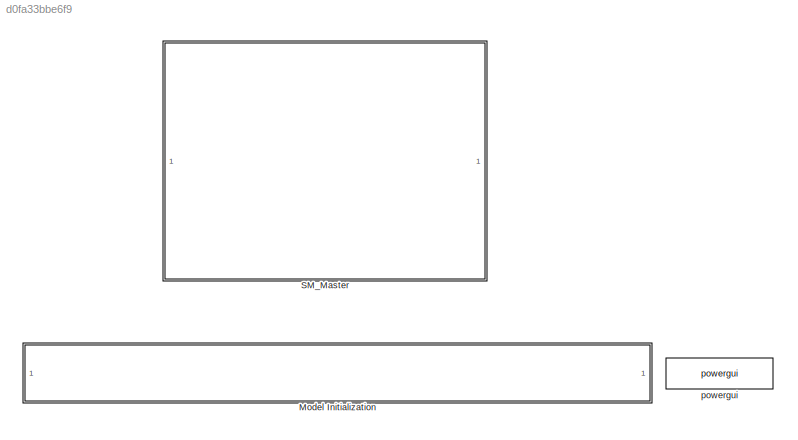
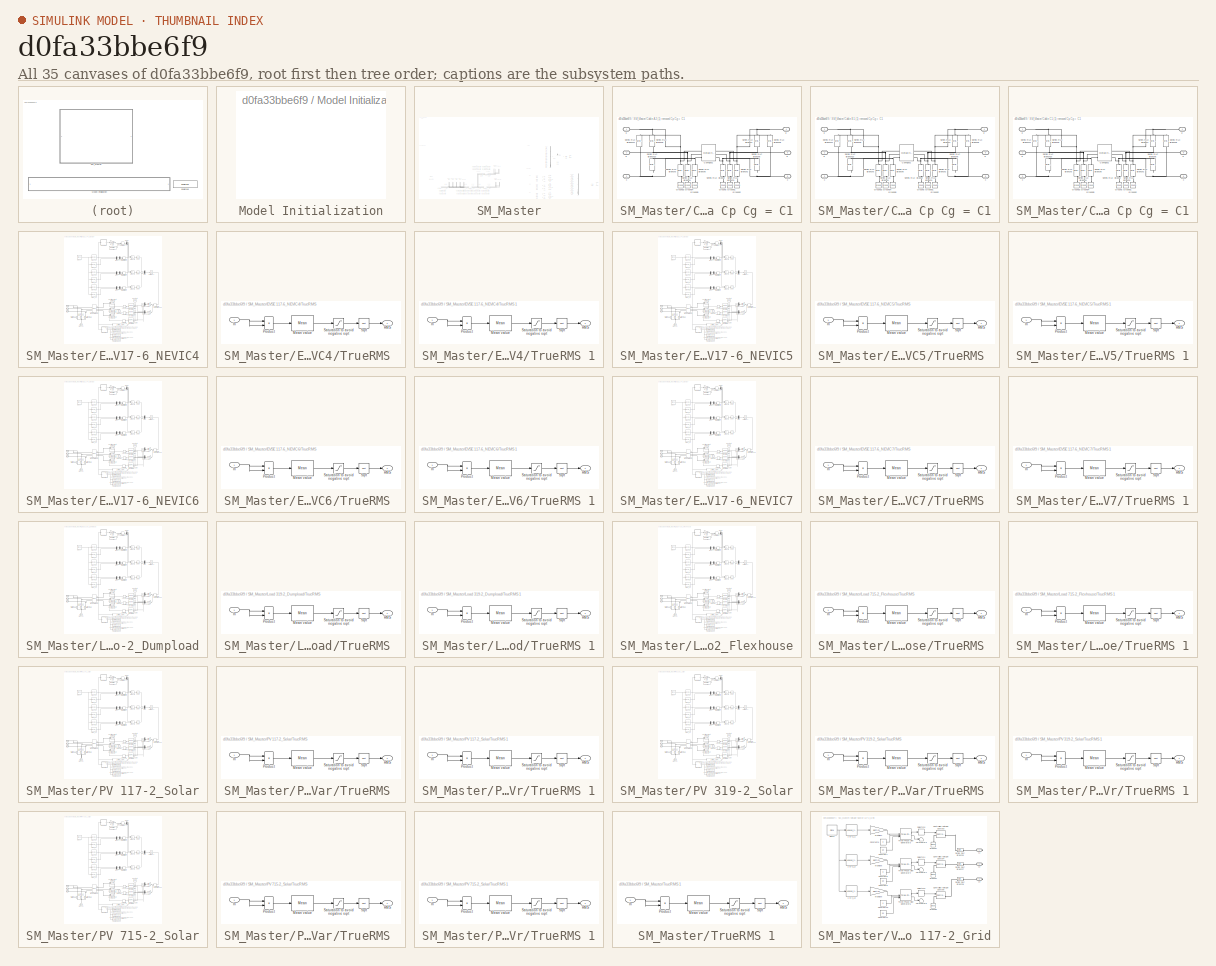
[diagram: thumbnail index - all 35 canvases of the model, root first then tree order]
MODEL slx_d0fa33bbe6f9
KIND model
CONFIG AbsTol = auto
CONFIG EnableMultiTasking = off
CONFIG FixedStep = Ts
CONFIG InitFcn = Ts=1e-4;load('UrbanCase_09052022_Setpoints.mat');run('line_parameters.m');run('Grid_Parameters_3ph.m');
CONFIG MaxStep = auto
CONFIG MinStep = auto
CONFIG PostLoadFcn = Ts=1e-4;load('UrbanCase_09052022_Setpoints.mat');run('line_parameters.m');run('Grid_Parameters_3ph.m');
CONFIG PreLoadFcn = Ts=1e-4;load('UrbanCase_09052022_Setpoints.mat');run('line_parameters.m');run('Grid_Parameters_3ph.m');
CONFIG RelTol = 1e-3
CONFIG SampleTimeConstraint = Unconstrained
CONFIG SolverName = ode4
CONFIG StartFcn = Ts=1e-4;load('UrbanCase_09052022_Setpoints.mat');run('line_parameters.m');run('Grid_Parameters_3ph.m');
CONFIG StartTime = 0.0
CONFIG StopTime = stoptime
BLOCK [SubSystem] Model Initialization
  CopyFcn = set_param(gcb,'LinkStatus','none')
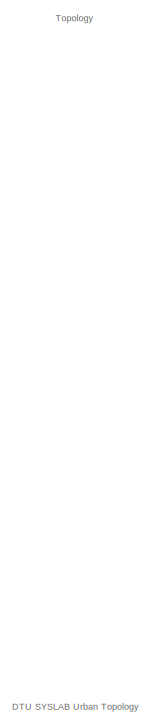
[diagram: SM_Master - part 1/6, top left region]
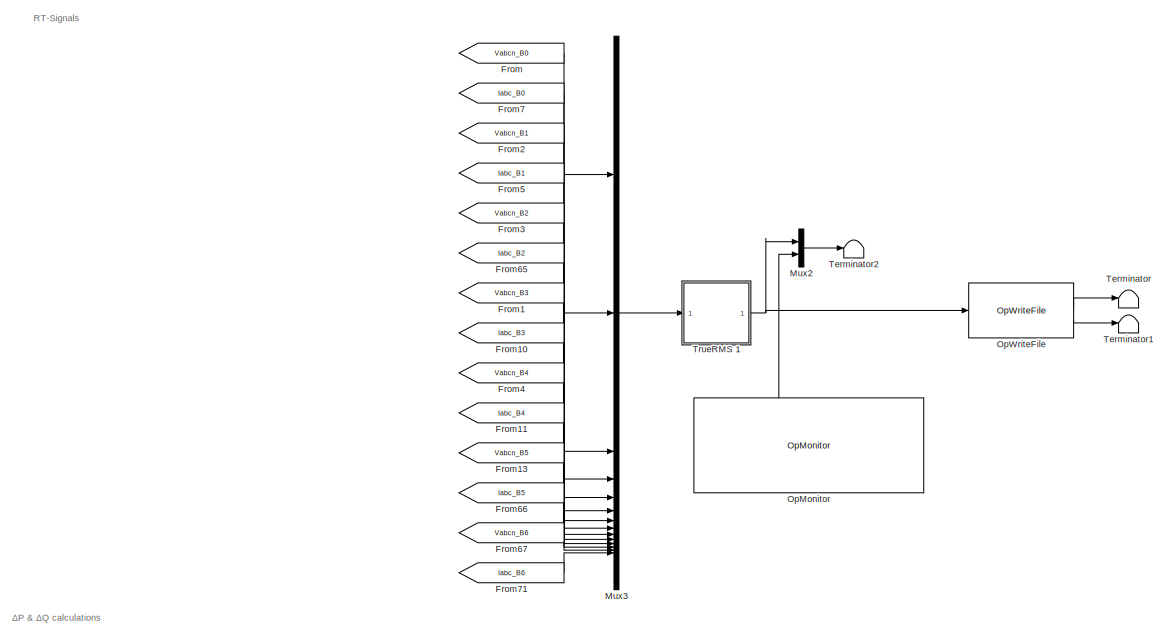
[diagram: SM_Master - part 2/6, middle right region]
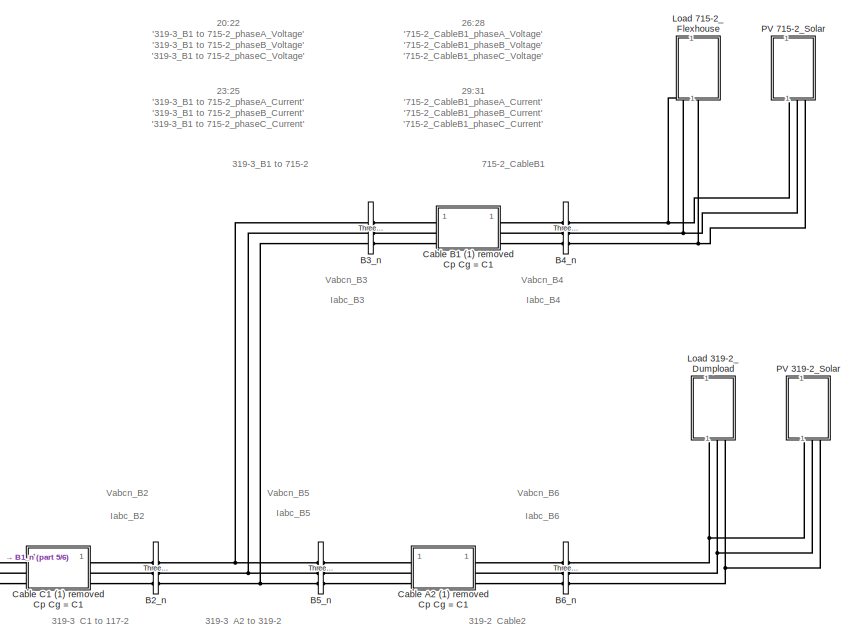
[diagram: SM_Master - part 3/6, bottom center region]
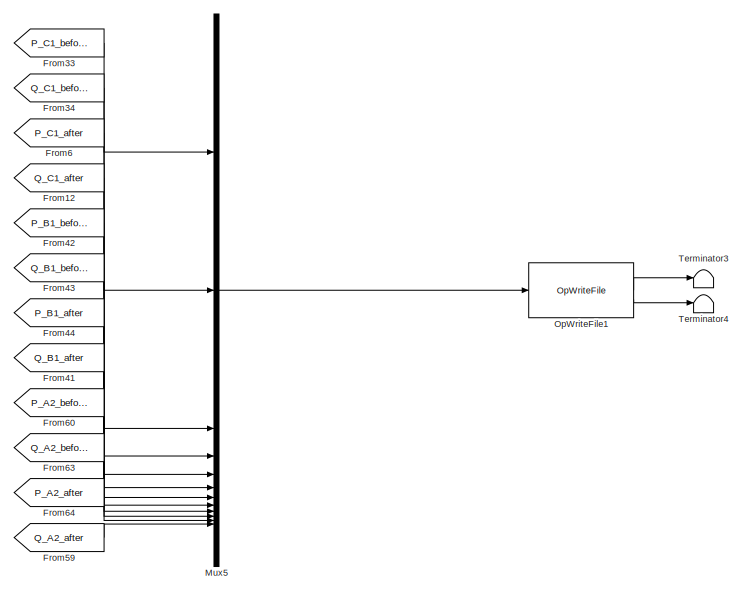
[diagram: SM_Master - part 4/6, bottom right region]
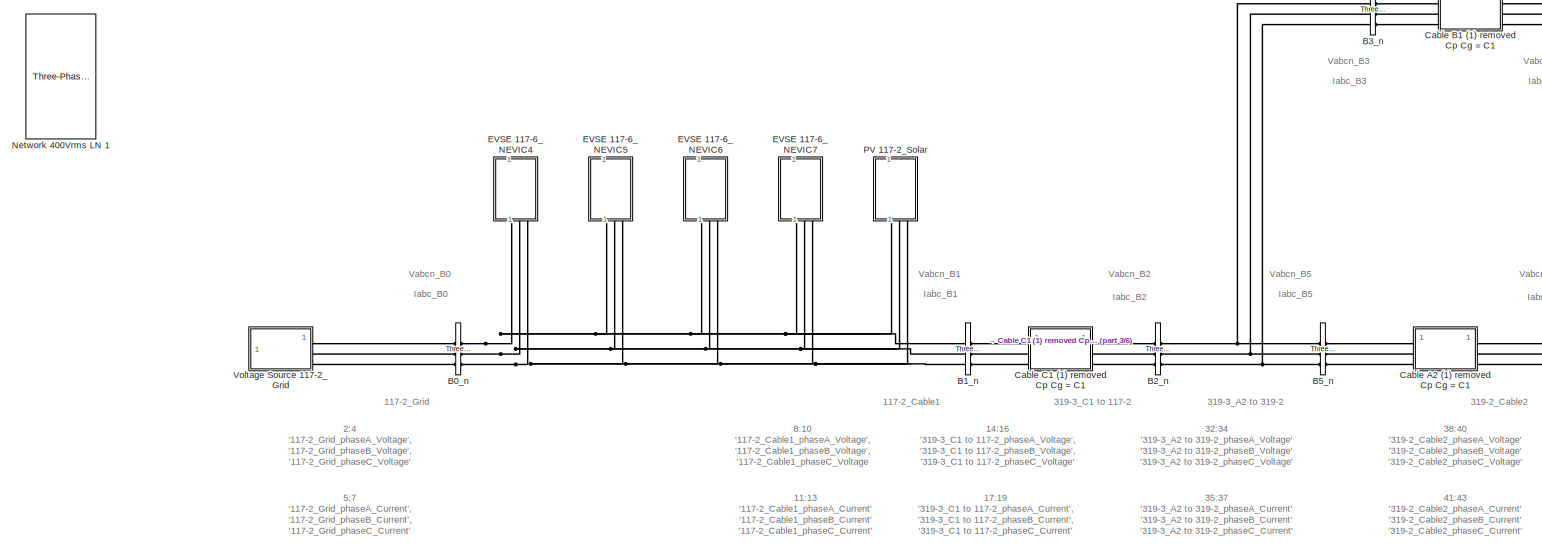
[diagram: SM_Master - part 5/6, bottom left region]
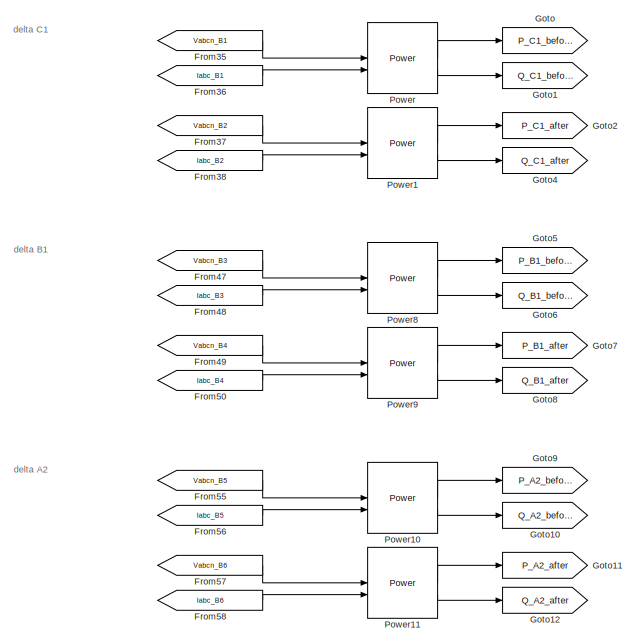
[diagram: SM_Master - part 6/6, bottom right region]
BLOCK [SubSystem] SM_Master
BLOCK [Reference] SM_Master/B0_n  REF=spsThreePhaseVIMeasurementLib/Three-Phase
V-I Measurement
  LibrarySourceBlock = sps_lib/Sensors and Measurements/Three-Phase\nV-I Measurement
  SourceBlock = spsThreePhaseVIMeasurementLib/Three-Phase\nV-I Measurement
  SourceType = Three-Phase VI Measurement
BLOCK [Reference] SM_Master/B1_n  REF=spsThreePhaseVIMeasurementLib/Three-Phase
V-I Measurement
  LibrarySourceBlock = sps_lib/Sensors and Measurements/Three-Phase\nV-I Measurement
  SourceBlock = spsThreePhaseVIMeasurementLib/Three-Phase\nV-I Measurement
  SourceType = Three-Phase VI Measurement
BLOCK [Reference] SM_Master/B2_n  REF=spsThreePhaseVIMeasurementLib/Three-Phase
V-I Measurement
  LibrarySourceBlock = sps_lib/Sensors and Measurements/Three-Phase\nV-I Measurement
  SourceBlock = spsThreePhaseVIMeasurementLib/Three-Phase\nV-I Measurement
  SourceType = Three-Phase VI Measurement
BLOCK [Reference] SM_Master/B3_n  REF=spsThreePhaseVIMeasurementLib/Three-Phase
V-I Measurement
  LibrarySourceBlock = sps_lib/Sensors and Measurements/Three-Phase\nV-I Measurement
  SourceBlock = spsThreePhaseVIMeasurementLib/Three-Phase\nV-I Measurement
  SourceType = Three-Phase VI Measurement
BLOCK [Reference] SM_Master/B4_n  REF=spsThreePhaseVIMeasurementLib/Three-Phase
V-I Measurement
  LibrarySourceBlock = sps_lib/Sensors and Measurements/Three-Phase\nV-I Measurement
  SourceBlock = spsThreePhaseVIMeasurementLib/Three-Phase\nV-I Measurement
  SourceType = Three-Phase VI Measurement
BLOCK [Reference] SM_Master/B5_n  REF=spsThreePhaseVIMeasurementLib/Three-Phase
V-I Measurement
  LibrarySourceBlock = sps_lib/Sensors and Measurements/Three-Phase\nV-I Measurement
  SourceBlock = spsThreePhaseVIMeasurementLib/Three-Phase\nV-I Measurement
  SourceType = Three-Phase VI Measurement
BLOCK [Reference] SM_Master/B6_n  REF=spsThreePhaseVIMeasurementLib/Three-Phase
V-I Measurement
  LibrarySourceBlock = sps_lib/Sensors and Measurements/Three-Phase\nV-I Measurement
  SourceBlock = spsThreePhaseVIMeasurementLib/Three-Phase\nV-I Measurement
  SourceType = Three-Phase VI Measurement
BLOCK [SubSystem] SM_Master/Cable A2 (1) removed Cp Cg = C1
  NameLocation = top
BLOCK [Reference] SM_Master/Cable A2 (1) removed Cp Cg = C1/Config301  REF=spsMutualInductanceLib/Mutual Inductance
  AttributesFormatString = \n
  LibrarySourceBlock = sps_lib/Passives/Mutual Inductance
  SourceBlock = spsMutualInductanceLib/Mutual Inductance
  SourceType = Mutual Inductance
BLOCK [Reference] SM_Master/Cable A2 (1) removed Cp Cg = C1/Ground  REF=spsGroundLib/Ground
  LibrarySourceBlock = sps_lib/Utilities/Ground
  NameLocation = right
  SourceBlock = spsGroundLib/Ground
  SourceType = Ground
BLOCK [Reference] SM_Master/Cable A2 (1) removed Cp Cg = C1/Ground1  REF=spsGroundLib/Ground
  LibrarySourceBlock = sps_lib/Utilities/Ground
  NameLocation = right
  SourceBlock = spsGroundLib/Ground
  SourceType = Ground
BLOCK [Reference] SM_Master/Cable A2 (1) removed Cp Cg = C1/Ground2  REF=spsGroundLib/Ground
  LibrarySourceBlock = sps_lib/Utilities/Ground
  NameLocation = right
  SourceBlock = spsGroundLib/Ground
  SourceType = Ground
BLOCK [Reference] SM_Master/Cable A2 (1) removed Cp Cg = C1/Ground3  REF=spsGroundLib/Ground
  LibrarySourceBlock = sps_lib/Utilities/Ground
  NameLocation = right
  SourceBlock = spsGroundLib/Ground
  SourceType = Ground
BLOCK [Reference] SM_Master/Cable A2 (1) removed Cp Cg = C1/Ground4  REF=spsGroundLib/Ground
  LibrarySourceBlock = sps_lib/Utilities/Ground
  NameLocation = right
  SourceBlock = spsGroundLib/Ground
  SourceType = Ground
BLOCK [Reference] SM_Master/Cable A2 (1) removed Cp Cg = C1/Ground5  REF=spsGroundLib/Ground
  LibrarySourceBlock = sps_lib/Utilities/Ground
  NameLocation = right
  SourceBlock = spsGroundLib/Ground
  SourceType = Ground
BLOCK [Reference] SM_Master/Cable A2 (1) removed Cp Cg = C1/Series RLC Branch  REF=spsSeriesRLCBranchLib/Series RLC Branch
  LibrarySourceBlock = sps_lib/Passives/Series RLC Branch
  NameLocation = left
  SourceBlock = spsSeriesRLCBranchLib/Series RLC Branch
  SourceType = Series RLC Branch
BLOCK [Reference] SM_Master/Cable A2 (1) removed Cp Cg = C1/Series RLC Branch1  REF=spsSeriesRLCBranchLib/Series RLC Branch
  LibrarySourceBlock = sps_lib/Passives/Series RLC Branch
  NameLocation = left
  SourceBlock = spsSeriesRLCBranchLib/Series RLC Branch
  SourceType = Series RLC Branch
BLOCK [Reference] SM_Master/Cable A2 (1) removed Cp Cg = C1/Series RLC Branch10  REF=spsSeriesRLCBranchLib/Series RLC Branch
  Commented = on
  LibrarySourceBlock = sps_lib/Passives/Series RLC Branch
  NameLocation = left
  SourceBlock = spsSeriesRLCBranchLib/Series RLC Branch
  SourceType = Series RLC Branch
BLOCK [Reference] SM_Master/Cable A2 (1) removed Cp Cg = C1/Series RLC Branch11  REF=spsSeriesRLCBranchLib/Series RLC Branch
  Commented = on
  LibrarySourceBlock = sps_lib/Passives/Series RLC Branch
  NameLocation = left
  SourceBlock = spsSeriesRLCBranchLib/Series RLC Branch
  SourceType = Series RLC Branch
BLOCK [Reference] SM_Master/Cable A2 (1) removed Cp Cg = C1/Series RLC Branch2  REF=spsSeriesRLCBranchLib/Series RLC Branch
  LibrarySourceBlock = sps_lib/Passives/Series RLC Branch
  NameLocation = left
  SourceBlock = spsSeriesRLCBranchLib/Series RLC Branch
  SourceType = Series RLC Branch
BLOCK [Reference] SM_Master/Cable A2 (1) removed Cp Cg = C1/Series RLC Branch3  REF=spsSeriesRLCBranchLib/Series RLC Branch
  LibrarySourceBlock = sps_lib/Passives/Series RLC Branch
  NameLocation = left
  SourceBlock = spsSeriesRLCBranchLib/Series RLC Branch
  SourceType = Series RLC Branch
BLOCK [Reference] SM_Master/Cable A2 (1) removed Cp Cg = C1/Series RLC Branch4  REF=spsSeriesRLCBranchLib/Series RLC Branch
  LibrarySourceBlock = sps_lib/Passives/Series RLC Branch
  NameLocation = left
  SourceBlock = spsSeriesRLCBranchLib/Series RLC Branch
  SourceType = Series RLC Branch
BLOCK [Reference] SM_Master/Cable A2 (1) removed Cp Cg = C1/Series RLC Branch5  REF=spsSeriesRLCBranchLib/Series RLC Branch
  LibrarySourceBlock = sps_lib/Passives/Series RLC Branch
  NameLocation = left
  SourceBlock = spsSeriesRLCBranchLib/Series RLC Branch
  SourceType = Series RLC Branch
BLOCK [Reference] SM_Master/Cable A2 (1) removed Cp Cg = C1/Series RLC Branch6  REF=spsSeriesRLCBranchLib/Series RLC Branch
  Commented = on
  LibrarySourceBlock = sps_lib/Passives/Series RLC Branch
  NameLocation = left
  SourceBlock = spsSeriesRLCBranchLib/Series RLC Branch
  SourceType = Series RLC Branch
BLOCK [Reference] SM_Master/Cable A2 (1) removed Cp Cg = C1/Series RLC Branch7  REF=spsSeriesRLCBranchLib/Series RLC Branch
  Commented = on
  LibrarySourceBlock = sps_lib/Passives/Series RLC Branch
  NameLocation = left
  SourceBlock = spsSeriesRLCBranchLib/Series RLC Branch
  SourceType = Series RLC Branch
BLOCK [Reference] SM_Master/Cable A2 (1) removed Cp Cg = C1/Series RLC Branch8  REF=spsSeriesRLCBranchLib/Series RLC Branch
  Commented = on
  LibrarySourceBlock = sps_lib/Passives/Series RLC Branch
  NameLocation = left
  SourceBlock = spsSeriesRLCBranchLib/Series RLC Branch
  SourceType = Series RLC Branch
BLOCK [Reference] SM_Master/Cable A2 (1) removed Cp Cg = C1/Series RLC Branch9  REF=spsSeriesRLCBranchLib/Series RLC Branch
  Commented = on
  LibrarySourceBlock = sps_lib/Passives/Series RLC Branch
  NameLocation = left
  SourceBlock = spsSeriesRLCBranchLib/Series RLC Branch
  SourceType = Series RLC Branch
BLOCK [PMIOPort] SM_Master/Cable A2 (1) removed Cp Cg = C1/a
  Side = Left
  Tag = PMCPort
BLOCK [PMIOPort] SM_Master/Cable A2 (1) removed Cp Cg = C1/a 
  NameLocation = top
  Port = 4
  Side = Right
  Tag = PMCPort
BLOCK [PMIOPort] SM_Master/Cable A2 (1) removed Cp Cg = C1/b
  Port = 2
  Side = Left
  Tag = PMCPort
BLOCK [PMIOPort] SM_Master/Cable A2 (1) removed Cp Cg = C1/b 
  NameLocation = top
  Port = 5
  Side = Right
  Tag = PMCPort
BLOCK [PMIOPort] SM_Master/Cable A2 (1) removed Cp Cg = C1/c
  Port = 3
  Side = Left
  Tag = PMCPort
BLOCK [PMIOPort] SM_Master/Cable A2 (1) removed Cp Cg = C1/c 
  NameLocation = top
  Port = 6
  Side = Right
  Tag = PMCPort
BLOCK [SubSystem] SM_Master/Cable B1 (1) removed Cp Cg = C1
  NameLocation = top
BLOCK [Reference] SM_Master/Cable B1 (1) removed Cp Cg = C1/Config301  REF=spsMutualInductanceLib/Mutual Inductance
  AttributesFormatString = \n
  LibrarySourceBlock = sps_lib/Passives/Mutual Inductance
  SourceBlock = spsMutualInductanceLib/Mutual Inductance
  SourceType = Mutual Inductance
BLOCK [Reference] SM_Master/Cable B1 (1) removed Cp Cg = C1/Ground  REF=spsGroundLib/Ground
  LibrarySourceBlock = sps_lib/Utilities/Ground
  NameLocation = right
  SourceBlock = spsGroundLib/Ground
  SourceType = Ground
BLOCK [Reference] SM_Master/Cable B1 (1) removed Cp Cg = C1/Ground1  REF=spsGroundLib/Ground
  LibrarySourceBlock = sps_lib/Utilities/Ground
  NameLocation = right
  SourceBlock = spsGroundLib/Ground
  SourceType = Ground
BLOCK [Reference] SM_Master/Cable B1 (1) removed Cp Cg = C1/Ground2  REF=spsGroundLib/Ground
  LibrarySourceBlock = sps_lib/Utilities/Ground
  NameLocation = right
  SourceBlock = spsGroundLib/Ground
  SourceType = Ground
BLOCK [Reference] SM_Master/Cable B1 (1) removed Cp Cg = C1/Ground3  REF=spsGroundLib/Ground
  LibrarySourceBlock = sps_lib/Utilities/Ground
  NameLocation = right
  SourceBlock = spsGroundLib/Ground
  SourceType = Ground
BLOCK [Reference] SM_Master/Cable B1 (1) removed Cp Cg = C1/Ground4  REF=spsGroundLib/Ground
  LibrarySourceBlock = sps_lib/Utilities/Ground
  NameLocation = right
  SourceBlock = spsGroundLib/Ground
  SourceType = Ground
BLOCK [Reference] SM_Master/Cable B1 (1) removed Cp Cg = C1/Ground5  REF=spsGroundLib/Ground
  LibrarySourceBlock = sps_lib/Utilities/Ground
  NameLocation = right
  SourceBlock = spsGroundLib/Ground
  SourceType = Ground
BLOCK [Reference] SM_Master/Cable B1 (1) removed Cp Cg = C1/Series RLC Branch  REF=spsSeriesRLCBranchLib/Series RLC Branch
  LibrarySourceBlock = sps_lib/Passives/Series RLC Branch
  NameLocation = left
  SourceBlock = spsSeriesRLCBranchLib/Series RLC Branch
  SourceType = Series RLC Branch
BLOCK [Reference] SM_Master/Cable B1 (1) removed Cp Cg = C1/Series RLC Branch1  REF=spsSeriesRLCBranchLib/Series RLC Branch
  LibrarySourceBlock = sps_lib/Passives/Series RLC Branch
  NameLocation = left
  SourceBlock = spsSeriesRLCBranchLib/Series RLC Branch
  SourceType = Series RLC Branch
BLOCK [Reference] SM_Master/Cable B1 (1) removed Cp Cg = C1/Series RLC Branch10  REF=spsSeriesRLCBranchLib/Series RLC Branch
  Commented = on
  LibrarySourceBlock = sps_lib/Passives/Series RLC Branch
  NameLocation = left
  SourceBlock = spsSeriesRLCBranchLib/Series RLC Branch
  SourceType = Series RLC Branch
BLOCK [Reference] SM_Master/Cable B1 (1) removed Cp Cg = C1/Series RLC Branch11  REF=spsSeriesRLCBranchLib/Series RLC Branch
  Commented = on
  LibrarySourceBlock = sps_lib/Passives/Series RLC Branch
  NameLocation = left
  SourceBlock = spsSeriesRLCBranchLib/Series RLC Branch
  SourceType = Series RLC Branch
BLOCK [Reference] SM_Master/Cable B1 (1) removed Cp Cg = C1/Series RLC Branch2  REF=spsSeriesRLCBranchLib/Series RLC Branch
  LibrarySourceBlock = sps_lib/Passives/Series RLC Branch
  NameLocation = left
  SourceBlock = spsSeriesRLCBranchLib/Series RLC Branch
  SourceType = Series RLC Branch
BLOCK [Reference] SM_Master/Cable B1 (1) removed Cp Cg = C1/Series RLC Branch3  REF=spsSeriesRLCBranchLib/Series RLC Branch
  LibrarySourceBlock = sps_lib/Passives/Series RLC Branch
  NameLocation = left
  SourceBlock = spsSeriesRLCBranchLib/Series RLC Branch
  SourceType = Series RLC Branch
BLOCK [Reference] SM_Master/Cable B1 (1) removed Cp Cg = C1/Series RLC Branch4  REF=spsSeriesRLCBranchLib/Series RLC Branch
  LibrarySourceBlock = sps_lib/Passives/Series RLC Branch
  NameLocation = left
  SourceBlock = spsSeriesRLCBranchLib/Series RLC Branch
  SourceType = Series RLC Branch
BLOCK [Reference] SM_Master/Cable B1 (1) removed Cp Cg = C1/Series RLC Branch5  REF=spsSeriesRLCBranchLib/Series RLC Branch
  LibrarySourceBlock = sps_lib/Passives/Series RLC Branch
  NameLocation = left
  SourceBlock = spsSeriesRLCBranchLib/Series RLC Branch
  SourceType = Series RLC Branch
BLOCK [Reference] SM_Master/Cable B1 (1) removed Cp Cg = C1/Series RLC Branch6  REF=spsSeriesRLCBranchLib/Series RLC Branch
  Commented = on
  LibrarySourceBlock = sps_lib/Passives/Series RLC Branch
  NameLocation = left
  SourceBlock = spsSeriesRLCBranchLib/Series RLC Branch
  SourceType = Series RLC Branch
BLOCK [Reference] SM_Master/Cable B1 (1) removed Cp Cg = C1/Series RLC Branch7  REF=spsSeriesRLCBranchLib/Series RLC Branch
  Commented = on
  LibrarySourceBlock = sps_lib/Passives/Series RLC Branch
  NameLocation = left
  SourceBlock = spsSeriesRLCBranchLib/Series RLC Branch
  SourceType = Series RLC Branch
BLOCK [Reference] SM_Master/Cable B1 (1) removed Cp Cg = C1/Series RLC Branch8  REF=spsSeriesRLCBranchLib/Series RLC Branch
  Commented = on
  LibrarySourceBlock = sps_lib/Passives/Series RLC Branch
  NameLocation = left
  SourceBlock = spsSeriesRLCBranchLib/Series RLC Branch
  SourceType = Series RLC Branch
BLOCK [Reference] SM_Master/Cable B1 (1) removed Cp Cg = C1/Series RLC Branch9  REF=spsSeriesRLCBranchLib/Series RLC Branch
  Commented = on
  LibrarySourceBlock = sps_lib/Passives/Series RLC Branch
  NameLocation = left
  SourceBlock = spsSeriesRLCBranchLib/Series RLC Branch
  SourceType = Series RLC Branch
BLOCK [PMIOPort] SM_Master/Cable B1 (1) removed Cp Cg = C1/a
  Side = Left
  Tag = PMCPort
BLOCK [PMIOPort] SM_Master/Cable B1 (1) removed Cp Cg = C1/a 
  NameLocation = top
  Port = 4
  Side = Right
  Tag = PMCPort
BLOCK [PMIOPort] SM_Master/Cable B1 (1) removed Cp Cg = C1/b
  Port = 2
  Side = Left
  Tag = PMCPort
BLOCK [PMIOPort] SM_Master/Cable B1 (1) removed Cp Cg = C1/b 
  NameLocation = top
  Port = 5
  Side = Right
  Tag = PMCPort
BLOCK [PMIOPort] SM_Master/Cable B1 (1) removed Cp Cg = C1/c
  Port = 3
  Side = Left
  Tag = PMCPort
BLOCK [PMIOPort] SM_Master/Cable B1 (1) removed Cp Cg = C1/c 
  NameLocation = top
  Port = 6
  Side = Right
  Tag = PMCPort
BLOCK [SubSystem] SM_Master/Cable C1 (1) removed Cp Cg = C1
  NameLocation = top
BLOCK [Reference] SM_Master/Cable C1 (1) removed Cp Cg = C1/Config301  REF=spsMutualInductanceLib/Mutual Inductance
  AttributesFormatString = \n
  LibrarySourceBlock = sps_lib/Passives/Mutual Inductance
  SourceBlock = spsMutualInductanceLib/Mutual Inductance
  SourceType = Mutual Inductance
BLOCK [Reference] SM_Master/Cable C1 (1) removed Cp Cg = C1/Ground  REF=spsGroundLib/Ground
  LibrarySourceBlock = sps_lib/Utilities/Ground
  NameLocation = right
  SourceBlock = spsGroundLib/Ground
  SourceType = Ground
BLOCK [Reference] SM_Master/Cable C1 (1) removed Cp Cg = C1/Ground1  REF=spsGroundLib/Ground
  LibrarySourceBlock = sps_lib/Utilities/Ground
  NameLocation = right
  SourceBlock = spsGroundLib/Ground
  SourceType = Ground
BLOCK [Reference] SM_Master/Cable C1 (1) removed Cp Cg = C1/Ground2  REF=spsGroundLib/Ground
  LibrarySourceBlock = sps_lib/Utilities/Ground
  NameLocation = right
  SourceBlock = spsGroundLib/Ground
  SourceType = Ground
BLOCK [Reference] SM_Master/Cable C1 (1) removed Cp Cg = C1/Ground3  REF=spsGroundLib/Ground
  LibrarySourceBlock = sps_lib/Utilities/Ground
  NameLocation = right
  SourceBlock = spsGroundLib/Ground
  SourceType = Ground
BLOCK [Reference] SM_Master/Cable C1 (1) removed Cp Cg = C1/Ground4  REF=spsGroundLib/Ground
  LibrarySourceBlock = sps_lib/Utilities/Ground
  NameLocation = right
  SourceBlock = spsGroundLib/Ground
  SourceType = Ground
BLOCK [Reference] SM_Master/Cable C1 (1) removed Cp Cg = C1/Ground5  REF=spsGroundLib/Ground
  LibrarySourceBlock = sps_lib/Utilities/Ground
  NameLocation = right
  SourceBlock = spsGroundLib/Ground
  SourceType = Ground
BLOCK [Reference] SM_Master/Cable C1 (1) removed Cp Cg = C1/Series RLC Branch  REF=spsSeriesRLCBranchLib/Series RLC Branch
  LibrarySourceBlock = sps_lib/Passives/Series RLC Branch
  NameLocation = left
  SourceBlock = spsSeriesRLCBranchLib/Series RLC Branch
  SourceType = Series RLC Branch
BLOCK [Reference] SM_Master/Cable C1 (1) removed Cp Cg = C1/Series RLC Branch1  REF=spsSeriesRLCBranchLib/Series RLC Branch
  LibrarySourceBlock = sps_lib/Passives/Series RLC Branch
  NameLocation = left
  SourceBlock = spsSeriesRLCBranchLib/Series RLC Branch
  SourceType = Series RLC Branch
BLOCK [Reference] SM_Master/Cable C1 (1) removed Cp Cg = C1/Series RLC Branch10  REF=spsSeriesRLCBranchLib/Series RLC Branch
  Commented = on
  LibrarySourceBlock = sps_lib/Passives/Series RLC Branch
  NameLocation = left
  SourceBlock = spsSeriesRLCBranchLib/Series RLC Branch
  SourceType = Series RLC Branch
BLOCK [Reference] SM_Master/Cable C1 (1) removed Cp Cg = C1/Series RLC Branch11  REF=spsSeriesRLCBranchLib/Series RLC Branch
  Commented = on
  LibrarySourceBlock = sps_lib/Passives/Series RLC Branch
  NameLocation = left
  SourceBlock = spsSeriesRLCBranchLib/Series RLC Branch
  SourceType = Series RLC Branch
BLOCK [Reference] SM_Master/Cable C1 (1) removed Cp Cg = C1/Series RLC Branch2  REF=spsSeriesRLCBranchLib/Series RLC Branch
  LibrarySourceBlock = sps_lib/Passives/Series RLC Branch
  NameLocation = left
  SourceBlock = spsSeriesRLCBranchLib/Series RLC Branch
  SourceType = Series RLC Branch
BLOCK [Reference] SM_Master/Cable C1 (1) removed Cp Cg = C1/Series RLC Branch3  REF=spsSeriesRLCBranchLib/Series RLC Branch
  LibrarySourceBlock = sps_lib/Passives/Series RLC Branch
  NameLocation = left
  SourceBlock = spsSeriesRLCBranchLib/Series RLC Branch
  SourceType = Series RLC Branch
BLOCK [Reference] SM_Master/Cable C1 (1) removed Cp Cg = C1/Series RLC Branch4  REF=spsSeriesRLCBranchLib/Series RLC Branch
  LibrarySourceBlock = sps_lib/Passives/Series RLC Branch
  NameLocation = left
  SourceBlock = spsSeriesRLCBranchLib/Series RLC Branch
  SourceType = Series RLC Branch
BLOCK [Reference] SM_Master/Cable C1 (1) removed Cp Cg = C1/Series RLC Branch5  REF=spsSeriesRLCBranchLib/Series RLC Branch
  LibrarySourceBlock = sps_lib/Passives/Series RLC Branch
  NameLocation = left
  SourceBlock = spsSeriesRLCBranchLib/Series RLC Branch
  SourceType = Series RLC Branch
BLOCK [Reference] SM_Master/Cable C1 (1) removed Cp Cg = C1/Series RLC Branch6  REF=spsSeriesRLCBranchLib/Series RLC Branch
  Commented = on
  LibrarySourceBlock = sps_lib/Passives/Series RLC Branch
  NameLocation = left
  SourceBlock = spsSeriesRLCBranchLib/Series RLC Branch
  SourceType = Series RLC Branch
BLOCK [Reference] SM_Master/Cable C1 (1) removed Cp Cg = C1/Series RLC Branch7  REF=spsSeriesRLCBranchLib/Series RLC Branch
  Commented = on
  LibrarySourceBlock = sps_lib/Passives/Series RLC Branch
  NameLocation = left
  SourceBlock = spsSeriesRLCBranchLib/Series RLC Branch
  SourceType = Series RLC Branch
BLOCK [Reference] SM_Master/Cable C1 (1) removed Cp Cg = C1/Series RLC Branch8  REF=spsSeriesRLCBranchLib/Series RLC Branch
  Commented = on
  LibrarySourceBlock = sps_lib/Passives/Series RLC Branch
  NameLocation = left
  SourceBlock = spsSeriesRLCBranchLib/Series RLC Branch
  SourceType = Series RLC Branch
BLOCK [Reference] SM_Master/Cable C1 (1) removed Cp Cg = C1/Series RLC Branch9  REF=spsSeriesRLCBranchLib/Series RLC Branch
  Commented = on
  LibrarySourceBlock = sps_lib/Passives/Series RLC Branch
  NameLocation = left
  SourceBlock = spsSeriesRLCBranchLib/Series RLC Branch
  SourceType = Series RLC Branch
BLOCK [PMIOPort] SM_Master/Cable C1 (1) removed Cp Cg = C1/a
  Side = Left
  Tag = PMCPort
BLOCK [PMIOPort] SM_Master/Cable C1 (1) removed Cp Cg = C1/a 
  NameLocation = top
  Port = 4
  Side = Right
  Tag = PMCPort
BLOCK [PMIOPort] SM_Master/Cable C1 (1) removed Cp Cg = C1/b
  Port = 2
  Side = Left
  Tag = PMCPort
BLOCK [PMIOPort] SM_Master/Cable C1 (1) removed Cp Cg = C1/b 
  NameLocation = top
  Port = 5
  Side = Right
  Tag = PMCPort
BLOCK [PMIOPort] SM_Master/Cable C1 (1) removed Cp Cg = C1/c
  Port = 3
  Side = Left
  Tag = PMCPort
BLOCK [PMIOPort] SM_Master/Cable C1 (1) removed Cp Cg = C1/c 
  NameLocation = top
  Port = 6
  Side = Right
  Tag = PMCPort
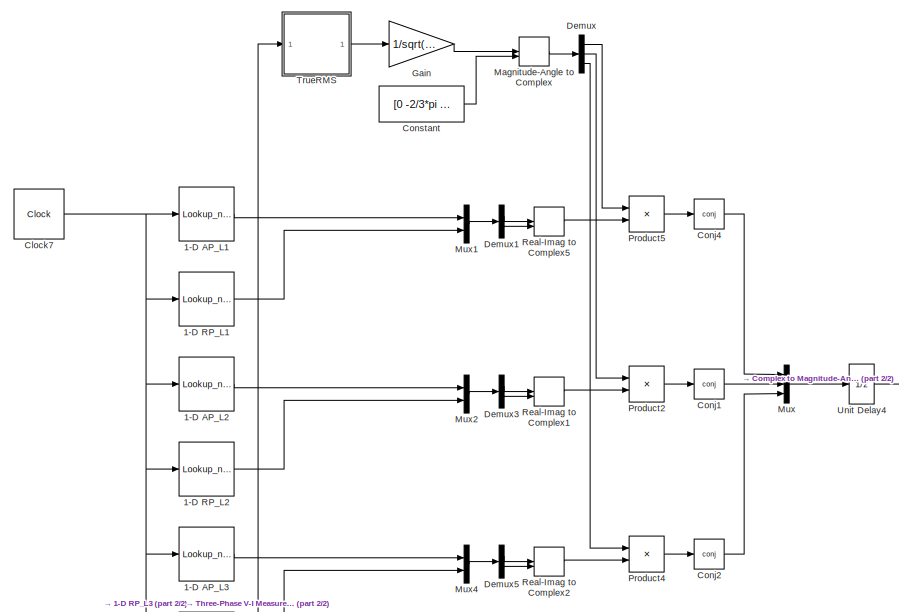
[diagram: SM_Master/EVSE 117-6_NEVIC4 - part 1/2, full width, top band]
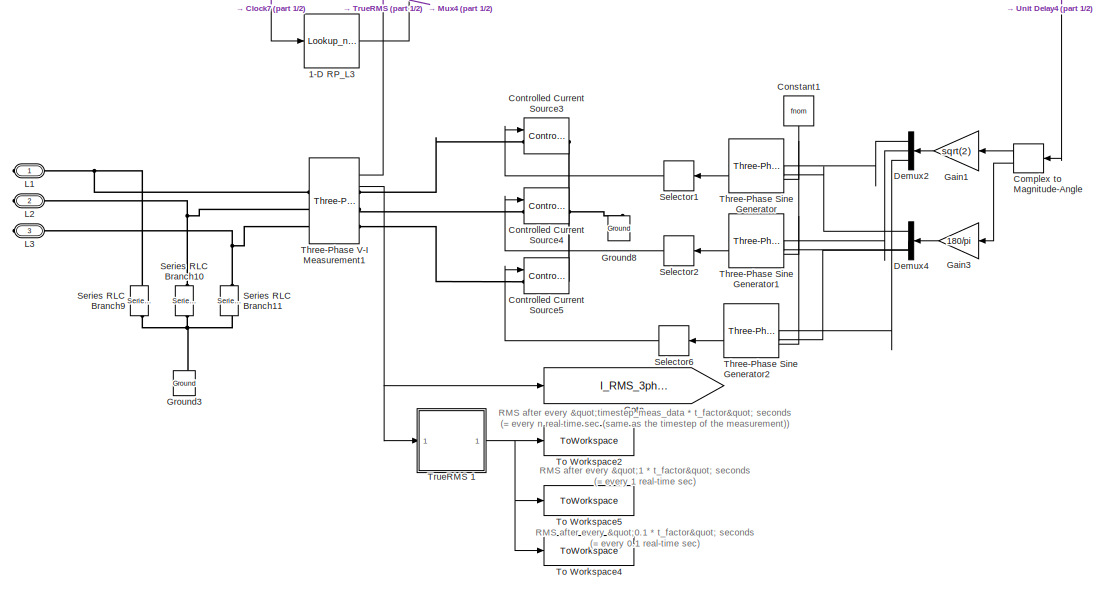
[diagram: SM_Master/EVSE 117-6_NEVIC4 - part 2/2, full width, bottom band]
BLOCK [SubSystem] SM_Master/EVSE 117-6_NEVIC4
  NameLocation = top
BLOCK [Lookup_n-D] SM_Master/EVSE 117-6_NEVIC4/1-D AP_L1
  BreakpointsForDimension1 = Time
  InputPortMap = u0
  InternalRulePriority = Speed
  InterpMethod = Flat
  NumberOfTableDimensions = 1
  RndMeth = Simplest
  Table = data.("117-6_NEVIC4_phaseA_ActivePower")(datastart:datastop) * DTUsignconv
BLOCK [Lookup_n-D] SM_Master/EVSE 117-6_NEVIC4/1-D AP_L2
  BreakpointsForDimension1 = Time
  InputPortMap = u0
  InternalRulePriority = Speed
  InterpMethod = Flat
  NumberOfTableDimensions = 1
  RndMeth = Simplest
  Table = data.("117-6_NEVIC4_phaseB_ActivePower")(datastart:datastop) * DTUsignconv
BLOCK [Lookup_n-D] SM_Master/EVSE 117-6_NEVIC4/1-D AP_L3
  BreakpointsForDimension1 = Time
  InputPortMap = u0
  InternalRulePriority = Speed
  InterpMethod = Flat
  NumberOfTableDimensions = 1
  RndMeth = Simplest
  Table = data.("117-6_NEVIC4_phaseC_ActivePower")(datastart:datastop) * DTUsignconv
BLOCK [Lookup_n-D] SM_Master/EVSE 117-6_NEVIC4/1-D RP_L1
  BreakpointsForDimension1 = Time
  InputPortMap = u0
  InternalRulePriority = Speed
  InterpMethod = Flat
  NumberOfTableDimensions = 1
  RndMeth = Simplest
  Table = data.("117-6_NEVIC4_phaseA_ReactivePower")(datastart:datastop) * DTUsignconv
BLOCK [Lookup_n-D] SM_Master/EVSE 117-6_NEVIC4/1-D RP_L2
  BreakpointsForDimension1 = Time
  InputPortMap = u0
  InternalRulePriority = Speed
  InterpMethod = Flat
  NumberOfTableDimensions = 1
  RndMeth = Simplest
  Table = data.("117-6_NEVIC4_phaseB_ReactivePower")(datastart:datastop) * DTUsignconv
BLOCK [Lookup_n-D] SM_Master/EVSE 117-6_NEVIC4/1-D RP_L3
  BreakpointsForDimension1 = Time
  InputPortMap = u0
  InternalRulePriority = Speed
  InterpMethod = Flat
  NumberOfTableDimensions = 1
  RndMeth = Simplest
  Table = data.("117-6_NEVIC4_phaseC_ReactivePower")(datastart:datastop) * DTUsignconv
BLOCK [Clock] SM_Master/EVSE 117-6_NEVIC4/Clock7
  DisplayTime = on
BLOCK [ComplexToMagnitudeAngle] SM_Master/EVSE 117-6_NEVIC4/Complex to Magnitude-Angle
  NameLocation = top
BLOCK [Math] SM_Master/EVSE 117-6_NEVIC4/Conj1
  Operator = conj
  SignedPower = on
BLOCK [Math] SM_Master/EVSE 117-6_NEVIC4/Conj2
  Operator = conj
  SignedPower = on
BLOCK [Math] SM_Master/EVSE 117-6_NEVIC4/Conj4
  Operator = conj
  SignedPower = on
BLOCK [Constant] SM_Master/EVSE 117-6_NEVIC4/Constant
  Value = [0 -2/3*pi -4/3*pi]
BLOCK [Constant] SM_Master/EVSE 117-6_NEVIC4/Constant1
  NameLocation = left
  Value = fnom
BLOCK [Reference] SM_Master/EVSE 117-6_NEVIC4/Controlled Current Source3  REF=spsControlledCurrentSourceLib/Controlled Current Source
  LibrarySourceBlock = sps_lib/Sources/Controlled Current Source
  SourceBlock = spsControlledCurrentSourceLib/Controlled Current Source
  SourceType = Controlled Current Source
BLOCK [Reference] SM_Master/EVSE 117-6_NEVIC4/Controlled Current Source4  REF=spsControlledCurrentSourceLib/Controlled Current Source
  LibrarySourceBlock = sps_lib/Sources/Controlled Current Source
  SourceBlock = spsControlledCurrentSourceLib/Controlled Current Source
  SourceType = Controlled Current Source
BLOCK [Reference] SM_Master/EVSE 117-6_NEVIC4/Controlled Current Source5  REF=spsControlledCurrentSourceLib/Controlled Current Source
  LibrarySourceBlock = sps_lib/Sources/Controlled Current Source
  SourceBlock = spsControlledCurrentSourceLib/Controlled Current Source
  SourceType = Controlled Current Source
BLOCK [Demux] SM_Master/EVSE 117-6_NEVIC4/Demux
  Outputs = 3
BLOCK [Demux] SM_Master/EVSE 117-6_NEVIC4/Demux1
  DisplayOption = none
  Outputs = 2
BLOCK [Demux] SM_Master/EVSE 117-6_NEVIC4/Demux2
  NameLocation = top
  Outputs = 3
BLOCK [Demux] SM_Master/EVSE 117-6_NEVIC4/Demux3
  DisplayOption = none
  Outputs = 2
BLOCK [Demux] SM_Master/EVSE 117-6_NEVIC4/Demux4
  NameLocation = top
  Outputs = 3
BLOCK [Demux] SM_Master/EVSE 117-6_NEVIC4/Demux5
  DisplayOption = none
  Outputs = 2
BLOCK [Gain] SM_Master/EVSE 117-6_NEVIC4/Gain
  Gain = 1/sqrt(3)
BLOCK [Gain] SM_Master/EVSE 117-6_NEVIC4/Gain1
  Gain = sqrt(2)
  NameLocation = top
BLOCK [Gain] SM_Master/EVSE 117-6_NEVIC4/Gain3
  Gain = 180/pi
  NameLocation = top
BLOCK [Goto] SM_Master/EVSE 117-6_NEVIC4/Goto
  Commented = on
  GotoTag = I_RMS_3ph_1sec
  TagVisibility = global
BLOCK [Reference] SM_Master/EVSE 117-6_NEVIC4/Ground3  REF=spsGroundLib/Ground
  LibrarySourceBlock = sps_lib/Utilities/Ground
  NameLocation = right
  SourceBlock = spsGroundLib/Ground
  SourceType = Ground
BLOCK [Reference] SM_Master/EVSE 117-6_NEVIC4/Ground8  REF=spsGroundLib/Ground
  LibrarySourceBlock = sps_lib/Utilities/Ground
  NameLocation = right
  SourceBlock = spsGroundLib/Ground
  SourceType = Ground
BLOCK [PMIOPort] SM_Master/EVSE 117-6_NEVIC4/L1
  NameLocation = top
  Side = Right
BLOCK [PMIOPort] SM_Master/EVSE 117-6_NEVIC4/L2
  NameLocation = top
  Port = 2
  Side = Right
BLOCK [PMIOPort] SM_Master/EVSE 117-6_NEVIC4/L3
  NameLocation = top
  Port = 3
  Side = Right
BLOCK [MagnitudeAngleToComplex] SM_Master/EVSE 117-6_NEVIC4/Magnitude-Angle to Complex
BLOCK [Mux] SM_Master/EVSE 117-6_NEVIC4/Mux
  DisplayOption = bar
  Inputs = 3
BLOCK [Mux] SM_Master/EVSE 117-6_NEVIC4/Mux1
  DisplayOption = bar
  Inputs = 2
BLOCK [Mux] SM_Master/EVSE 117-6_NEVIC4/Mux2
  DisplayOption = bar
  Inputs = 2
BLOCK [Mux] SM_Master/EVSE 117-6_NEVIC4/Mux4
  DisplayOption = bar
  Inputs = 2
BLOCK [Product] SM_Master/EVSE 117-6_NEVIC4/Product2
  InputSameDT = on
  Inputs = /*
  OutDataTypeStr = Inherit: Same as first input
  SaturateOnIntegerOverflow = on
BLOCK [Product] SM_Master/EVSE 117-6_NEVIC4/Product4
  InputSameDT = on
  Inputs = /*
  OutDataTypeStr = Inherit: Same as first input
  SaturateOnIntegerOverflow = on
BLOCK [Product] SM_Master/EVSE 117-6_NEVIC4/Product5
  InputSameDT = on
  Inputs = /*
  OutDataTypeStr = Inherit: Same as first input
  SaturateOnIntegerOverflow = on
BLOCK [RealImagToComplex] SM_Master/EVSE 117-6_NEVIC4/Real-Imag to Complex1
BLOCK [RealImagToComplex] SM_Master/EVSE 117-6_NEVIC4/Real-Imag to Complex2
BLOCK [RealImagToComplex] SM_Master/EVSE 117-6_NEVIC4/Real-Imag to Complex5
BLOCK [Selector] SM_Master/EVSE 117-6_NEVIC4/Selector1
  IndexOptions = Index vector (dialog)
  Indices = 1
  InputPortWidth = 3
  NameLocation = top
  OutputSizes = 1
BLOCK [Selector] SM_Master/EVSE 117-6_NEVIC4/Selector2
  IndexOptions = Index vector (dialog)
  Indices = 1
  InputPortWidth = 3
  NameLocation = top
  OutputSizes = 1
BLOCK [Selector] SM_Master/EVSE 117-6_NEVIC4/Selector6
  IndexOptions = Index vector (dialog)
  Indices = 1
  InputPortWidth = 3
  NameLocation = top
  OutputSizes = 1
BLOCK [Reference] SM_Master/EVSE 117-6_NEVIC4/Series RLC Branch10  REF=spsSeriesRLCBranchLib/Series RLC Branch
  LibrarySourceBlock = sps_lib/Passives/Series RLC Branch
  NameLocation = left
  SourceBlock = spsSeriesRLCBranchLib/Series RLC Branch
  SourceType = Series RLC Branch
BLOCK [Reference] SM_Master/EVSE 117-6_NEVIC4/Series RLC Branch11  REF=spsSeriesRLCBranchLib/Series RLC Branch
  LibrarySourceBlock = sps_lib/Passives/Series RLC Branch
  NameLocation = left
  SourceBlock = spsSeriesRLCBranchLib/Series RLC Branch
  SourceType = Series RLC Branch
BLOCK [Reference] SM_Master/EVSE 117-6_NEVIC4/Series RLC Branch9  REF=spsSeriesRLCBranchLib/Series RLC Branch
  LibrarySourceBlock = sps_lib/Passives/Series RLC Branch
  NameLocation = left
  SourceBlock = spsSeriesRLCBranchLib/Series RLC Branch
  SourceType = Series RLC Branch
BLOCK [Reference] SM_Master/EVSE 117-6_NEVIC4/Three-Phase Sine Generator  REF=spsThreePhaseSineGeneratorLib/Three-Phase
Sine Generator
  LibrarySourceBlock = sps_lib/Sources/Signal Generator Sources/Three-Phase\nSine Generator
  NameLocation = top
  SourceBlock = spsThreePhaseSineGeneratorLib/Three-Phase\nSine Generator
  SourceType = Three-phase Sine Generator
BLOCK [Reference] SM_Master/EVSE 117-6_NEVIC4/Three-Phase Sine Generator1  REF=spsThreePhaseSineGeneratorLib/Three-Phase
Sine Generator
  LibrarySourceBlock = sps_lib/Sources/Signal Generator Sources/Three-Phase\nSine Generator
  NameLocation = top
  SourceBlock = spsThreePhaseSineGeneratorLib/Three-Phase\nSine Generator
  SourceType = Three-phase Sine Generator
BLOCK [Reference] SM_Master/EVSE 117-6_NEVIC4/Three-Phase Sine Generator2  REF=spsThreePhaseSineGeneratorLib/Three-Phase
Sine Generator
  LibrarySourceBlock = sps_lib/Sources/Signal Generator Sources/Three-Phase\nSine Generator
  NameLocation = top
  SourceBlock = spsThreePhaseSineGeneratorLib/Three-Phase\nSine Generator
  SourceType = Three-phase Sine Generator
BLOCK [Reference] SM_Master/EVSE 117-6_NEVIC4/Three-Phase V-I Measurement1  REF=spsThreePhaseVIMeasurementLib/Three-Phase
V-I Measurement
  LibrarySourceBlock = sps_lib/Sensors and Measurements/Three-Phase\nV-I Measurement
  SourceBlock = spsThreePhaseVIMeasurementLib/Three-Phase\nV-I Measurement
  SourceType = Three-Phase VI Measurement
BLOCK [ToWorkspace] SM_Master/EVSE 117-6_NEVIC4/To Workspace2
  Commented = on
  FixptAsFi = on
  MaxDataPoints = inf
  SampleTime = timestep_meas_data * t_factor
  VariableName = I_RMS_3ph_nsec
BLOCK [ToWorkspace] SM_Master/EVSE 117-6_NEVIC4/To Workspace4
  Commented = on
  FixptAsFi = on
  MaxDataPoints = inf
  SampleTime = 0.1 * t_factor
  VariableName = I_RMS_3ph_0_1sec
BLOCK [ToWorkspace] SM_Master/EVSE 117-6_NEVIC4/To Workspace5
  Commented = on
  FixptAsFi = on
  MaxDataPoints = inf
  SampleTime = 1 * t_factor
  VariableName = I_RMS_3ph_1sec
BLOCK [SubSystem] SM_Master/EVSE 117-6_NEVIC4/TrueRMS 
  AncestorBlock = powerlib_meascontrol/Measurements/RMS/TrueRMS
  ShowPortLabels = none
BLOCK [Inport] SM_Master/EVSE 117-6_NEVIC4/TrueRMS /In
BLOCK [Reference] SM_Master/EVSE 117-6_NEVIC4/TrueRMS /Mean value  REF=spsMeanLib/Mean
  LibrarySourceBlock = sps_lib/Sensors and Measurements/Mean
  SourceBlock = spsMeanLib/Mean
  SourceType = Mean
BLOCK [Product] SM_Master/EVSE 117-6_NEVIC4/TrueRMS /Product
  InputSameDT = on
  OutDataTypeStr = Inherit: Same as first input
  SaturateOnIntegerOverflow = on
BLOCK [Outport] SM_Master/EVSE 117-6_NEVIC4/TrueRMS /RMS
  VectorParamsAs1DForOutWhenUnconnected = off
BLOCK [Saturate] SM_Master/EVSE 117-6_NEVIC4/TrueRMS /Saturation to avoid negative sqrt
  LowerLimit = 0
  UpperLimit = Inf
BLOCK [Sqrt] SM_Master/EVSE 117-6_NEVIC4/TrueRMS /Sqrt
  AlgorithmType = Newton-Raphson
BLOCK [SubSystem] SM_Master/EVSE 117-6_NEVIC4/TrueRMS 1
  AncestorBlock = powerlib_meascontrol/Measurements/RMS/TrueRMS
  ShowPortLabels = none
BLOCK [Inport] SM_Master/EVSE 117-6_NEVIC4/TrueRMS 1/In
BLOCK [Reference] SM_Master/EVSE 117-6_NEVIC4/TrueRMS 1/Mean value  REF=spsMeanLib/Mean
  LibrarySourceBlock = sps_lib/Sensors and Measurements/Mean
  SourceBlock = spsMeanLib/Mean
  SourceType = Mean
BLOCK [Product] SM_Master/EVSE 117-6_NEVIC4/TrueRMS 1/Product
  InputSameDT = on
  OutDataTypeStr = Inherit: Same as first input
  SaturateOnIntegerOverflow = on
BLOCK [Outport] SM_Master/EVSE 117-6_NEVIC4/TrueRMS 1/RMS
  VectorParamsAs1DForOutWhenUnconnected = off
BLOCK [Saturate] SM_Master/EVSE 117-6_NEVIC4/TrueRMS 1/Saturation to avoid negative sqrt
  LowerLimit = 0
  UpperLimit = Inf
BLOCK [Sqrt] SM_Master/EVSE 117-6_NEVIC4/TrueRMS 1/Sqrt
  AlgorithmType = Newton-Raphson
BLOCK [UnitDelay] SM_Master/EVSE 117-6_NEVIC4/Unit Delay4
  HasFrameUpgradeWarning = on
  InitialCondition = 0*exp(-j*0*pi/180)
  NameLocation = top
  SampleTime = Ts
BLOCK [SubSystem] SM_Master/EVSE 117-6_NEVIC5
  NameLocation = top
BLOCK [Lookup_n-D] SM_Master/EVSE 117-6_NEVIC5/1-D AP_L1
  BreakpointsForDimension1 = Time
  InputPortMap = u0
  InternalRulePriority = Speed
  InterpMethod = Flat
  NumberOfTableDimensions = 1
  RndMeth = Simplest
  Table = data.("117-6_NEVIC5_phaseA_ActivePower")(datastart:datastop) * DTUsignconv
BLOCK [Lookup_n-D] SM_Master/EVSE 117-6_NEVIC5/1-D AP_L2
  BreakpointsForDimension1 = Time
  InputPortMap = u0
  InternalRulePriority = Speed
  InterpMethod = Flat
  NumberOfTableDimensions = 1
  RndMeth = Simplest
  Table = data.("117-6_NEVIC5_phaseB_ActivePower")(datastart:datastop) * DTUsignconv
BLOCK [Lookup_n-D] SM_Master/EVSE 117-6_NEVIC5/1-D AP_L3
  BreakpointsForDimension1 = Time
  InputPortMap = u0
  InternalRulePriority = Speed
  InterpMethod = Flat
  NumberOfTableDimensions = 1
  RndMeth = Simplest
  Table = data.("117-6_NEVIC5_phaseC_ActivePower")(datastart:datastop) * DTUsignconv
BLOCK [Lookup_n-D] SM_Master/EVSE 117-6_NEVIC5/1-D RP_L1
  BreakpointsForDimension1 = Time
  InputPortMap = u0
  InternalRulePriority = Speed
  InterpMethod = Flat
  NumberOfTableDimensions = 1
  RndMeth = Simplest
  Table = data.("117-6_NEVIC5_phaseA_ReactivePower")(datastart:datastop) * DTUsignconv
BLOCK [Lookup_n-D] SM_Master/EVSE 117-6_NEVIC5/1-D RP_L2
  BreakpointsForDimension1 = Time
  InputPortMap = u0
  InternalRulePriority = Speed
  InterpMethod = Flat
  NumberOfTableDimensions = 1
  RndMeth = Simplest
  Table = data.("117-6_NEVIC5_phaseB_ReactivePower")(datastart:datastop) * DTUsignconv
BLOCK [Lookup_n-D] SM_Master/EVSE 117-6_NEVIC5/1-D RP_L3
  BreakpointsForDimension1 = Time
  InputPortMap = u0
  InternalRulePriority = Speed
  InterpMethod = Flat
  NumberOfTableDimensions = 1
  RndMeth = Simplest
  Table = data.("117-6_NEVIC5_phaseC_ReactivePower")(datastart:datastop) * DTUsignconv
BLOCK [Clock] SM_Master/EVSE 117-6_NEVIC5/Clock7
  DisplayTime = on
BLOCK [ComplexToMagnitudeAngle] SM_Master/EVSE 117-6_NEVIC5/Complex to Magnitude-Angle
  NameLocation = top
BLOCK [Math] SM_Master/EVSE 117-6_NEVIC5/Conj1
  Operator = conj
  SignedPower = on
BLOCK [Math] SM_Master/EVSE 117-6_NEVIC5/Conj2
  Operator = conj
  SignedPower = on
BLOCK [Math] SM_Master/EVSE 117-6_NEVIC5/Conj4
  Operator = conj
  SignedPower = on
BLOCK [Constant] SM_Master/EVSE 117-6_NEVIC5/Constant
  Value = [0 -2/3*pi -4/3*pi]
BLOCK [Constant] SM_Master/EVSE 117-6_NEVIC5/Constant1
  NameLocation = left
  Value = fnom
BLOCK [Reference] SM_Master/EVSE 117-6_NEVIC5/Controlled Current Source3  REF=spsControlledCurrentSourceLib/Controlled Current Source
  LibrarySourceBlock = sps_lib/Sources/Controlled Current Source
  SourceBlock = spsControlledCurrentSourceLib/Controlled Current Source
  SourceType = Controlled Current Source
BLOCK [Reference] SM_Master/EVSE 117-6_NEVIC5/Controlled Current Source4  REF=spsControlledCurrentSourceLib/Controlled Current Source
  LibrarySourceBlock = sps_lib/Sources/Controlled Current Source
  SourceBlock = spsControlledCurrentSourceLib/Controlled Current Source
  SourceType = Controlled Current Source
BLOCK [Reference] SM_Master/EVSE 117-6_NEVIC5/Controlled Current Source5  REF=spsControlledCurrentSourceLib/Controlled Current Source
  LibrarySourceBlock = sps_lib/Sources/Controlled Current Source
  SourceBlock = spsControlledCurrentSourceLib/Controlled Current Source
  SourceType = Controlled Current Source
BLOCK [Demux] SM_Master/EVSE 117-6_NEVIC5/Demux
  Outputs = 3
BLOCK [Demux] SM_Master/EVSE 117-6_NEVIC5/Demux1
  DisplayOption = none
  Outputs = 2
BLOCK [Demux] SM_Master/EVSE 117-6_NEVIC5/Demux2
  NameLocation = top
  Outputs = 3
BLOCK [Demux] SM_Master/EVSE 117-6_NEVIC5/Demux3
  DisplayOption = none
  Outputs = 2
BLOCK [Demux] SM_Master/EVSE 117-6_NEVIC5/Demux4
  NameLocation = top
  Outputs = 3
BLOCK [Demux] SM_Master/EVSE 117-6_NEVIC5/Demux5
  DisplayOption = none
  Outputs = 2
BLOCK [Gain] SM_Master/EVSE 117-6_NEVIC5/Gain
  Gain = 1/sqrt(3)
BLOCK [Gain] SM_Master/EVSE 117-6_NEVIC5/Gain1
  Gain = sqrt(2)
  NameLocation = top
BLOCK [Gain] SM_Master/EVSE 117-6_NEVIC5/Gain3
  Gain = 180/pi
  NameLocation = top
BLOCK [Goto] SM_Master/EVSE 117-6_NEVIC5/Goto
  Commented = on
  GotoTag = I_RMS_3ph_1sec
  TagVisibility = global
BLOCK [Reference] SM_Master/EVSE 117-6_NEVIC5/Ground3  REF=spsGroundLib/Ground
  LibrarySourceBlock = sps_lib/Utilities/Ground
  NameLocation = right
  SourceBlock = spsGroundLib/Ground
  SourceType = Ground
BLOCK [Reference] SM_Master/EVSE 117-6_NEVIC5/Ground8  REF=spsGroundLib/Ground
  LibrarySourceBlock = sps_lib/Utilities/Ground
  NameLocation = right
  SourceBlock = spsGroundLib/Ground
  SourceType = Ground
BLOCK [PMIOPort] SM_Master/EVSE 117-6_NEVIC5/L1
  NameLocation = top
  Side = Right
BLOCK [PMIOPort] SM_Master/EVSE 117-6_NEVIC5/L2
  NameLocation = top
  Port = 2
  Side = Right
BLOCK [PMIOPort] SM_Master/EVSE 117-6_NEVIC5/L3
  NameLocation = top
  Port = 3
  Side = Right
BLOCK [MagnitudeAngleToComplex] SM_Master/EVSE 117-6_NEVIC5/Magnitude-Angle to Complex
BLOCK [Mux] SM_Master/EVSE 117-6_NEVIC5/Mux
  DisplayOption = bar
  Inputs = 3
BLOCK [Mux] SM_Master/EVSE 117-6_NEVIC5/Mux1
  DisplayOption = bar
  Inputs = 2
BLOCK [Mux] SM_Master/EVSE 117-6_NEVIC5/Mux2
  DisplayOption = bar
  Inputs = 2
BLOCK [Mux] SM_Master/EVSE 117-6_NEVIC5/Mux4
  DisplayOption = bar
  Inputs = 2
BLOCK [Product] SM_Master/EVSE 117-6_NEVIC5/Product2
  InputSameDT = on
  Inputs = /*
  OutDataTypeStr = Inherit: Same as first input
  SaturateOnIntegerOverflow = on
BLOCK [Product] SM_Master/EVSE 117-6_NEVIC5/Product4
  InputSameDT = on
  Inputs = /*
  OutDataTypeStr = Inherit: Same as first input
  SaturateOnIntegerOverflow = on
BLOCK [Product] SM_Master/EVSE 117-6_NEVIC5/Product5
  InputSameDT = on
  Inputs = /*
  OutDataTypeStr = Inherit: Same as first input
  SaturateOnIntegerOverflow = on
BLOCK [RealImagToComplex] SM_Master/EVSE 117-6_NEVIC5/Real-Imag to Complex1
BLOCK [RealImagToComplex] SM_Master/EVSE 117-6_NEVIC5/Real-Imag to Complex2
BLOCK [RealImagToComplex] SM_Master/EVSE 117-6_NEVIC5/Real-Imag to Complex5
BLOCK [Selector] SM_Master/EVSE 117-6_NEVIC5/Selector1
  IndexOptions = Index vector (dialog)
  Indices = 1
  InputPortWidth = 3
  NameLocation = top
  OutputSizes = 1
BLOCK [Selector] SM_Master/EVSE 117-6_NEVIC5/Selector2
  IndexOptions = Index vector (dialog)
  Indices = 1
  InputPortWidth = 3
  NameLocation = top
  OutputSizes = 1
BLOCK [Selector] SM_Master/EVSE 117-6_NEVIC5/Selector6
  IndexOptions = Index vector (dialog)
  Indices = 1
  InputPortWidth = 3
  NameLocation = top
  OutputSizes = 1
BLOCK [Reference] SM_Master/EVSE 117-6_NEVIC5/Series RLC Branch10  REF=spsSeriesRLCBranchLib/Series RLC Branch
  LibrarySourceBlock = sps_lib/Passives/Series RLC Branch
  NameLocation = left
  SourceBlock = spsSeriesRLCBranchLib/Series RLC Branch
  SourceType = Series RLC Branch
BLOCK [Reference] SM_Master/EVSE 117-6_NEVIC5/Series RLC Branch11  REF=spsSeriesRLCBranchLib/Series RLC Branch
  LibrarySourceBlock = sps_lib/Passives/Series RLC Branch
  NameLocation = left
  SourceBlock = spsSeriesRLCBranchLib/Series RLC Branch
  SourceType = Series RLC Branch
BLOCK [Reference] SM_Master/EVSE 117-6_NEVIC5/Series RLC Branch9  REF=spsSeriesRLCBranchLib/Series RLC Branch
  LibrarySourceBlock = sps_lib/Passives/Series RLC Branch
  NameLocation = left
  SourceBlock = spsSeriesRLCBranchLib/Series RLC Branch
  SourceType = Series RLC Branch
BLOCK [Reference] SM_Master/EVSE 117-6_NEVIC5/Three-Phase Sine Generator  REF=spsThreePhaseSineGeneratorLib/Three-Phase
Sine Generator
  LibrarySourceBlock = sps_lib/Sources/Signal Generator Sources/Three-Phase\nSine Generator
  NameLocation = top
  SourceBlock = spsThreePhaseSineGeneratorLib/Three-Phase\nSine Generator
  SourceType = Three-phase Sine Generator
BLOCK [Reference] SM_Master/EVSE 117-6_NEVIC5/Three-Phase Sine Generator1  REF=spsThreePhaseSineGeneratorLib/Three-Phase
Sine Generator
  LibrarySourceBlock = sps_lib/Sources/Signal Generator Sources/Three-Phase\nSine Generator
  NameLocation = top
  SourceBlock = spsThreePhaseSineGeneratorLib/Three-Phase\nSine Generator
  SourceType = Three-phase Sine Generator
BLOCK [Reference] SM_Master/EVSE 117-6_NEVIC5/Three-Phase Sine Generator2  REF=spsThreePhaseSineGeneratorLib/Three-Phase
Sine Generator
  LibrarySourceBlock = sps_lib/Sources/Signal Generator Sources/Three-Phase\nSine Generator
  NameLocation = top
  SourceBlock = spsThreePhaseSineGeneratorLib/Three-Phase\nSine Generator
  SourceType = Three-phase Sine Generator
BLOCK [Reference] SM_Master/EVSE 117-6_NEVIC5/Three-Phase V-I Measurement1  REF=spsThreePhaseVIMeasurementLib/Three-Phase
V-I Measurement
  LibrarySourceBlock = sps_lib/Sensors and Measurements/Three-Phase\nV-I Measurement
  SourceBlock = spsThreePhaseVIMeasurementLib/Three-Phase\nV-I Measurement
  SourceType = Three-Phase VI Measurement
BLOCK [ToWorkspace] SM_Master/EVSE 117-6_NEVIC5/To Workspace2
  Commented = on
  FixptAsFi = on
  MaxDataPoints = inf
  SampleTime = timestep_meas_data * t_factor
  VariableName = I_RMS_3ph_nsec
BLOCK [ToWorkspace] SM_Master/EVSE 117-6_NEVIC5/To Workspace4
  Commented = on
  FixptAsFi = on
  MaxDataPoints = inf
  SampleTime = 0.1 * t_factor
  VariableName = I_RMS_3ph_0_1sec
BLOCK [ToWorkspace] SM_Master/EVSE 117-6_NEVIC5/To Workspace5
  Commented = on
  FixptAsFi = on
  MaxDataPoints = inf
  SampleTime = 1 * t_factor
  VariableName = I_RMS_3ph_1sec
BLOCK [SubSystem] SM_Master/EVSE 117-6_NEVIC5/TrueRMS 
  AncestorBlock = powerlib_meascontrol/Measurements/RMS/TrueRMS
  ShowPortLabels = none
BLOCK [Inport] SM_Master/EVSE 117-6_NEVIC5/TrueRMS /In
BLOCK [Reference] SM_Master/EVSE 117-6_NEVIC5/TrueRMS /Mean value  REF=spsMeanLib/Mean
  LibrarySourceBlock = sps_lib/Sensors and Measurements/Mean
  SourceBlock = spsMeanLib/Mean
  SourceType = Mean
BLOCK [Product] SM_Master/EVSE 117-6_NEVIC5/TrueRMS /Product
  InputSameDT = on
  OutDataTypeStr = Inherit: Same as first input
  SaturateOnIntegerOverflow = on
BLOCK [Outport] SM_Master/EVSE 117-6_NEVIC5/TrueRMS /RMS
  VectorParamsAs1DForOutWhenUnconnected = off
BLOCK [Saturate] SM_Master/EVSE 117-6_NEVIC5/TrueRMS /Saturation to avoid negative sqrt
  LowerLimit = 0
  UpperLimit = Inf
BLOCK [Sqrt] SM_Master/EVSE 117-6_NEVIC5/TrueRMS /Sqrt
  AlgorithmType = Newton-Raphson
BLOCK [SubSystem] SM_Master/EVSE 117-6_NEVIC5/TrueRMS 1
  AncestorBlock = powerlib_meascontrol/Measurements/RMS/TrueRMS
  ShowPortLabels = none
BLOCK [Inport] SM_Master/EVSE 117-6_NEVIC5/TrueRMS 1/In
BLOCK [Reference] SM_Master/EVSE 117-6_NEVIC5/TrueRMS 1/Mean value  REF=spsMeanLib/Mean
  LibrarySourceBlock = sps_lib/Sensors and Measurements/Mean
  SourceBlock = spsMeanLib/Mean
  SourceType = Mean
BLOCK [Product] SM_Master/EVSE 117-6_NEVIC5/TrueRMS 1/Product
  InputSameDT = on
  OutDataTypeStr = Inherit: Same as first input
  SaturateOnIntegerOverflow = on
BLOCK [Outport] SM_Master/EVSE 117-6_NEVIC5/TrueRMS 1/RMS
  VectorParamsAs1DForOutWhenUnconnected = off
BLOCK [Saturate] SM_Master/EVSE 117-6_NEVIC5/TrueRMS 1/Saturation to avoid negative sqrt
  LowerLimit = 0
  UpperLimit = Inf
BLOCK [Sqrt] SM_Master/EVSE 117-6_NEVIC5/TrueRMS 1/Sqrt
  AlgorithmType = Newton-Raphson
BLOCK [UnitDelay] SM_Master/EVSE 117-6_NEVIC5/Unit Delay4
  HasFrameUpgradeWarning = on
  InitialCondition = 0*exp(-j*0*pi/180)
  NameLocation = top
  SampleTime = Ts
BLOCK [SubSystem] SM_Master/EVSE 117-6_NEVIC6
  NameLocation = top
BLOCK [Lookup_n-D] SM_Master/EVSE 117-6_NEVIC6/1-D AP_L1
  BreakpointsForDimension1 = Time
  InputPortMap = u0
  InternalRulePriority = Speed
  InterpMethod = Flat
  NumberOfTableDimensions = 1
  RndMeth = Simplest
  Table = data.("117-6_NEVIC6_phaseA_ActivePower")(datastart:datastop) * DTUsignconv
BLOCK [Lookup_n-D] SM_Master/EVSE 117-6_NEVIC6/1-D AP_L2
  BreakpointsForDimension1 = Time
  InputPortMap = u0
  InternalRulePriority = Speed
  InterpMethod = Flat
  NumberOfTableDimensions = 1
  RndMeth = Simplest
  Table = data.("117-6_NEVIC6_phaseB_ActivePower")(datastart:datastop) * DTUsignconv
BLOCK [Lookup_n-D] SM_Master/EVSE 117-6_NEVIC6/1-D AP_L3
  BreakpointsForDimension1 = Time
  InputPortMap = u0
  InternalRulePriority = Speed
  InterpMethod = Flat
  NumberOfTableDimensions = 1
  RndMeth = Simplest
  Table = data.("117-6_NEVIC6_phaseC_ActivePower")(datastart:datastop) * DTUsignconv
BLOCK [Lookup_n-D] SM_Master/EVSE 117-6_NEVIC6/1-D RP_L1
  BreakpointsForDimension1 = Time
  InputPortMap = u0
  InternalRulePriority = Speed
  InterpMethod = Flat
  NumberOfTableDimensions = 1
  RndMeth = Simplest
  Table = data.("117-6_NEVIC6_phaseA_ReactivePower")(datastart:datastop) * DTUsignconv
BLOCK [Lookup_n-D] SM_Master/EVSE 117-6_NEVIC6/1-D RP_L2
  BreakpointsForDimension1 = Time
  InputPortMap = u0
  InternalRulePriority = Speed
  InterpMethod = Flat
  NumberOfTableDimensions = 1
  RndMeth = Simplest
  Table = data.("117-6_NEVIC6_phaseB_ReactivePower")(datastart:datastop) * DTUsignconv
BLOCK [Lookup_n-D] SM_Master/EVSE 117-6_NEVIC6/1-D RP_L3
  BreakpointsForDimension1 = Time
  InputPortMap = u0
  InternalRulePriority = Speed
  InterpMethod = Flat
  NumberOfTableDimensions = 1
  RndMeth = Simplest
  Table = data.("117-6_NEVIC6_phaseC_ReactivePower")(datastart:datastop) * DTUsignconv
BLOCK [Clock] SM_Master/EVSE 117-6_NEVIC6/Clock7
  DisplayTime = on
BLOCK [ComplexToMagnitudeAngle] SM_Master/EVSE 117-6_NEVIC6/Complex to Magnitude-Angle
  NameLocation = top
BLOCK [Math] SM_Master/EVSE 117-6_NEVIC6/Conj1
  Operator = conj
  SignedPower = on
BLOCK [Math] SM_Master/EVSE 117-6_NEVIC6/Conj2
  Operator = conj
  SignedPower = on
BLOCK [Math] SM_Master/EVSE 117-6_NEVIC6/Conj4
  Operator = conj
  SignedPower = on
BLOCK [Constant] SM_Master/EVSE 117-6_NEVIC6/Constant
  Value = [0 -2/3*pi -4/3*pi]
BLOCK [Constant] SM_Master/EVSE 117-6_NEVIC6/Constant1
  NameLocation = left
  Value = fnom
BLOCK [Reference] SM_Master/EVSE 117-6_NEVIC6/Controlled Current Source3  REF=spsControlledCurrentSourceLib/Controlled Current Source
  LibrarySourceBlock = sps_lib/Sources/Controlled Current Source
  SourceBlock = spsControlledCurrentSourceLib/Controlled Current Source
  SourceType = Controlled Current Source
BLOCK [Reference] SM_Master/EVSE 117-6_NEVIC6/Controlled Current Source4  REF=spsControlledCurrentSourceLib/Controlled Current Source
  LibrarySourceBlock = sps_lib/Sources/Controlled Current Source
  SourceBlock = spsControlledCurrentSourceLib/Controlled Current Source
  SourceType = Controlled Current Source
BLOCK [Reference] SM_Master/EVSE 117-6_NEVIC6/Controlled Current Source5  REF=spsControlledCurrentSourceLib/Controlled Current Source
  LibrarySourceBlock = sps_lib/Sources/Controlled Current Source
  SourceBlock = spsControlledCurrentSourceLib/Controlled Current Source
  SourceType = Controlled Current Source
BLOCK [Demux] SM_Master/EVSE 117-6_NEVIC6/Demux
  Outputs = 3
BLOCK [Demux] SM_Master/EVSE 117-6_NEVIC6/Demux1
  DisplayOption = none
  Outputs = 2
BLOCK [Demux] SM_Master/EVSE 117-6_NEVIC6/Demux2
  NameLocation = top
  Outputs = 3
BLOCK [Demux] SM_Master/EVSE 117-6_NEVIC6/Demux3
  DisplayOption = none
  Outputs = 2
BLOCK [Demux] SM_Master/EVSE 117-6_NEVIC6/Demux4
  NameLocation = top
  Outputs = 3
BLOCK [Demux] SM_Master/EVSE 117-6_NEVIC6/Demux5
  DisplayOption = none
  Outputs = 2
BLOCK [Gain] SM_Master/EVSE 117-6_NEVIC6/Gain
  Gain = 1/sqrt(3)
BLOCK [Gain] SM_Master/EVSE 117-6_NEVIC6/Gain1
  Gain = sqrt(2)
  NameLocation = top
BLOCK [Gain] SM_Master/EVSE 117-6_NEVIC6/Gain3
  Gain = 180/pi
  NameLocation = top
BLOCK [Goto] SM_Master/EVSE 117-6_NEVIC6/Goto
  Commented = on
  GotoTag = I_RMS_3ph_1sec
  TagVisibility = global
BLOCK [Reference] SM_Master/EVSE 117-6_NEVIC6/Ground3  REF=spsGroundLib/Ground
  LibrarySourceBlock = sps_lib/Utilities/Ground
  NameLocation = right
  SourceBlock = spsGroundLib/Ground
  SourceType = Ground
BLOCK [Reference] SM_Master/EVSE 117-6_NEVIC6/Ground8  REF=spsGroundLib/Ground
  LibrarySourceBlock = sps_lib/Utilities/Ground
  NameLocation = right
  SourceBlock = spsGroundLib/Ground
  SourceType = Ground
BLOCK [PMIOPort] SM_Master/EVSE 117-6_NEVIC6/L1
  NameLocation = top
  Side = Right
BLOCK [PMIOPort] SM_Master/EVSE 117-6_NEVIC6/L2
  NameLocation = top
  Port = 2
  Side = Right
BLOCK [PMIOPort] SM_Master/EVSE 117-6_NEVIC6/L3
  NameLocation = top
  Port = 3
  Side = Right
BLOCK [MagnitudeAngleToComplex] SM_Master/EVSE 117-6_NEVIC6/Magnitude-Angle to Complex
BLOCK [Mux] SM_Master/EVSE 117-6_NEVIC6/Mux
  DisplayOption = bar
  Inputs = 3
BLOCK [Mux] SM_Master/EVSE 117-6_NEVIC6/Mux1
  DisplayOption = bar
  Inputs = 2
BLOCK [Mux] SM_Master/EVSE 117-6_NEVIC6/Mux2
  DisplayOption = bar
  Inputs = 2
BLOCK [Mux] SM_Master/EVSE 117-6_NEVIC6/Mux4
  DisplayOption = bar
  Inputs = 2
BLOCK [Product] SM_Master/EVSE 117-6_NEVIC6/Product2
  InputSameDT = on
  Inputs = /*
  OutDataTypeStr = Inherit: Same as first input
  SaturateOnIntegerOverflow = on
BLOCK [Product] SM_Master/EVSE 117-6_NEVIC6/Product4
  InputSameDT = on
  Inputs = /*
  OutDataTypeStr = Inherit: Same as first input
  SaturateOnIntegerOverflow = on
BLOCK [Product] SM_Master/EVSE 117-6_NEVIC6/Product5
  InputSameDT = on
  Inputs = /*
  OutDataTypeStr = Inherit: Same as first input
  SaturateOnIntegerOverflow = on
BLOCK [RealImagToComplex] SM_Master/EVSE 117-6_NEVIC6/Real-Imag to Complex1
BLOCK [RealImagToComplex] SM_Master/EVSE 117-6_NEVIC6/Real-Imag to Complex2
BLOCK [RealImagToComplex] SM_Master/EVSE 117-6_NEVIC6/Real-Imag to Complex5
BLOCK [Selector] SM_Master/EVSE 117-6_NEVIC6/Selector1
  IndexOptions = Index vector (dialog)
  Indices = 1
  InputPortWidth = 3
  NameLocation = top
  OutputSizes = 1
BLOCK [Selector] SM_Master/EVSE 117-6_NEVIC6/Selector2
  IndexOptions = Index vector (dialog)
  Indices = 1
  InputPortWidth = 3
  NameLocation = top
  OutputSizes = 1
BLOCK [Selector] SM_Master/EVSE 117-6_NEVIC6/Selector6
  IndexOptions = Index vector (dialog)
  Indices = 1
  InputPortWidth = 3
  NameLocation = top
  OutputSizes = 1
BLOCK [Reference] SM_Master/EVSE 117-6_NEVIC6/Series RLC Branch10  REF=spsSeriesRLCBranchLib/Series RLC Branch
  LibrarySourceBlock = sps_lib/Passives/Series RLC Branch
  NameLocation = left
  SourceBlock = spsSeriesRLCBranchLib/Series RLC Branch
  SourceType = Series RLC Branch
BLOCK [Reference] SM_Master/EVSE 117-6_NEVIC6/Series RLC Branch11  REF=spsSeriesRLCBranchLib/Series RLC Branch
  LibrarySourceBlock = sps_lib/Passives/Series RLC Branch
  NameLocation = left
  SourceBlock = spsSeriesRLCBranchLib/Series RLC Branch
  SourceType = Series RLC Branch
BLOCK [Reference] SM_Master/EVSE 117-6_NEVIC6/Series RLC Branch9  REF=spsSeriesRLCBranchLib/Series RLC Branch
  LibrarySourceBlock = sps_lib/Passives/Series RLC Branch
  NameLocation = left
  SourceBlock = spsSeriesRLCBranchLib/Series RLC Branch
  SourceType = Series RLC Branch
BLOCK [Reference] SM_Master/EVSE 117-6_NEVIC6/Three-Phase Sine Generator  REF=spsThreePhaseSineGeneratorLib/Three-Phase
Sine Generator
  LibrarySourceBlock = sps_lib/Sources/Signal Generator Sources/Three-Phase\nSine Generator
  NameLocation = top
  SourceBlock = spsThreePhaseSineGeneratorLib/Three-Phase\nSine Generator
  SourceType = Three-phase Sine Generator
BLOCK [Reference] SM_Master/EVSE 117-6_NEVIC6/Three-Phase Sine Generator1  REF=spsThreePhaseSineGeneratorLib/Three-Phase
Sine Generator
  LibrarySourceBlock = sps_lib/Sources/Signal Generator Sources/Three-Phase\nSine Generator
  NameLocation = top
  SourceBlock = spsThreePhaseSineGeneratorLib/Three-Phase\nSine Generator
  SourceType = Three-phase Sine Generator
BLOCK [Reference] SM_Master/EVSE 117-6_NEVIC6/Three-Phase Sine Generator2  REF=spsThreePhaseSineGeneratorLib/Three-Phase
Sine Generator
  LibrarySourceBlock = sps_lib/Sources/Signal Generator Sources/Three-Phase\nSine Generator
  NameLocation = top
  SourceBlock = spsThreePhaseSineGeneratorLib/Three-Phase\nSine Generator
  SourceType = Three-phase Sine Generator
BLOCK [Reference] SM_Master/EVSE 117-6_NEVIC6/Three-Phase V-I Measurement1  REF=spsThreePhaseVIMeasurementLib/Three-Phase
V-I Measurement
  LibrarySourceBlock = sps_lib/Sensors and Measurements/Three-Phase\nV-I Measurement
  SourceBlock = spsThreePhaseVIMeasurementLib/Three-Phase\nV-I Measurement
  SourceType = Three-Phase VI Measurement
BLOCK [ToWorkspace] SM_Master/EVSE 117-6_NEVIC6/To Workspace2
  Commented = on
  FixptAsFi = on
  MaxDataPoints = inf
  SampleTime = timestep_meas_data * t_factor
  VariableName = I_RMS_3ph_nsec
BLOCK [ToWorkspace] SM_Master/EVSE 117-6_NEVIC6/To Workspace4
  Commented = on
  FixptAsFi = on
  MaxDataPoints = inf
  SampleTime = 0.1 * t_factor
  VariableName = I_RMS_3ph_0_1sec
BLOCK [ToWorkspace] SM_Master/EVSE 117-6_NEVIC6/To Workspace5
  Commented = on
  FixptAsFi = on
  MaxDataPoints = inf
  SampleTime = 1 * t_factor
  VariableName = I_RMS_3ph_1sec
BLOCK [SubSystem] SM_Master/EVSE 117-6_NEVIC6/TrueRMS 
  AncestorBlock = powerlib_meascontrol/Measurements/RMS/TrueRMS
  ShowPortLabels = none
BLOCK [Inport] SM_Master/EVSE 117-6_NEVIC6/TrueRMS /In
BLOCK [Reference] SM_Master/EVSE 117-6_NEVIC6/TrueRMS /Mean value  REF=spsMeanLib/Mean
  LibrarySourceBlock = sps_lib/Sensors and Measurements/Mean
  SourceBlock = spsMeanLib/Mean
  SourceType = Mean
BLOCK [Product] SM_Master/EVSE 117-6_NEVIC6/TrueRMS /Product
  InputSameDT = on
  OutDataTypeStr = Inherit: Same as first input
  SaturateOnIntegerOverflow = on
BLOCK [Outport] SM_Master/EVSE 117-6_NEVIC6/TrueRMS /RMS
  VectorParamsAs1DForOutWhenUnconnected = off
BLOCK [Saturate] SM_Master/EVSE 117-6_NEVIC6/TrueRMS /Saturation to avoid negative sqrt
  LowerLimit = 0
  UpperLimit = Inf
BLOCK [Sqrt] SM_Master/EVSE 117-6_NEVIC6/TrueRMS /Sqrt
  AlgorithmType = Newton-Raphson
BLOCK [SubSystem] SM_Master/EVSE 117-6_NEVIC6/TrueRMS 1
  AncestorBlock = powerlib_meascontrol/Measurements/RMS/TrueRMS
  ShowPortLabels = none
BLOCK [Inport] SM_Master/EVSE 117-6_NEVIC6/TrueRMS 1/In
BLOCK [Reference] SM_Master/EVSE 117-6_NEVIC6/TrueRMS 1/Mean value  REF=spsMeanLib/Mean
  LibrarySourceBlock = sps_lib/Sensors and Measurements/Mean
  SourceBlock = spsMeanLib/Mean
  SourceType = Mean
BLOCK [Product] SM_Master/EVSE 117-6_NEVIC6/TrueRMS 1/Product
  InputSameDT = on
  OutDataTypeStr = Inherit: Same as first input
  SaturateOnIntegerOverflow = on
BLOCK [Outport] SM_Master/EVSE 117-6_NEVIC6/TrueRMS 1/RMS
  VectorParamsAs1DForOutWhenUnconnected = off
BLOCK [Saturate] SM_Master/EVSE 117-6_NEVIC6/TrueRMS 1/Saturation to avoid negative sqrt
  LowerLimit = 0
  UpperLimit = Inf
BLOCK [Sqrt] SM_Master/EVSE 117-6_NEVIC6/TrueRMS 1/Sqrt
  AlgorithmType = Newton-Raphson
BLOCK [UnitDelay] SM_Master/EVSE 117-6_NEVIC6/Unit Delay4
  HasFrameUpgradeWarning = on
  InitialCondition = 0*exp(-j*0*pi/180)
  NameLocation = top
  SampleTime = Ts
BLOCK [SubSystem] SM_Master/EVSE 117-6_NEVIC7
  NameLocation = top
BLOCK [Lookup_n-D] SM_Master/EVSE 117-6_NEVIC7/1-D AP_L1
  BreakpointsForDimension1 = Time
  InputPortMap = u0
  InternalRulePriority = Speed
  InterpMethod = Flat
  NumberOfTableDimensions = 1
  RndMeth = Simplest
  Table = data.("117-6_NEVIC7_phaseA_ActivePower")(datastart:datastop) * DTUsignconv
BLOCK [Lookup_n-D] SM_Master/EVSE 117-6_NEVIC7/1-D AP_L2
  BreakpointsForDimension1 = Time
  InputPortMap = u0
  InternalRulePriority = Speed
  InterpMethod = Flat
  NumberOfTableDimensions = 1
  RndMeth = Simplest
  Table = data.("117-6_NEVIC7_phaseB_ActivePower")(datastart:datastop) * DTUsignconv
BLOCK [Lookup_n-D] SM_Master/EVSE 117-6_NEVIC7/1-D AP_L3
  BreakpointsForDimension1 = Time
  InputPortMap = u0
  InternalRulePriority = Speed
  InterpMethod = Flat
  NumberOfTableDimensions = 1
  RndMeth = Simplest
  Table = data.("117-6_NEVIC7_phaseC_ActivePower")(datastart:datastop) * DTUsignconv
BLOCK [Lookup_n-D] SM_Master/EVSE 117-6_NEVIC7/1-D RP_L1
  BreakpointsForDimension1 = Time
  InputPortMap = u0
  InternalRulePriority = Speed
  InterpMethod = Flat
  NumberOfTableDimensions = 1
  RndMeth = Simplest
  Table = data.("117-6_NEVIC7_phaseA_ReactivePower")(datastart:datastop) * DTUsignconv
BLOCK [Lookup_n-D] SM_Master/EVSE 117-6_NEVIC7/1-D RP_L2
  BreakpointsForDimension1 = Time
  InputPortMap = u0
  InternalRulePriority = Speed
  InterpMethod = Flat
  NumberOfTableDimensions = 1
  RndMeth = Simplest
  Table = data.("117-6_NEVIC7_phaseB_ReactivePower")(datastart:datastop) * DTUsignconv
BLOCK [Lookup_n-D] SM_Master/EVSE 117-6_NEVIC7/1-D RP_L3
  BreakpointsForDimension1 = Time
  InputPortMap = u0
  InternalRulePriority = Speed
  InterpMethod = Flat
  NumberOfTableDimensions = 1
  RndMeth = Simplest
  Table = data.("117-6_NEVIC7_phaseC_ReactivePower")(datastart:datastop) * DTUsignconv
BLOCK [Clock] SM_Master/EVSE 117-6_NEVIC7/Clock7
  DisplayTime = on
BLOCK [ComplexToMagnitudeAngle] SM_Master/EVSE 117-6_NEVIC7/Complex to Magnitude-Angle
  NameLocation = top
BLOCK [Math] SM_Master/EVSE 117-6_NEVIC7/Conj1
  Operator = conj
  SignedPower = on
BLOCK [Math] SM_Master/EVSE 117-6_NEVIC7/Conj2
  Operator = conj
  SignedPower = on
BLOCK [Math] SM_Master/EVSE 117-6_NEVIC7/Conj4
  Operator = conj
  SignedPower = on
BLOCK [Constant] SM_Master/EVSE 117-6_NEVIC7/Constant
  Value = [0 -2/3*pi -4/3*pi]
BLOCK [Constant] SM_Master/EVSE 117-6_NEVIC7/Constant1
  NameLocation = left
  Value = fnom
BLOCK [Reference] SM_Master/EVSE 117-6_NEVIC7/Controlled Current Source3  REF=spsControlledCurrentSourceLib/Controlled Current Source
  LibrarySourceBlock = sps_lib/Sources/Controlled Current Source
  SourceBlock = spsControlledCurrentSourceLib/Controlled Current Source
  SourceType = Controlled Current Source
BLOCK [Reference] SM_Master/EVSE 117-6_NEVIC7/Controlled Current Source4  REF=spsControlledCurrentSourceLib/Controlled Current Source
  LibrarySourceBlock = sps_lib/Sources/Controlled Current Source
  SourceBlock = spsControlledCurrentSourceLib/Controlled Current Source
  SourceType = Controlled Current Source
BLOCK [Reference] SM_Master/EVSE 117-6_NEVIC7/Controlled Current Source5  REF=spsControlledCurrentSourceLib/Controlled Current Source
  LibrarySourceBlock = sps_lib/Sources/Controlled Current Source
  SourceBlock = spsControlledCurrentSourceLib/Controlled Current Source
  SourceType = Controlled Current Source
BLOCK [Demux] SM_Master/EVSE 117-6_NEVIC7/Demux
  Outputs = 3
BLOCK [Demux] SM_Master/EVSE 117-6_NEVIC7/Demux1
  DisplayOption = none
  Outputs = 2
BLOCK [Demux] SM_Master/EVSE 117-6_NEVIC7/Demux2
  NameLocation = top
  Outputs = 3
BLOCK [Demux] SM_Master/EVSE 117-6_NEVIC7/Demux3
  DisplayOption = none
  Outputs = 2
BLOCK [Demux] SM_Master/EVSE 117-6_NEVIC7/Demux4
  NameLocation = top
  Outputs = 3
BLOCK [Demux] SM_Master/EVSE 117-6_NEVIC7/Demux5
  DisplayOption = none
  Outputs = 2
BLOCK [Gain] SM_Master/EVSE 117-6_NEVIC7/Gain
  Gain = 1/sqrt(3)
BLOCK [Gain] SM_Master/EVSE 117-6_NEVIC7/Gain1
  Gain = sqrt(2)
  NameLocation = top
BLOCK [Gain] SM_Master/EVSE 117-6_NEVIC7/Gain3
  Gain = 180/pi
  NameLocation = top
BLOCK [Goto] SM_Master/EVSE 117-6_NEVIC7/Goto
  Commented = on
  GotoTag = I_RMS_3ph_1sec
  TagVisibility = global
BLOCK [Reference] SM_Master/EVSE 117-6_NEVIC7/Ground3  REF=spsGroundLib/Ground
  LibrarySourceBlock = sps_lib/Utilities/Ground
  NameLocation = right
  SourceBlock = spsGroundLib/Ground
  SourceType = Ground
BLOCK [Reference] SM_Master/EVSE 117-6_NEVIC7/Ground8  REF=spsGroundLib/Ground
  LibrarySourceBlock = sps_lib/Utilities/Ground
  NameLocation = right
  SourceBlock = spsGroundLib/Ground
  SourceType = Ground
BLOCK [PMIOPort] SM_Master/EVSE 117-6_NEVIC7/L1
  NameLocation = top
  Side = Right
BLOCK [PMIOPort] SM_Master/EVSE 117-6_NEVIC7/L2
  NameLocation = top
  Port = 2
  Side = Right
BLOCK [PMIOPort] SM_Master/EVSE 117-6_NEVIC7/L3
  NameLocation = top
  Port = 3
  Side = Right
BLOCK [MagnitudeAngleToComplex] SM_Master/EVSE 117-6_NEVIC7/Magnitude-Angle to Complex
BLOCK [Mux] SM_Master/EVSE 117-6_NEVIC7/Mux
  DisplayOption = bar
  Inputs = 3
BLOCK [Mux] SM_Master/EVSE 117-6_NEVIC7/Mux1
  DisplayOption = bar
  Inputs = 2
BLOCK [Mux] SM_Master/EVSE 117-6_NEVIC7/Mux2
  DisplayOption = bar
  Inputs = 2
BLOCK [Mux] SM_Master/EVSE 117-6_NEVIC7/Mux4
  DisplayOption = bar
  Inputs = 2
BLOCK [Product] SM_Master/EVSE 117-6_NEVIC7/Product2
  InputSameDT = on
  Inputs = /*
  OutDataTypeStr = Inherit: Same as first input
  SaturateOnIntegerOverflow = on
BLOCK [Product] SM_Master/EVSE 117-6_NEVIC7/Product4
  InputSameDT = on
  Inputs = /*
  OutDataTypeStr = Inherit: Same as first input
  SaturateOnIntegerOverflow = on
BLOCK [Product] SM_Master/EVSE 117-6_NEVIC7/Product5
  InputSameDT = on
  Inputs = /*
  OutDataTypeStr = Inherit: Same as first input
  SaturateOnIntegerOverflow = on
BLOCK [RealImagToComplex] SM_Master/EVSE 117-6_NEVIC7/Real-Imag to Complex1
BLOCK [RealImagToComplex] SM_Master/EVSE 117-6_NEVIC7/Real-Imag to Complex2
BLOCK [RealImagToComplex] SM_Master/EVSE 117-6_NEVIC7/Real-Imag to Complex5
BLOCK [Selector] SM_Master/EVSE 117-6_NEVIC7/Selector1
  IndexOptions = Index vector (dialog)
  Indices = 1
  InputPortWidth = 3
  NameLocation = top
  OutputSizes = 1
BLOCK [Selector] SM_Master/EVSE 117-6_NEVIC7/Selector2
  IndexOptions = Index vector (dialog)
  Indices = 1
  InputPortWidth = 3
  NameLocation = top
  OutputSizes = 1
BLOCK [Selector] SM_Master/EVSE 117-6_NEVIC7/Selector6
  IndexOptions = Index vector (dialog)
  Indices = 1
  InputPortWidth = 3
  NameLocation = top
  OutputSizes = 1
BLOCK [Reference] SM_Master/EVSE 117-6_NEVIC7/Series RLC Branch10  REF=spsSeriesRLCBranchLib/Series RLC Branch
  LibrarySourceBlock = sps_lib/Passives/Series RLC Branch
  NameLocation = left
  SourceBlock = spsSeriesRLCBranchLib/Series RLC Branch
  SourceType = Series RLC Branch
BLOCK [Reference] SM_Master/EVSE 117-6_NEVIC7/Series RLC Branch11  REF=spsSeriesRLCBranchLib/Series RLC Branch
  LibrarySourceBlock = sps_lib/Passives/Series RLC Branch
  NameLocation = left
  SourceBlock = spsSeriesRLCBranchLib/Series RLC Branch
  SourceType = Series RLC Branch
BLOCK [Reference] SM_Master/EVSE 117-6_NEVIC7/Series RLC Branch9  REF=spsSeriesRLCBranchLib/Series RLC Branch
  LibrarySourceBlock = sps_lib/Passives/Series RLC Branch
  NameLocation = left
  SourceBlock = spsSeriesRLCBranchLib/Series RLC Branch
  SourceType = Series RLC Branch
BLOCK [Reference] SM_Master/EVSE 117-6_NEVIC7/Three-Phase Sine Generator  REF=spsThreePhaseSineGeneratorLib/Three-Phase
Sine Generator
  LibrarySourceBlock = sps_lib/Sources/Signal Generator Sources/Three-Phase\nSine Generator
  NameLocation = top
  SourceBlock = spsThreePhaseSineGeneratorLib/Three-Phase\nSine Generator
  SourceType = Three-phase Sine Generator
BLOCK [Reference] SM_Master/EVSE 117-6_NEVIC7/Three-Phase Sine Generator1  REF=spsThreePhaseSineGeneratorLib/Three-Phase
Sine Generator
  LibrarySourceBlock = sps_lib/Sources/Signal Generator Sources/Three-Phase\nSine Generator
  NameLocation = top
  SourceBlock = spsThreePhaseSineGeneratorLib/Three-Phase\nSine Generator
  SourceType = Three-phase Sine Generator
BLOCK [Reference] SM_Master/EVSE 117-6_NEVIC7/Three-Phase Sine Generator2  REF=spsThreePhaseSineGeneratorLib/Three-Phase
Sine Generator
  LibrarySourceBlock = sps_lib/Sources/Signal Generator Sources/Three-Phase\nSine Generator
  NameLocation = top
  SourceBlock = spsThreePhaseSineGeneratorLib/Three-Phase\nSine Generator
  SourceType = Three-phase Sine Generator
BLOCK [Reference] SM_Master/EVSE 117-6_NEVIC7/Three-Phase V-I Measurement1  REF=spsThreePhaseVIMeasurementLib/Three-Phase
V-I Measurement
  LibrarySourceBlock = sps_lib/Sensors and Measurements/Three-Phase\nV-I Measurement
  SourceBlock = spsThreePhaseVIMeasurementLib/Three-Phase\nV-I Measurement
  SourceType = Three-Phase VI Measurement
BLOCK [ToWorkspace] SM_Master/EVSE 117-6_NEVIC7/To Workspace2
  Commented = on
  FixptAsFi = on
  MaxDataPoints = inf
  SampleTime = timestep_meas_data * t_factor
  VariableName = I_RMS_3ph_nsec
BLOCK [ToWorkspace] SM_Master/EVSE 117-6_NEVIC7/To Workspace4
  Commented = on
  FixptAsFi = on
  MaxDataPoints = inf
  SampleTime = 0.1 * t_factor
  VariableName = I_RMS_3ph_0_1sec
BLOCK [ToWorkspace] SM_Master/EVSE 117-6_NEVIC7/To Workspace5
  Commented = on
  FixptAsFi = on
  MaxDataPoints = inf
  SampleTime = 1 * t_factor
  VariableName = I_RMS_3ph_1sec
BLOCK [SubSystem] SM_Master/EVSE 117-6_NEVIC7/TrueRMS 
  AncestorBlock = powerlib_meascontrol/Measurements/RMS/TrueRMS
  ShowPortLabels = none
BLOCK [Inport] SM_Master/EVSE 117-6_NEVIC7/TrueRMS /In
BLOCK [Reference] SM_Master/EVSE 117-6_NEVIC7/TrueRMS /Mean value  REF=spsMeanLib/Mean
  LibrarySourceBlock = sps_lib/Sensors and Measurements/Mean
  SourceBlock = spsMeanLib/Mean
  SourceType = Mean
BLOCK [Product] SM_Master/EVSE 117-6_NEVIC7/TrueRMS /Product
  InputSameDT = on
  OutDataTypeStr = Inherit: Same as first input
  SaturateOnIntegerOverflow = on
BLOCK [Outport] SM_Master/EVSE 117-6_NEVIC7/TrueRMS /RMS
  VectorParamsAs1DForOutWhenUnconnected = off
BLOCK [Saturate] SM_Master/EVSE 117-6_NEVIC7/TrueRMS /Saturation to avoid negative sqrt
  LowerLimit = 0
  UpperLimit = Inf
BLOCK [Sqrt] SM_Master/EVSE 117-6_NEVIC7/TrueRMS /Sqrt
  AlgorithmType = Newton-Raphson
BLOCK [SubSystem] SM_Master/EVSE 117-6_NEVIC7/TrueRMS 1
  AncestorBlock = powerlib_meascontrol/Measurements/RMS/TrueRMS
  ShowPortLabels = none
BLOCK [Inport] SM_Master/EVSE 117-6_NEVIC7/TrueRMS 1/In
BLOCK [Reference] SM_Master/EVSE 117-6_NEVIC7/TrueRMS 1/Mean value  REF=spsMeanLib/Mean
  LibrarySourceBlock = sps_lib/Sensors and Measurements/Mean
  SourceBlock = spsMeanLib/Mean
  SourceType = Mean
BLOCK [Product] SM_Master/EVSE 117-6_NEVIC7/TrueRMS 1/Product
  InputSameDT = on
  OutDataTypeStr = Inherit: Same as first input
  SaturateOnIntegerOverflow = on
BLOCK [Outport] SM_Master/EVSE 117-6_NEVIC7/TrueRMS 1/RMS
  VectorParamsAs1DForOutWhenUnconnected = off
BLOCK [Saturate] SM_Master/EVSE 117-6_NEVIC7/TrueRMS 1/Saturation to avoid negative sqrt
  LowerLimit = 0
  UpperLimit = Inf
BLOCK [Sqrt] SM_Master/EVSE 117-6_NEVIC7/TrueRMS 1/Sqrt
  AlgorithmType = Newton-Raphson
BLOCK [UnitDelay] SM_Master/EVSE 117-6_NEVIC7/Unit Delay4
  HasFrameUpgradeWarning = on
  InitialCondition = 0*exp(-j*0*pi/180)
  NameLocation = top
  SampleTime = Ts
BLOCK [From] SM_Master/From
  GotoTag = Vabcn_B0
  TagVisibility = global
BLOCK [From] SM_Master/From1
  GotoTag = Vabcn_B3
  TagVisibility = global
BLOCK [From] SM_Master/From10
  GotoTag = Iabc_B3
  TagVisibility = global
BLOCK [From] SM_Master/From11
  GotoTag = Iabc_B4
  TagVisibility = global
BLOCK [From] SM_Master/From12
  GotoTag = Q_C1_after
BLOCK [From] SM_Master/From13
  GotoTag = Vabcn_B5
  TagVisibility = global
BLOCK [From] SM_Master/From2
  GotoTag = Vabcn_B1
  TagVisibility = global
BLOCK [From] SM_Master/From3
  GotoTag = Vabcn_B2
  TagVisibility = global
BLOCK [From] SM_Master/From33
  GotoTag = P_C1_before
BLOCK [From] SM_Master/From34
  GotoTag = Q_C1_before
BLOCK [From] SM_Master/From35
  GotoTag = Vabcn_B1
  TagVisibility = global
BLOCK [From] SM_Master/From36
  GotoTag = Iabc_B1
  TagVisibility = global
BLOCK [From] SM_Master/From37
  GotoTag = Vabcn_B2
  TagVisibility = global
BLOCK [From] SM_Master/From38
  GotoTag = Iabc_B2
  TagVisibility = global
BLOCK [From] SM_Master/From4
  GotoTag = Vabcn_B4
  TagVisibility = global
BLOCK [From] SM_Master/From41
  GotoTag = Q_B1_after
BLOCK [From] SM_Master/From42
  GotoTag = P_B1_before
BLOCK [From] SM_Master/From43
  GotoTag = Q_B1_before
BLOCK [From] SM_Master/From44
  GotoTag = P_B1_after
BLOCK [From] SM_Master/From47
  GotoTag = Vabcn_B3
  TagVisibility = global
BLOCK [From] SM_Master/From48
  GotoTag = Iabc_B3
  TagVisibility = global
BLOCK [From] SM_Master/From49
  GotoTag = Vabcn_B4
  TagVisibility = global
BLOCK [From] SM_Master/From5
  GotoTag = Iabc_B1
  TagVisibility = global
BLOCK [From] SM_Master/From50
  GotoTag = Iabc_B4
  TagVisibility = global
BLOCK [From] SM_Master/From55
  GotoTag = Vabcn_B5
  TagVisibility = global
BLOCK [From] SM_Master/From56
  GotoTag = Iabc_B5
  TagVisibility = global
BLOCK [From] SM_Master/From57
  GotoTag = Vabcn_B6
  TagVisibility = global
BLOCK [From] SM_Master/From58
  GotoTag = Iabc_B6
  TagVisibility = global
BLOCK [From] SM_Master/From59
  GotoTag = Q_A2_after
BLOCK [From] SM_Master/From6
  GotoTag = P_C1_after
BLOCK [From] SM_Master/From60
  GotoTag = P_A2_before
BLOCK [From] SM_Master/From63
  GotoTag = Q_A2_before
BLOCK [From] SM_Master/From64
  GotoTag = P_A2_after
BLOCK [From] SM_Master/From65
  GotoTag = Iabc_B2
  TagVisibility = global
BLOCK [From] SM_Master/From66
  GotoTag = Iabc_B5
  TagVisibility = global
BLOCK [From] SM_Master/From67
  GotoTag = Vabcn_B6
  TagVisibility = global
BLOCK [From] SM_Master/From7
  GotoTag = Iabc_B0
  TagVisibility = global
BLOCK [From] SM_Master/From71
  GotoTag = Iabc_B6
  TagVisibility = global
BLOCK [Goto] SM_Master/Goto
  GotoTag = P_C1_before
BLOCK [Goto] SM_Master/Goto1
  GotoTag = Q_C1_before
BLOCK [Goto] SM_Master/Goto10
  GotoTag = Q_A2_before
BLOCK [Goto] SM_Master/Goto11
  GotoTag = P_A2_after
BLOCK [Goto] SM_Master/Goto12
  GotoTag = Q_A2_after
BLOCK [Goto] SM_Master/Goto2
  GotoTag = P_C1_after
BLOCK [Goto] SM_Master/Goto4
  GotoTag = Q_C1_after
BLOCK [Goto] SM_Master/Goto5
  GotoTag = P_B1_before
BLOCK [Goto] SM_Master/Goto6
  GotoTag = Q_B1_before
BLOCK [Goto] SM_Master/Goto7
  GotoTag = P_B1_after
BLOCK [Goto] SM_Master/Goto8
  GotoTag = Q_B1_after
BLOCK [Goto] SM_Master/Goto9
  GotoTag = P_A2_before
BLOCK [SubSystem] SM_Master/Load 319-2_Dumpload
  NameLocation = top
BLOCK [Lookup_n-D] SM_Master/Load 319-2_Dumpload/1-D AP_L1
  BreakpointsForDimension1 = Time
  InputPortMap = u0
  InternalRulePriority = Speed
  InterpMethod = Flat
  NumberOfTableDimensions = 1
  RndMeth = Simplest
  Table = data.("319-2_Dumpload_phaseA_ActivePower")(datastart:datastop) * DTUsignconv
BLOCK [Lookup_n-D] SM_Master/Load 319-2_Dumpload/1-D AP_L2
  BreakpointsForDimension1 = Time
  InputPortMap = u0
  InternalRulePriority = Speed
  InterpMethod = Flat
  NumberOfTableDimensions = 1
  RndMeth = Simplest
  Table = data.("319-2_Dumpload_phaseB_ActivePower")(datastart:datastop) * DTUsignconv
BLOCK [Lookup_n-D] SM_Master/Load 319-2_Dumpload/1-D AP_L3
  BreakpointsForDimension1 = Time
  InputPortMap = u0
  InternalRulePriority = Speed
  InterpMethod = Flat
  NumberOfTableDimensions = 1
  RndMeth = Simplest
  Table = data.("319-2_Dumpload_phaseC_ActivePower")(datastart:datastop) * DTUsignconv
BLOCK [Lookup_n-D] SM_Master/Load 319-2_Dumpload/1-D RP_L1
  BreakpointsForDimension1 = Time
  InputPortMap = u0
  InternalRulePriority = Speed
  InterpMethod = Flat
  NumberOfTableDimensions = 1
  RndMeth = Simplest
  Table = data.("319-2_Dumpload_phaseA_ReactivePower")(datastart:datastop) * DTUsignconv
BLOCK [Lookup_n-D] SM_Master/Load 319-2_Dumpload/1-D RP_L2
  BreakpointsForDimension1 = Time
  InputPortMap = u0
  InternalRulePriority = Speed
  InterpMethod = Flat
  NumberOfTableDimensions = 1
  RndMeth = Simplest
  Table = data.("319-2_Dumpload_phaseB_ReactivePower")(datastart:datastop) * DTUsignconv
BLOCK [Lookup_n-D] SM_Master/Load 319-2_Dumpload/1-D RP_L3
  BreakpointsForDimension1 = Time
  InputPortMap = u0
  InternalRulePriority = Speed
  InterpMethod = Flat
  NumberOfTableDimensions = 1
  RndMeth = Simplest
  Table = data.("319-2_Dumpload_phaseC_ReactivePower")(datastart:datastop) * DTUsignconv
BLOCK [Clock] SM_Master/Load 319-2_Dumpload/Clock7
  DisplayTime = on
BLOCK [ComplexToMagnitudeAngle] SM_Master/Load 319-2_Dumpload/Complex to Magnitude-Angle
  NameLocation = top
BLOCK [Math] SM_Master/Load 319-2_Dumpload/Conj1
  Operator = conj
  SignedPower = on
BLOCK [Math] SM_Master/Load 319-2_Dumpload/Conj2
  Operator = conj
  SignedPower = on
BLOCK [Math] SM_Master/Load 319-2_Dumpload/Conj4
  Operator = conj
  SignedPower = on
BLOCK [Constant] SM_Master/Load 319-2_Dumpload/Constant
  Value = [0 -2/3*pi -4/3*pi]
BLOCK [Constant] SM_Master/Load 319-2_Dumpload/Constant1
  NameLocation = left
  Value = fnom
BLOCK [Reference] SM_Master/Load 319-2_Dumpload/Controlled Current Source3  REF=spsControlledCurrentSourceLib/Controlled Current Source
  LibrarySourceBlock = sps_lib/Sources/Controlled Current Source
  SourceBlock = spsControlledCurrentSourceLib/Controlled Current Source
  SourceType = Controlled Current Source
BLOCK [Reference] SM_Master/Load 319-2_Dumpload/Controlled Current Source4  REF=spsControlledCurrentSourceLib/Controlled Current Source
  LibrarySourceBlock = sps_lib/Sources/Controlled Current Source
  SourceBlock = spsControlledCurrentSourceLib/Controlled Current Source
  SourceType = Controlled Current Source
BLOCK [Reference] SM_Master/Load 319-2_Dumpload/Controlled Current Source5  REF=spsControlledCurrentSourceLib/Controlled Current Source
  LibrarySourceBlock = sps_lib/Sources/Controlled Current Source
  SourceBlock = spsControlledCurrentSourceLib/Controlled Current Source
  SourceType = Controlled Current Source
BLOCK [Demux] SM_Master/Load 319-2_Dumpload/Demux
  Outputs = 3
BLOCK [Demux] SM_Master/Load 319-2_Dumpload/Demux1
  DisplayOption = none
  Outputs = 2
BLOCK [Demux] SM_Master/Load 319-2_Dumpload/Demux2
  NameLocation = top
  Outputs = 3
BLOCK [Demux] SM_Master/Load 319-2_Dumpload/Demux3
  DisplayOption = none
  Outputs = 2
BLOCK [Demux] SM_Master/Load 319-2_Dumpload/Demux4
  NameLocation = top
  Outputs = 3
BLOCK [Demux] SM_Master/Load 319-2_Dumpload/Demux5
  DisplayOption = none
  Outputs = 2
BLOCK [Gain] SM_Master/Load 319-2_Dumpload/Gain
  Gain = 1/sqrt(3)
BLOCK [Gain] SM_Master/Load 319-2_Dumpload/Gain1
  Gain = sqrt(2)
  NameLocation = top
BLOCK [Gain] SM_Master/Load 319-2_Dumpload/Gain3
  Gain = 180/pi
  NameLocation = top
BLOCK [Goto] SM_Master/Load 319-2_Dumpload/Goto
  Commented = on
  GotoTag = I_RMS_3ph_1sec
  TagVisibility = global
BLOCK [Reference] SM_Master/Load 319-2_Dumpload/Ground3  REF=spsGroundLib/Ground
  LibrarySourceBlock = sps_lib/Utilities/Ground
  NameLocation = right
  SourceBlock = spsGroundLib/Ground
  SourceType = Ground
BLOCK [Reference] SM_Master/Load 319-2_Dumpload/Ground8  REF=spsGroundLib/Ground
  LibrarySourceBlock = sps_lib/Utilities/Ground
  NameLocation = right
  SourceBlock = spsGroundLib/Ground
  SourceType = Ground
BLOCK [PMIOPort] SM_Master/Load 319-2_Dumpload/L1
  NameLocation = top
  Side = Right
BLOCK [PMIOPort] SM_Master/Load 319-2_Dumpload/L2
  NameLocation = top
  Port = 2
  Side = Right
BLOCK [PMIOPort] SM_Master/Load 319-2_Dumpload/L3
  NameLocation = top
  Port = 3
  Side = Right
BLOCK [MagnitudeAngleToComplex] SM_Master/Load 319-2_Dumpload/Magnitude-Angle to Complex
BLOCK [Mux] SM_Master/Load 319-2_Dumpload/Mux
  DisplayOption = bar
  Inputs = 3
BLOCK [Mux] SM_Master/Load 319-2_Dumpload/Mux1
  DisplayOption = bar
  Inputs = 2
BLOCK [Mux] SM_Master/Load 319-2_Dumpload/Mux2
  DisplayOption = bar
  Inputs = 2
BLOCK [Mux] SM_Master/Load 319-2_Dumpload/Mux4
  DisplayOption = bar
  Inputs = 2
BLOCK [Product] SM_Master/Load 319-2_Dumpload/Product2
  InputSameDT = on
  Inputs = /*
  OutDataTypeStr = Inherit: Same as first input
  SaturateOnIntegerOverflow = on
BLOCK [Product] SM_Master/Load 319-2_Dumpload/Product4
  InputSameDT = on
  Inputs = /*
  OutDataTypeStr = Inherit: Same as first input
  SaturateOnIntegerOverflow = on
BLOCK [Product] SM_Master/Load 319-2_Dumpload/Product5
  InputSameDT = on
  Inputs = /*
  OutDataTypeStr = Inherit: Same as first input
  SaturateOnIntegerOverflow = on
BLOCK [RealImagToComplex] SM_Master/Load 319-2_Dumpload/Real-Imag to Complex1
BLOCK [RealImagToComplex] SM_Master/Load 319-2_Dumpload/Real-Imag to Complex2
BLOCK [RealImagToComplex] SM_Master/Load 319-2_Dumpload/Real-Imag to Complex5
BLOCK [Selector] SM_Master/Load 319-2_Dumpload/Selector1
  IndexOptions = Index vector (dialog)
  Indices = 1
  InputPortWidth = 3
  NameLocation = top
  OutputSizes = 1
BLOCK [Selector] SM_Master/Load 319-2_Dumpload/Selector2
  IndexOptions = Index vector (dialog)
  Indices = 1
  InputPortWidth = 3
  NameLocation = top
  OutputSizes = 1
BLOCK [Selector] SM_Master/Load 319-2_Dumpload/Selector6
  IndexOptions = Index vector (dialog)
  Indices = 1
  InputPortWidth = 3
  NameLocation = top
  OutputSizes = 1
BLOCK [Reference] SM_Master/Load 319-2_Dumpload/Series RLC Branch10  REF=spsSeriesRLCBranchLib/Series RLC Branch
  LibrarySourceBlock = sps_lib/Passives/Series RLC Branch
  NameLocation = left
  SourceBlock = spsSeriesRLCBranchLib/Series RLC Branch
  SourceType = Series RLC Branch
BLOCK [Reference] SM_Master/Load 319-2_Dumpload/Series RLC Branch11  REF=spsSeriesRLCBranchLib/Series RLC Branch
  LibrarySourceBlock = sps_lib/Passives/Series RLC Branch
  NameLocation = left
  SourceBlock = spsSeriesRLCBranchLib/Series RLC Branch
  SourceType = Series RLC Branch
BLOCK [Reference] SM_Master/Load 319-2_Dumpload/Series RLC Branch9  REF=spsSeriesRLCBranchLib/Series RLC Branch
  LibrarySourceBlock = sps_lib/Passives/Series RLC Branch
  NameLocation = left
  SourceBlock = spsSeriesRLCBranchLib/Series RLC Branch
  SourceType = Series RLC Branch
BLOCK [Reference] SM_Master/Load 319-2_Dumpload/Three-Phase Sine Generator  REF=spsThreePhaseSineGeneratorLib/Three-Phase
Sine Generator
  LibrarySourceBlock = sps_lib/Sources/Signal Generator Sources/Three-Phase\nSine Generator
  NameLocation = top
  SourceBlock = spsThreePhaseSineGeneratorLib/Three-Phase\nSine Generator
  SourceType = Three-phase Sine Generator
BLOCK [Reference] SM_Master/Load 319-2_Dumpload/Three-Phase Sine Generator1  REF=spsThreePhaseSineGeneratorLib/Three-Phase
Sine Generator
  LibrarySourceBlock = sps_lib/Sources/Signal Generator Sources/Three-Phase\nSine Generator
  NameLocation = top
  SourceBlock = spsThreePhaseSineGeneratorLib/Three-Phase\nSine Generator
  SourceType = Three-phase Sine Generator
BLOCK [Reference] SM_Master/Load 319-2_Dumpload/Three-Phase Sine Generator2  REF=spsThreePhaseSineGeneratorLib/Three-Phase
Sine Generator
  LibrarySourceBlock = sps_lib/Sources/Signal Generator Sources/Three-Phase\nSine Generator
  NameLocation = top
  SourceBlock = spsThreePhaseSineGeneratorLib/Three-Phase\nSine Generator
  SourceType = Three-phase Sine Generator
BLOCK [Reference] SM_Master/Load 319-2_Dumpload/Three-Phase V-I Measurement1  REF=spsThreePhaseVIMeasurementLib/Three-Phase
V-I Measurement
  LibrarySourceBlock = sps_lib/Sensors and Measurements/Three-Phase\nV-I Measurement
  SourceBlock = spsThreePhaseVIMeasurementLib/Three-Phase\nV-I Measurement
  SourceType = Three-Phase VI Measurement
BLOCK [ToWorkspace] SM_Master/Load 319-2_Dumpload/To Workspace2
  Commented = on
  FixptAsFi = on
  MaxDataPoints = inf
  SampleTime = timestep_meas_data * t_factor
  VariableName = I_RMS_3ph_nsec
BLOCK [ToWorkspace] SM_Master/Load 319-2_Dumpload/To Workspace4
  Commented = on
  FixptAsFi = on
  MaxDataPoints = inf
  SampleTime = 0.1 * t_factor
  VariableName = I_RMS_3ph_0_1sec
BLOCK [ToWorkspace] SM_Master/Load 319-2_Dumpload/To Workspace5
  Commented = on
  FixptAsFi = on
  MaxDataPoints = inf
  SampleTime = 1 * t_factor
  VariableName = I_RMS_3ph_1sec
BLOCK [SubSystem] SM_Master/Load 319-2_Dumpload/TrueRMS 
  AncestorBlock = powerlib_meascontrol/Measurements/RMS/TrueRMS
  ShowPortLabels = none
BLOCK [Inport] SM_Master/Load 319-2_Dumpload/TrueRMS /In
BLOCK [Reference] SM_Master/Load 319-2_Dumpload/TrueRMS /Mean value  REF=spsMeanLib/Mean
  LibrarySourceBlock = sps_lib/Sensors and Measurements/Mean
  SourceBlock = spsMeanLib/Mean
  SourceType = Mean
BLOCK [Product] SM_Master/Load 319-2_Dumpload/TrueRMS /Product
  InputSameDT = on
  OutDataTypeStr = Inherit: Same as first input
  SaturateOnIntegerOverflow = on
BLOCK [Outport] SM_Master/Load 319-2_Dumpload/TrueRMS /RMS
  VectorParamsAs1DForOutWhenUnconnected = off
BLOCK [Saturate] SM_Master/Load 319-2_Dumpload/TrueRMS /Saturation to avoid negative sqrt
  LowerLimit = 0
  UpperLimit = Inf
BLOCK [Sqrt] SM_Master/Load 319-2_Dumpload/TrueRMS /Sqrt
  AlgorithmType = Newton-Raphson
BLOCK [SubSystem] SM_Master/Load 319-2_Dumpload/TrueRMS 1
  AncestorBlock = powerlib_meascontrol/Measurements/RMS/TrueRMS
  ShowPortLabels = none
BLOCK [Inport] SM_Master/Load 319-2_Dumpload/TrueRMS 1/In
BLOCK [Reference] SM_Master/Load 319-2_Dumpload/TrueRMS 1/Mean value  REF=spsMeanLib/Mean
  LibrarySourceBlock = sps_lib/Sensors and Measurements/Mean
  SourceBlock = spsMeanLib/Mean
  SourceType = Mean
BLOCK [Product] SM_Master/Load 319-2_Dumpload/TrueRMS 1/Product
  InputSameDT = on
  OutDataTypeStr = Inherit: Same as first input
  SaturateOnIntegerOverflow = on
BLOCK [Outport] SM_Master/Load 319-2_Dumpload/TrueRMS 1/RMS
  VectorParamsAs1DForOutWhenUnconnected = off
BLOCK [Saturate] SM_Master/Load 319-2_Dumpload/TrueRMS 1/Saturation to avoid negative sqrt
  LowerLimit = 0
  UpperLimit = Inf
BLOCK [Sqrt] SM_Master/Load 319-2_Dumpload/TrueRMS 1/Sqrt
  AlgorithmType = Newton-Raphson
BLOCK [UnitDelay] SM_Master/Load 319-2_Dumpload/Unit Delay4
  HasFrameUpgradeWarning = on
  InitialCondition = 0*exp(-j*0*pi/180)
  NameLocation = top
  SampleTime = Ts
BLOCK [SubSystem] SM_Master/Load 715-2_Flexhouse
  NameLocation = top
BLOCK [Lookup_n-D] SM_Master/Load 715-2_Flexhouse/1-D AP_L1
  BreakpointsForDimension1 = Time
  InputPortMap = u0
  InternalRulePriority = Speed
  InterpMethod = Flat
  NumberOfTableDimensions = 1
  RndMeth = Simplest
  Table = data.("715-2_Flexhouse_phaseA_ActivePower")(datastart:datastop) * DTUsignconv
BLOCK [Lookup_n-D] SM_Master/Load 715-2_Flexhouse/1-D AP_L2
  BreakpointsForDimension1 = Time
  InputPortMap = u0
  InternalRulePriority = Speed
  InterpMethod = Flat
  NumberOfTableDimensions = 1
  RndMeth = Simplest
  Table = data.("715-2_Flexhouse_phaseB_ActivePower")(datastart:datastop) * DTUsignconv
BLOCK [Lookup_n-D] SM_Master/Load 715-2_Flexhouse/1-D AP_L3
  BreakpointsForDimension1 = Time
  InputPortMap = u0
  InternalRulePriority = Speed
  InterpMethod = Flat
  NumberOfTableDimensions = 1
  RndMeth = Simplest
  Table = data.("715-2_Flexhouse_phaseC_ActivePower")(datastart:datastop) * DTUsignconv
BLOCK [Lookup_n-D] SM_Master/Load 715-2_Flexhouse/1-D RP_L1
  BreakpointsForDimension1 = Time
  InputPortMap = u0
  InternalRulePriority = Speed
  InterpMethod = Flat
  NumberOfTableDimensions = 1
  RndMeth = Simplest
  Table = data.("715-2_Flexhouse_phaseA_ReactivePower")(datastart:datastop) * DTUsignconv
BLOCK [Lookup_n-D] SM_Master/Load 715-2_Flexhouse/1-D RP_L2
  BreakpointsForDimension1 = Time
  InputPortMap = u0
  InternalRulePriority = Speed
  InterpMethod = Flat
  NumberOfTableDimensions = 1
  RndMeth = Simplest
  Table = data.("715-2_Flexhouse_phaseB_ReactivePower")(datastart:datastop) * DTUsignconv
BLOCK [Lookup_n-D] SM_Master/Load 715-2_Flexhouse/1-D RP_L3
  BreakpointsForDimension1 = Time
  InputPortMap = u0
  InternalRulePriority = Speed
  InterpMethod = Flat
  NumberOfTableDimensions = 1
  RndMeth = Simplest
  Table = data.("715-2_Flexhouse_phaseC_ReactivePower")(datastart:datastop) * DTUsignconv
BLOCK [Clock] SM_Master/Load 715-2_Flexhouse/Clock7
  DisplayTime = on
BLOCK [ComplexToMagnitudeAngle] SM_Master/Load 715-2_Flexhouse/Complex to Magnitude-Angle
  NameLocation = top
BLOCK [Math] SM_Master/Load 715-2_Flexhouse/Conj1
  Operator = conj
  SignedPower = on
BLOCK [Math] SM_Master/Load 715-2_Flexhouse/Conj2
  Operator = conj
  SignedPower = on
BLOCK [Math] SM_Master/Load 715-2_Flexhouse/Conj4
  Operator = conj
  SignedPower = on
BLOCK [Constant] SM_Master/Load 715-2_Flexhouse/Constant
  Value = [0 -2/3*pi -4/3*pi]
BLOCK [Constant] SM_Master/Load 715-2_Flexhouse/Constant1
  NameLocation = left
  Value = fnom
BLOCK [Reference] SM_Master/Load 715-2_Flexhouse/Controlled Current Source3  REF=spsControlledCurrentSourceLib/Controlled Current Source
  LibrarySourceBlock = sps_lib/Sources/Controlled Current Source
  SourceBlock = spsControlledCurrentSourceLib/Controlled Current Source
  SourceType = Controlled Current Source
BLOCK [Reference] SM_Master/Load 715-2_Flexhouse/Controlled Current Source4  REF=spsControlledCurrentSourceLib/Controlled Current Source
  LibrarySourceBlock = sps_lib/Sources/Controlled Current Source
  SourceBlock = spsControlledCurrentSourceLib/Controlled Current Source
  SourceType = Controlled Current Source
BLOCK [Reference] SM_Master/Load 715-2_Flexhouse/Controlled Current Source5  REF=spsControlledCurrentSourceLib/Controlled Current Source
  LibrarySourceBlock = sps_lib/Sources/Controlled Current Source
  SourceBlock = spsControlledCurrentSourceLib/Controlled Current Source
  SourceType = Controlled Current Source
BLOCK [Demux] SM_Master/Load 715-2_Flexhouse/Demux
  Outputs = 3
BLOCK [Demux] SM_Master/Load 715-2_Flexhouse/Demux1
  DisplayOption = none
  Outputs = 2
BLOCK [Demux] SM_Master/Load 715-2_Flexhouse/Demux2
  NameLocation = top
  Outputs = 3
BLOCK [Demux] SM_Master/Load 715-2_Flexhouse/Demux3
  DisplayOption = none
  Outputs = 2
BLOCK [Demux] SM_Master/Load 715-2_Flexhouse/Demux4
  NameLocation = top
  Outputs = 3
BLOCK [Demux] SM_Master/Load 715-2_Flexhouse/Demux5
  DisplayOption = none
  Outputs = 2
BLOCK [Gain] SM_Master/Load 715-2_Flexhouse/Gain
  Gain = 1/sqrt(3)
BLOCK [Gain] SM_Master/Load 715-2_Flexhouse/Gain1
  Gain = sqrt(2)
  NameLocation = top
BLOCK [Gain] SM_Master/Load 715-2_Flexhouse/Gain3
  Gain = 180/pi
  NameLocation = top
BLOCK [Goto] SM_Master/Load 715-2_Flexhouse/Goto
  Commented = on
  GotoTag = I_RMS_3ph_1sec
  TagVisibility = global
BLOCK [Reference] SM_Master/Load 715-2_Flexhouse/Ground3  REF=spsGroundLib/Ground
  LibrarySourceBlock = sps_lib/Utilities/Ground
  NameLocation = right
  SourceBlock = spsGroundLib/Ground
  SourceType = Ground
BLOCK [Reference] SM_Master/Load 715-2_Flexhouse/Ground8  REF=spsGroundLib/Ground
  LibrarySourceBlock = sps_lib/Utilities/Ground
  NameLocation = right
  SourceBlock = spsGroundLib/Ground
  SourceType = Ground
BLOCK [PMIOPort] SM_Master/Load 715-2_Flexhouse/L1
  NameLocation = top
  Side = Right
BLOCK [PMIOPort] SM_Master/Load 715-2_Flexhouse/L2
  NameLocation = top
  Port = 2
  Side = Right
BLOCK [PMIOPort] SM_Master/Load 715-2_Flexhouse/L3
  NameLocation = top
  Port = 3
  Side = Right
BLOCK [MagnitudeAngleToComplex] SM_Master/Load 715-2_Flexhouse/Magnitude-Angle to Complex
BLOCK [Mux] SM_Master/Load 715-2_Flexhouse/Mux
  DisplayOption = bar
  Inputs = 3
BLOCK [Mux] SM_Master/Load 715-2_Flexhouse/Mux1
  DisplayOption = bar
  Inputs = 2
BLOCK [Mux] SM_Master/Load 715-2_Flexhouse/Mux2
  DisplayOption = bar
  Inputs = 2
BLOCK [Mux] SM_Master/Load 715-2_Flexhouse/Mux4
  DisplayOption = bar
  Inputs = 2
BLOCK [Product] SM_Master/Load 715-2_Flexhouse/Product2
  InputSameDT = on
  Inputs = /*
  OutDataTypeStr = Inherit: Same as first input
  SaturateOnIntegerOverflow = on
BLOCK [Product] SM_Master/Load 715-2_Flexhouse/Product4
  InputSameDT = on
  Inputs = /*
  OutDataTypeStr = Inherit: Same as first input
  SaturateOnIntegerOverflow = on
BLOCK [Product] SM_Master/Load 715-2_Flexhouse/Product5
  InputSameDT = on
  Inputs = /*
  OutDataTypeStr = Inherit: Same as first input
  SaturateOnIntegerOverflow = on
BLOCK [RealImagToComplex] SM_Master/Load 715-2_Flexhouse/Real-Imag to Complex1
BLOCK [RealImagToComplex] SM_Master/Load 715-2_Flexhouse/Real-Imag to Complex2
BLOCK [RealImagToComplex] SM_Master/Load 715-2_Flexhouse/Real-Imag to Complex5
BLOCK [Selector] SM_Master/Load 715-2_Flexhouse/Selector1
  IndexOptions = Index vector (dialog)
  Indices = 1
  InputPortWidth = 3
  NameLocation = top
  OutputSizes = 1
BLOCK [Selector] SM_Master/Load 715-2_Flexhouse/Selector2
  IndexOptions = Index vector (dialog)
  Indices = 1
  InputPortWidth = 3
  NameLocation = top
  OutputSizes = 1
BLOCK [Selector] SM_Master/Load 715-2_Flexhouse/Selector6
  IndexOptions = Index vector (dialog)
  Indices = 1
  InputPortWidth = 3
  NameLocation = top
  OutputSizes = 1
BLOCK [Reference] SM_Master/Load 715-2_Flexhouse/Series RLC Branch10  REF=spsSeriesRLCBranchLib/Series RLC Branch
  LibrarySourceBlock = sps_lib/Passives/Series RLC Branch
  NameLocation = left
  SourceBlock = spsSeriesRLCBranchLib/Series RLC Branch
  SourceType = Series RLC Branch
BLOCK [Reference] SM_Master/Load 715-2_Flexhouse/Series RLC Branch11  REF=spsSeriesRLCBranchLib/Series RLC Branch
  LibrarySourceBlock = sps_lib/Passives/Series RLC Branch
  NameLocation = left
  SourceBlock = spsSeriesRLCBranchLib/Series RLC Branch
  SourceType = Series RLC Branch
BLOCK [Reference] SM_Master/Load 715-2_Flexhouse/Series RLC Branch9  REF=spsSeriesRLCBranchLib/Series RLC Branch
  LibrarySourceBlock = sps_lib/Passives/Series RLC Branch
  NameLocation = left
  SourceBlock = spsSeriesRLCBranchLib/Series RLC Branch
  SourceType = Series RLC Branch
BLOCK [Reference] SM_Master/Load 715-2_Flexhouse/Three-Phase Sine Generator  REF=spsThreePhaseSineGeneratorLib/Three-Phase
Sine Generator
  LibrarySourceBlock = sps_lib/Sources/Signal Generator Sources/Three-Phase\nSine Generator
  NameLocation = top
  SourceBlock = spsThreePhaseSineGeneratorLib/Three-Phase\nSine Generator
  SourceType = Three-phase Sine Generator
BLOCK [Reference] SM_Master/Load 715-2_Flexhouse/Three-Phase Sine Generator1  REF=spsThreePhaseSineGeneratorLib/Three-Phase
Sine Generator
  LibrarySourceBlock = sps_lib/Sources/Signal Generator Sources/Three-Phase\nSine Generator
  NameLocation = top
  SourceBlock = spsThreePhaseSineGeneratorLib/Three-Phase\nSine Generator
  SourceType = Three-phase Sine Generator
BLOCK [Reference] SM_Master/Load 715-2_Flexhouse/Three-Phase Sine Generator2  REF=spsThreePhaseSineGeneratorLib/Three-Phase
Sine Generator
  LibrarySourceBlock = sps_lib/Sources/Signal Generator Sources/Three-Phase\nSine Generator
  NameLocation = top
  SourceBlock = spsThreePhaseSineGeneratorLib/Three-Phase\nSine Generator
  SourceType = Three-phase Sine Generator
BLOCK [Reference] SM_Master/Load 715-2_Flexhouse/Three-Phase V-I Measurement1  REF=spsThreePhaseVIMeasurementLib/Three-Phase
V-I Measurement
  LibrarySourceBlock = sps_lib/Sensors and Measurements/Three-Phase\nV-I Measurement
  SourceBlock = spsThreePhaseVIMeasurementLib/Three-Phase\nV-I Measurement
  SourceType = Three-Phase VI Measurement
BLOCK [ToWorkspace] SM_Master/Load 715-2_Flexhouse/To Workspace2
  Commented = on
  FixptAsFi = on
  MaxDataPoints = inf
  SampleTime = timestep_meas_data * t_factor
  VariableName = I_RMS_3ph_nsec
BLOCK [ToWorkspace] SM_Master/Load 715-2_Flexhouse/To Workspace4
  Commented = on
  FixptAsFi = on
  MaxDataPoints = inf
  SampleTime = 0.1 * t_factor
  VariableName = I_RMS_3ph_0_1sec
BLOCK [ToWorkspace] SM_Master/Load 715-2_Flexhouse/To Workspace5
  Commented = on
  FixptAsFi = on
  MaxDataPoints = inf
  SampleTime = 1 * t_factor
  VariableName = I_RMS_3ph_1sec
BLOCK [SubSystem] SM_Master/Load 715-2_Flexhouse/TrueRMS 
  AncestorBlock = powerlib_meascontrol/Measurements/RMS/TrueRMS
  ShowPortLabels = none
BLOCK [Inport] SM_Master/Load 715-2_Flexhouse/TrueRMS /In
BLOCK [Reference] SM_Master/Load 715-2_Flexhouse/TrueRMS /Mean value  REF=spsMeanLib/Mean
  LibrarySourceBlock = sps_lib/Sensors and Measurements/Mean
  SourceBlock = spsMeanLib/Mean
  SourceType = Mean
BLOCK [Product] SM_Master/Load 715-2_Flexhouse/TrueRMS /Product
  InputSameDT = on
  OutDataTypeStr = Inherit: Same as first input
  SaturateOnIntegerOverflow = on
BLOCK [Outport] SM_Master/Load 715-2_Flexhouse/TrueRMS /RMS
  VectorParamsAs1DForOutWhenUnconnected = off
BLOCK [Saturate] SM_Master/Load 715-2_Flexhouse/TrueRMS /Saturation to avoid negative sqrt
  LowerLimit = 0
  UpperLimit = Inf
BLOCK [Sqrt] SM_Master/Load 715-2_Flexhouse/TrueRMS /Sqrt
  AlgorithmType = Newton-Raphson
BLOCK [SubSystem] SM_Master/Load 715-2_Flexhouse/TrueRMS 1
  AncestorBlock = powerlib_meascontrol/Measurements/RMS/TrueRMS
  ShowPortLabels = none
BLOCK [Inport] SM_Master/Load 715-2_Flexhouse/TrueRMS 1/In
BLOCK [Reference] SM_Master/Load 715-2_Flexhouse/TrueRMS 1/Mean value  REF=spsMeanLib/Mean
  LibrarySourceBlock = sps_lib/Sensors and Measurements/Mean
  SourceBlock = spsMeanLib/Mean
  SourceType = Mean
BLOCK [Product] SM_Master/Load 715-2_Flexhouse/TrueRMS 1/Product
  InputSameDT = on
  OutDataTypeStr = Inherit: Same as first input
  SaturateOnIntegerOverflow = on
BLOCK [Outport] SM_Master/Load 715-2_Flexhouse/TrueRMS 1/RMS
  VectorParamsAs1DForOutWhenUnconnected = off
BLOCK [Saturate] SM_Master/Load 715-2_Flexhouse/TrueRMS 1/Saturation to avoid negative sqrt
  LowerLimit = 0
  UpperLimit = Inf
BLOCK [Sqrt] SM_Master/Load 715-2_Flexhouse/TrueRMS 1/Sqrt
  AlgorithmType = Newton-Raphson
BLOCK [UnitDelay] SM_Master/Load 715-2_Flexhouse/Unit Delay4
  HasFrameUpgradeWarning = on
  InitialCondition = 0*exp(-j*0*pi/180)
  NameLocation = top
  SampleTime = Ts
BLOCK [Mux] SM_Master/Mux2
  DisplayOption = bar
  Inputs = 2
BLOCK [Mux] SM_Master/Mux3
  DisplayOption = bar
  Inputs = 3*ones(1,14)
BLOCK [Mux] SM_Master/Mux5
  DisplayOption = bar
  Inputs = 3 * ones(1,12)
BLOCK [Reference] SM_Master/Network 400Vrms LN 1  REF=spsThreePhaseSourceLib/Three-Phase Source
  Commented = on
  LibrarySourceBlock = sps_lib/Sources/Three-Phase Source
  SourceBlock = spsThreePhaseSourceLib/Three-Phase Source
  SourceType = Three-Phase Source
BLOCK [Reference] SM_Master/OpMonitor  REF=rtlab/Monitoring/OpMonitor
  Commented = on
  SourceBlock = rtlab/Monitoring/OpMonitor
  SourceProductName = RT-LAB
  SourceType = OpMonitor
BLOCK [Reference] SM_Master/OpWriteFile  REF=rtlab/DataLogging/OpWriteFile
  SourceBlock = rtlab/DataLogging/OpWriteFile
  SourceProductName = RT-LAB
  SourceType = OpWriteFile
BLOCK [Reference] SM_Master/OpWriteFile1  REF=rtlab/DataLogging/OpWriteFile
  SourceBlock = rtlab/DataLogging/OpWriteFile
  SourceProductName = RT-LAB
  SourceType = OpWriteFile
BLOCK [SubSystem] SM_Master/PV 117-2_Solar
  NameLocation = top
BLOCK [Lookup_n-D] SM_Master/PV 117-2_Solar/1-D AP_L1
  BreakpointsForDimension1 = Time
  InputPortMap = u0
  InternalRulePriority = Speed
  InterpMethod = Flat
  NumberOfTableDimensions = 1
  RndMeth = Simplest
  Table = data.("117-2_Solar_phaseA_ActivePower")(datastart:datastop) * DTUsignconv
BLOCK [Lookup_n-D] SM_Master/PV 117-2_Solar/1-D AP_L2
  BreakpointsForDimension1 = Time
  InputPortMap = u0
  InternalRulePriority = Speed
  InterpMethod = Flat
  NumberOfTableDimensions = 1
  RndMeth = Simplest
  Table = data.("117-2_Solar_phaseB_ActivePower")(datastart:datastop) * DTUsignconv
BLOCK [Lookup_n-D] SM_Master/PV 117-2_Solar/1-D AP_L3
  BreakpointsForDimension1 = Time
  InputPortMap = u0
  InternalRulePriority = Speed
  InterpMethod = Flat
  NumberOfTableDimensions = 1
  RndMeth = Simplest
  Table = data.("117-2_Solar_phaseC_ActivePower")(datastart:datastop) * DTUsignconv
BLOCK [Lookup_n-D] SM_Master/PV 117-2_Solar/1-D RP_L1
  BreakpointsForDimension1 = Time
  InputPortMap = u0
  InternalRulePriority = Speed
  InterpMethod = Flat
  NumberOfTableDimensions = 1
  RndMeth = Simplest
  Table = data.("117-2_Solar_phaseA_ReactivePower")(datastart:datastop) * DTUsignconv
BLOCK [Lookup_n-D] SM_Master/PV 117-2_Solar/1-D RP_L2
  BreakpointsForDimension1 = Time
  InputPortMap = u0
  InternalRulePriority = Speed
  InterpMethod = Flat
  NumberOfTableDimensions = 1
  RndMeth = Simplest
  Table = data.("117-2_Solar_phaseB_ReactivePower")(datastart:datastop) * DTUsignconv
BLOCK [Lookup_n-D] SM_Master/PV 117-2_Solar/1-D RP_L3
  BreakpointsForDimension1 = Time
  InputPortMap = u0
  InternalRulePriority = Speed
  InterpMethod = Flat
  NumberOfTableDimensions = 1
  RndMeth = Simplest
  Table = data.("117-2_Solar_phaseC_ReactivePower")(datastart:datastop) * DTUsignconv
BLOCK [Clock] SM_Master/PV 117-2_Solar/Clock7
  DisplayTime = on
BLOCK [ComplexToMagnitudeAngle] SM_Master/PV 117-2_Solar/Complex to Magnitude-Angle
  NameLocation = top
BLOCK [Math] SM_Master/PV 117-2_Solar/Conj1
  Operator = conj
  SignedPower = on
BLOCK [Math] SM_Master/PV 117-2_Solar/Conj2
  Operator = conj
  SignedPower = on
BLOCK [Math] SM_Master/PV 117-2_Solar/Conj4
  Operator = conj
  SignedPower = on
BLOCK [Constant] SM_Master/PV 117-2_Solar/Constant
  Value = [0 -2/3*pi -4/3*pi]
BLOCK [Constant] SM_Master/PV 117-2_Solar/Constant1
  NameLocation = left
  Value = fnom
BLOCK [Reference] SM_Master/PV 117-2_Solar/Controlled Current Source3  REF=spsControlledCurrentSourceLib/Controlled Current Source
  LibrarySourceBlock = sps_lib/Sources/Controlled Current Source
  SourceBlock = spsControlledCurrentSourceLib/Controlled Current Source
  SourceType = Controlled Current Source
BLOCK [Reference] SM_Master/PV 117-2_Solar/Controlled Current Source4  REF=spsControlledCurrentSourceLib/Controlled Current Source
  LibrarySourceBlock = sps_lib/Sources/Controlled Current Source
  SourceBlock = spsControlledCurrentSourceLib/Controlled Current Source
  SourceType = Controlled Current Source
BLOCK [Reference] SM_Master/PV 117-2_Solar/Controlled Current Source5  REF=spsControlledCurrentSourceLib/Controlled Current Source
  LibrarySourceBlock = sps_lib/Sources/Controlled Current Source
  SourceBlock = spsControlledCurrentSourceLib/Controlled Current Source
  SourceType = Controlled Current Source
BLOCK [Demux] SM_Master/PV 117-2_Solar/Demux
  Outputs = 3
BLOCK [Demux] SM_Master/PV 117-2_Solar/Demux1
  DisplayOption = none
  Outputs = 2
BLOCK [Demux] SM_Master/PV 117-2_Solar/Demux2
  NameLocation = top
  Outputs = 3
BLOCK [Demux] SM_Master/PV 117-2_Solar/Demux3
  DisplayOption = none
  Outputs = 2
BLOCK [Demux] SM_Master/PV 117-2_Solar/Demux4
  NameLocation = top
  Outputs = 3
BLOCK [Demux] SM_Master/PV 117-2_Solar/Demux5
  DisplayOption = none
  Outputs = 2
BLOCK [Gain] SM_Master/PV 117-2_Solar/Gain
  Gain = 1/sqrt(3)
BLOCK [Gain] SM_Master/PV 117-2_Solar/Gain1
  Gain = sqrt(2)
  NameLocation = top
BLOCK [Gain] SM_Master/PV 117-2_Solar/Gain3
  Gain = 180/pi
  NameLocation = top
BLOCK [Goto] SM_Master/PV 117-2_Solar/Goto
  Commented = on
  GotoTag = I_RMS_3ph_1sec
  TagVisibility = global
BLOCK [Reference] SM_Master/PV 117-2_Solar/Ground3  REF=spsGroundLib/Ground
  LibrarySourceBlock = sps_lib/Utilities/Ground
  NameLocation = right
  SourceBlock = spsGroundLib/Ground
  SourceType = Ground
BLOCK [Reference] SM_Master/PV 117-2_Solar/Ground8  REF=spsGroundLib/Ground
  LibrarySourceBlock = sps_lib/Utilities/Ground
  NameLocation = right
  SourceBlock = spsGroundLib/Ground
  SourceType = Ground
BLOCK [PMIOPort] SM_Master/PV 117-2_Solar/L1
  NameLocation = top
  Side = Right
BLOCK [PMIOPort] SM_Master/PV 117-2_Solar/L2
  NameLocation = top
  Port = 2
  Side = Right
BLOCK [PMIOPort] SM_Master/PV 117-2_Solar/L3
  NameLocation = top
  Port = 3
  Side = Right
BLOCK [MagnitudeAngleToComplex] SM_Master/PV 117-2_Solar/Magnitude-Angle to Complex
BLOCK [Mux] SM_Master/PV 117-2_Solar/Mux
  DisplayOption = bar
  Inputs = 3
BLOCK [Mux] SM_Master/PV 117-2_Solar/Mux1
  DisplayOption = bar
  Inputs = 2
BLOCK [Mux] SM_Master/PV 117-2_Solar/Mux2
  DisplayOption = bar
  Inputs = 2
BLOCK [Mux] SM_Master/PV 117-2_Solar/Mux4
  DisplayOption = bar
  Inputs = 2
BLOCK [Product] SM_Master/PV 117-2_Solar/Product2
  InputSameDT = on
  Inputs = /*
  OutDataTypeStr = Inherit: Same as first input
  SaturateOnIntegerOverflow = on
BLOCK [Product] SM_Master/PV 117-2_Solar/Product4
  InputSameDT = on
  Inputs = /*
  OutDataTypeStr = Inherit: Same as first input
  SaturateOnIntegerOverflow = on
BLOCK [Product] SM_Master/PV 117-2_Solar/Product5
  InputSameDT = on
  Inputs = /*
  OutDataTypeStr = Inherit: Same as first input
  SaturateOnIntegerOverflow = on
BLOCK [RealImagToComplex] SM_Master/PV 117-2_Solar/Real-Imag to Complex1
BLOCK [RealImagToComplex] SM_Master/PV 117-2_Solar/Real-Imag to Complex2
BLOCK [RealImagToComplex] SM_Master/PV 117-2_Solar/Real-Imag to Complex5
BLOCK [Selector] SM_Master/PV 117-2_Solar/Selector1
  IndexOptions = Index vector (dialog)
  Indices = 1
  InputPortWidth = 3
  NameLocation = top
  OutputSizes = 1
BLOCK [Selector] SM_Master/PV 117-2_Solar/Selector2
  IndexOptions = Index vector (dialog)
  Indices = 1
  InputPortWidth = 3
  NameLocation = top
  OutputSizes = 1
BLOCK [Selector] SM_Master/PV 117-2_Solar/Selector6
  IndexOptions = Index vector (dialog)
  Indices = 1
  InputPortWidth = 3
  NameLocation = top
  OutputSizes = 1
BLOCK [Reference] SM_Master/PV 117-2_Solar/Series RLC Branch10  REF=spsSeriesRLCBranchLib/Series RLC Branch
  LibrarySourceBlock = sps_lib/Passives/Series RLC Branch
  NameLocation = left
  SourceBlock = spsSeriesRLCBranchLib/Series RLC Branch
  SourceType = Series RLC Branch
BLOCK [Reference] SM_Master/PV 117-2_Solar/Series RLC Branch11  REF=spsSeriesRLCBranchLib/Series RLC Branch
  LibrarySourceBlock = sps_lib/Passives/Series RLC Branch
  NameLocation = left
  SourceBlock = spsSeriesRLCBranchLib/Series RLC Branch
  SourceType = Series RLC Branch
BLOCK [Reference] SM_Master/PV 117-2_Solar/Series RLC Branch9  REF=spsSeriesRLCBranchLib/Series RLC Branch
  LibrarySourceBlock = sps_lib/Passives/Series RLC Branch
  NameLocation = left
  SourceBlock = spsSeriesRLCBranchLib/Series RLC Branch
  SourceType = Series RLC Branch
BLOCK [Reference] SM_Master/PV 117-2_Solar/Three-Phase Sine Generator  REF=spsThreePhaseSineGeneratorLib/Three-Phase
Sine Generator
  LibrarySourceBlock = sps_lib/Sources/Signal Generator Sources/Three-Phase\nSine Generator
  NameLocation = top
  SourceBlock = spsThreePhaseSineGeneratorLib/Three-Phase\nSine Generator
  SourceType = Three-phase Sine Generator
BLOCK [Reference] SM_Master/PV 117-2_Solar/Three-Phase Sine Generator1  REF=spsThreePhaseSineGeneratorLib/Three-Phase
Sine Generator
  LibrarySourceBlock = sps_lib/Sources/Signal Generator Sources/Three-Phase\nSine Generator
  NameLocation = top
  SourceBlock = spsThreePhaseSineGeneratorLib/Three-Phase\nSine Generator
  SourceType = Three-phase Sine Generator
BLOCK [Reference] SM_Master/PV 117-2_Solar/Three-Phase Sine Generator2  REF=spsThreePhaseSineGeneratorLib/Three-Phase
Sine Generator
  LibrarySourceBlock = sps_lib/Sources/Signal Generator Sources/Three-Phase\nSine Generator
  NameLocation = top
  SourceBlock = spsThreePhaseSineGeneratorLib/Three-Phase\nSine Generator
  SourceType = Three-phase Sine Generator
BLOCK [Reference] SM_Master/PV 117-2_Solar/Three-Phase V-I Measurement1  REF=spsThreePhaseVIMeasurementLib/Three-Phase
V-I Measurement
  LibrarySourceBlock = sps_lib/Sensors and Measurements/Three-Phase\nV-I Measurement
  SourceBlock = spsThreePhaseVIMeasurementLib/Three-Phase\nV-I Measurement
  SourceType = Three-Phase VI Measurement
BLOCK [ToWorkspace] SM_Master/PV 117-2_Solar/To Workspace2
  Commented = on
  FixptAsFi = on
  MaxDataPoints = inf
  SampleTime = timestep_meas_data * t_factor
  VariableName = I_RMS_3ph_nsec
BLOCK [ToWorkspace] SM_Master/PV 117-2_Solar/To Workspace4
  Commented = on
  FixptAsFi = on
  MaxDataPoints = inf
  SampleTime = 0.1 * t_factor
  VariableName = I_RMS_3ph_0_1sec
BLOCK [ToWorkspace] SM_Master/PV 117-2_Solar/To Workspace5
  Commented = on
  FixptAsFi = on
  MaxDataPoints = inf
  SampleTime = 1 * t_factor
  VariableName = I_RMS_3ph_1sec
BLOCK [SubSystem] SM_Master/PV 117-2_Solar/TrueRMS 
  AncestorBlock = powerlib_meascontrol/Measurements/RMS/TrueRMS
  ShowPortLabels = none
BLOCK [Inport] SM_Master/PV 117-2_Solar/TrueRMS /In
BLOCK [Reference] SM_Master/PV 117-2_Solar/TrueRMS /Mean value  REF=spsMeanLib/Mean
  LibrarySourceBlock = sps_lib/Sensors and Measurements/Mean
  SourceBlock = spsMeanLib/Mean
  SourceType = Mean
BLOCK [Product] SM_Master/PV 117-2_Solar/TrueRMS /Product
  InputSameDT = on
  OutDataTypeStr = Inherit: Same as first input
  SaturateOnIntegerOverflow = on
BLOCK [Outport] SM_Master/PV 117-2_Solar/TrueRMS /RMS
  VectorParamsAs1DForOutWhenUnconnected = off
BLOCK [Saturate] SM_Master/PV 117-2_Solar/TrueRMS /Saturation to avoid negative sqrt
  LowerLimit = 0
  UpperLimit = Inf
BLOCK [Sqrt] SM_Master/PV 117-2_Solar/TrueRMS /Sqrt
  AlgorithmType = Newton-Raphson
BLOCK [SubSystem] SM_Master/PV 117-2_Solar/TrueRMS 1
  AncestorBlock = powerlib_meascontrol/Measurements/RMS/TrueRMS
  ShowPortLabels = none
BLOCK [Inport] SM_Master/PV 117-2_Solar/TrueRMS 1/In
BLOCK [Reference] SM_Master/PV 117-2_Solar/TrueRMS 1/Mean value  REF=spsMeanLib/Mean
  LibrarySourceBlock = sps_lib/Sensors and Measurements/Mean
  SourceBlock = spsMeanLib/Mean
  SourceType = Mean
BLOCK [Product] SM_Master/PV 117-2_Solar/TrueRMS 1/Product
  InputSameDT = on
  OutDataTypeStr = Inherit: Same as first input
  SaturateOnIntegerOverflow = on
BLOCK [Outport] SM_Master/PV 117-2_Solar/TrueRMS 1/RMS
  VectorParamsAs1DForOutWhenUnconnected = off
BLOCK [Saturate] SM_Master/PV 117-2_Solar/TrueRMS 1/Saturation to avoid negative sqrt
  LowerLimit = 0
  UpperLimit = Inf
BLOCK [Sqrt] SM_Master/PV 117-2_Solar/TrueRMS 1/Sqrt
  AlgorithmType = Newton-Raphson
BLOCK [UnitDelay] SM_Master/PV 117-2_Solar/Unit Delay4
  HasFrameUpgradeWarning = on
  InitialCondition = 0*exp(-j*0*pi/180)
  NameLocation = top
  SampleTime = Ts
BLOCK [SubSystem] SM_Master/PV 319-2_Solar
  NameLocation = top
BLOCK [Lookup_n-D] SM_Master/PV 319-2_Solar/1-D AP_L1
  BreakpointsForDimension1 = Time
  InputPortMap = u0
  InternalRulePriority = Speed
  InterpMethod = Flat
  NumberOfTableDimensions = 1
  RndMeth = Simplest
  Table = data.("319-2_Solar_phaseA_ActivePower")(datastart:datastop) * DTUsignconv
BLOCK [Lookup_n-D] SM_Master/PV 319-2_Solar/1-D AP_L2
  BreakpointsForDimension1 = Time
  InputPortMap = u0
  InternalRulePriority = Speed
  InterpMethod = Flat
  NumberOfTableDimensions = 1
  RndMeth = Simplest
  Table = data.("319-2_Solar_phaseB_ActivePower")(datastart:datastop) * DTUsignconv
BLOCK [Lookup_n-D] SM_Master/PV 319-2_Solar/1-D AP_L3
  BreakpointsForDimension1 = Time
  InputPortMap = u0
  InternalRulePriority = Speed
  InterpMethod = Flat
  NumberOfTableDimensions = 1
  RndMeth = Simplest
  Table = data.("319-2_Solar_phaseC_ActivePower")(datastart:datastop) * DTUsignconv
BLOCK [Lookup_n-D] SM_Master/PV 319-2_Solar/1-D RP_L1
  BreakpointsForDimension1 = Time
  InputPortMap = u0
  InternalRulePriority = Speed
  InterpMethod = Flat
  NumberOfTableDimensions = 1
  RndMeth = Simplest
  Table = data.("319-2_Solar_phaseA_ReactivePower")(datastart:datastop) * DTUsignconv
BLOCK [Lookup_n-D] SM_Master/PV 319-2_Solar/1-D RP_L2
  BreakpointsForDimension1 = Time
  InputPortMap = u0
  InternalRulePriority = Speed
  InterpMethod = Flat
  NumberOfTableDimensions = 1
  RndMeth = Simplest
  Table = data.("319-2_Solar_phaseB_ReactivePower")(datastart:datastop) * DTUsignconv
BLOCK [Lookup_n-D] SM_Master/PV 319-2_Solar/1-D RP_L3
  BreakpointsForDimension1 = Time
  InputPortMap = u0
  InternalRulePriority = Speed
  InterpMethod = Flat
  NumberOfTableDimensions = 1
  RndMeth = Simplest
  Table = data.("319-2_Solar_phaseC_ReactivePower")(datastart:datastop) * DTUsignconv
BLOCK [Clock] SM_Master/PV 319-2_Solar/Clock7
  DisplayTime = on
BLOCK [ComplexToMagnitudeAngle] SM_Master/PV 319-2_Solar/Complex to Magnitude-Angle
  NameLocation = top
BLOCK [Math] SM_Master/PV 319-2_Solar/Conj1
  Operator = conj
  SignedPower = on
BLOCK [Math] SM_Master/PV 319-2_Solar/Conj2
  Operator = conj
  SignedPower = on
BLOCK [Math] SM_Master/PV 319-2_Solar/Conj4
  Operator = conj
  SignedPower = on
BLOCK [Constant] SM_Master/PV 319-2_Solar/Constant
  Value = [0 -2/3*pi -4/3*pi]
BLOCK [Constant] SM_Master/PV 319-2_Solar/Constant1
  NameLocation = left
  Value = fnom
BLOCK [Reference] SM_Master/PV 319-2_Solar/Controlled Current Source3  REF=spsControlledCurrentSourceLib/Controlled Current Source
  LibrarySourceBlock = sps_lib/Sources/Controlled Current Source
  SourceBlock = spsControlledCurrentSourceLib/Controlled Current Source
  SourceType = Controlled Current Source
BLOCK [Reference] SM_Master/PV 319-2_Solar/Controlled Current Source4  REF=spsControlledCurrentSourceLib/Controlled Current Source
  LibrarySourceBlock = sps_lib/Sources/Controlled Current Source
  SourceBlock = spsControlledCurrentSourceLib/Controlled Current Source
  SourceType = Controlled Current Source
BLOCK [Reference] SM_Master/PV 319-2_Solar/Controlled Current Source5  REF=spsControlledCurrentSourceLib/Controlled Current Source
  LibrarySourceBlock = sps_lib/Sources/Controlled Current Source
  SourceBlock = spsControlledCurrentSourceLib/Controlled Current Source
  SourceType = Controlled Current Source
BLOCK [Demux] SM_Master/PV 319-2_Solar/Demux
  Outputs = 3
BLOCK [Demux] SM_Master/PV 319-2_Solar/Demux1
  DisplayOption = none
  Outputs = 2
BLOCK [Demux] SM_Master/PV 319-2_Solar/Demux2
  NameLocation = top
  Outputs = 3
BLOCK [Demux] SM_Master/PV 319-2_Solar/Demux3
  DisplayOption = none
  Outputs = 2
BLOCK [Demux] SM_Master/PV 319-2_Solar/Demux4
  NameLocation = top
  Outputs = 3
BLOCK [Demux] SM_Master/PV 319-2_Solar/Demux5
  DisplayOption = none
  Outputs = 2
BLOCK [Gain] SM_Master/PV 319-2_Solar/Gain
  Gain = 1/sqrt(3)
BLOCK [Gain] SM_Master/PV 319-2_Solar/Gain1
  Gain = sqrt(2)
  NameLocation = top
BLOCK [Gain] SM_Master/PV 319-2_Solar/Gain3
  Gain = 180/pi
  NameLocation = top
BLOCK [Goto] SM_Master/PV 319-2_Solar/Goto
  Commented = on
  GotoTag = I_RMS_3ph_1sec
  TagVisibility = global
BLOCK [Reference] SM_Master/PV 319-2_Solar/Ground3  REF=spsGroundLib/Ground
  LibrarySourceBlock = sps_lib/Utilities/Ground
  NameLocation = right
  SourceBlock = spsGroundLib/Ground
  SourceType = Ground
BLOCK [Reference] SM_Master/PV 319-2_Solar/Ground8  REF=spsGroundLib/Ground
  LibrarySourceBlock = sps_lib/Utilities/Ground
  NameLocation = right
  SourceBlock = spsGroundLib/Ground
  SourceType = Ground
BLOCK [PMIOPort] SM_Master/PV 319-2_Solar/L1
  NameLocation = top
  Side = Right
BLOCK [PMIOPort] SM_Master/PV 319-2_Solar/L2
  NameLocation = top
  Port = 2
  Side = Right
BLOCK [PMIOPort] SM_Master/PV 319-2_Solar/L3
  NameLocation = top
  Port = 3
  Side = Right
BLOCK [MagnitudeAngleToComplex] SM_Master/PV 319-2_Solar/Magnitude-Angle to Complex
BLOCK [Mux] SM_Master/PV 319-2_Solar/Mux
  DisplayOption = bar
  Inputs = 3
BLOCK [Mux] SM_Master/PV 319-2_Solar/Mux1
  DisplayOption = bar
  Inputs = 2
BLOCK [Mux] SM_Master/PV 319-2_Solar/Mux2
  DisplayOption = bar
  Inputs = 2
BLOCK [Mux] SM_Master/PV 319-2_Solar/Mux4
  DisplayOption = bar
  Inputs = 2
BLOCK [Product] SM_Master/PV 319-2_Solar/Product2
  InputSameDT = on
  Inputs = /*
  OutDataTypeStr = Inherit: Same as first input
  SaturateOnIntegerOverflow = on
BLOCK [Product] SM_Master/PV 319-2_Solar/Product4
  InputSameDT = on
  Inputs = /*
  OutDataTypeStr = Inherit: Same as first input
  SaturateOnIntegerOverflow = on
BLOCK [Product] SM_Master/PV 319-2_Solar/Product5
  InputSameDT = on
  Inputs = /*
  OutDataTypeStr = Inherit: Same as first input
  SaturateOnIntegerOverflow = on
BLOCK [RealImagToComplex] SM_Master/PV 319-2_Solar/Real-Imag to Complex1
BLOCK [RealImagToComplex] SM_Master/PV 319-2_Solar/Real-Imag to Complex2
BLOCK [RealImagToComplex] SM_Master/PV 319-2_Solar/Real-Imag to Complex5
BLOCK [Selector] SM_Master/PV 319-2_Solar/Selector1
  IndexOptions = Index vector (dialog)
  Indices = 1
  InputPortWidth = 3
  NameLocation = top
  OutputSizes = 1
BLOCK [Selector] SM_Master/PV 319-2_Solar/Selector2
  IndexOptions = Index vector (dialog)
  Indices = 1
  InputPortWidth = 3
  NameLocation = top
  OutputSizes = 1
BLOCK [Selector] SM_Master/PV 319-2_Solar/Selector6
  IndexOptions = Index vector (dialog)
  Indices = 1
  InputPortWidth = 3
  NameLocation = top
  OutputSizes = 1
BLOCK [Reference] SM_Master/PV 319-2_Solar/Series RLC Branch10  REF=spsSeriesRLCBranchLib/Series RLC Branch
  LibrarySourceBlock = sps_lib/Passives/Series RLC Branch
  NameLocation = left
  SourceBlock = spsSeriesRLCBranchLib/Series RLC Branch
  SourceType = Series RLC Branch
BLOCK [Reference] SM_Master/PV 319-2_Solar/Series RLC Branch11  REF=spsSeriesRLCBranchLib/Series RLC Branch
  LibrarySourceBlock = sps_lib/Passives/Series RLC Branch
  NameLocation = left
  SourceBlock = spsSeriesRLCBranchLib/Series RLC Branch
  SourceType = Series RLC Branch
BLOCK [Reference] SM_Master/PV 319-2_Solar/Series RLC Branch9  REF=spsSeriesRLCBranchLib/Series RLC Branch
  LibrarySourceBlock = sps_lib/Passives/Series RLC Branch
  NameLocation = left
  SourceBlock = spsSeriesRLCBranchLib/Series RLC Branch
  SourceType = Series RLC Branch
BLOCK [Reference] SM_Master/PV 319-2_Solar/Three-Phase Sine Generator  REF=spsThreePhaseSineGeneratorLib/Three-Phase
Sine Generator
  LibrarySourceBlock = sps_lib/Sources/Signal Generator Sources/Three-Phase\nSine Generator
  NameLocation = top
  SourceBlock = spsThreePhaseSineGeneratorLib/Three-Phase\nSine Generator
  SourceType = Three-phase Sine Generator
BLOCK [Reference] SM_Master/PV 319-2_Solar/Three-Phase Sine Generator1  REF=spsThreePhaseSineGeneratorLib/Three-Phase
Sine Generator
  LibrarySourceBlock = sps_lib/Sources/Signal Generator Sources/Three-Phase\nSine Generator
  NameLocation = top
  SourceBlock = spsThreePhaseSineGeneratorLib/Three-Phase\nSine Generator
  SourceType = Three-phase Sine Generator
BLOCK [Reference] SM_Master/PV 319-2_Solar/Three-Phase Sine Generator2  REF=spsThreePhaseSineGeneratorLib/Three-Phase
Sine Generator
  LibrarySourceBlock = sps_lib/Sources/Signal Generator Sources/Three-Phase\nSine Generator
  NameLocation = top
  SourceBlock = spsThreePhaseSineGeneratorLib/Three-Phase\nSine Generator
  SourceType = Three-phase Sine Generator
BLOCK [Reference] SM_Master/PV 319-2_Solar/Three-Phase V-I Measurement1  REF=spsThreePhaseVIMeasurementLib/Three-Phase
V-I Measurement
  LibrarySourceBlock = sps_lib/Sensors and Measurements/Three-Phase\nV-I Measurement
  SourceBlock = spsThreePhaseVIMeasurementLib/Three-Phase\nV-I Measurement
  SourceType = Three-Phase VI Measurement
BLOCK [ToWorkspace] SM_Master/PV 319-2_Solar/To Workspace2
  Commented = on
  FixptAsFi = on
  MaxDataPoints = inf
  SampleTime = timestep_meas_data * t_factor
  VariableName = I_RMS_3ph_nsec
BLOCK [ToWorkspace] SM_Master/PV 319-2_Solar/To Workspace4
  Commented = on
  FixptAsFi = on
  MaxDataPoints = inf
  SampleTime = 0.1 * t_factor
  VariableName = I_RMS_3ph_0_1sec
BLOCK [ToWorkspace] SM_Master/PV 319-2_Solar/To Workspace5
  Commented = on
  FixptAsFi = on
  MaxDataPoints = inf
  SampleTime = 1 * t_factor
  VariableName = I_RMS_3ph_1sec
BLOCK [SubSystem] SM_Master/PV 319-2_Solar/TrueRMS 
  AncestorBlock = powerlib_meascontrol/Measurements/RMS/TrueRMS
  ShowPortLabels = none
BLOCK [Inport] SM_Master/PV 319-2_Solar/TrueRMS /In
BLOCK [Reference] SM_Master/PV 319-2_Solar/TrueRMS /Mean value  REF=spsMeanLib/Mean
  LibrarySourceBlock = sps_lib/Sensors and Measurements/Mean
  SourceBlock = spsMeanLib/Mean
  SourceType = Mean
BLOCK [Product] SM_Master/PV 319-2_Solar/TrueRMS /Product
  InputSameDT = on
  OutDataTypeStr = Inherit: Same as first input
  SaturateOnIntegerOverflow = on
BLOCK [Outport] SM_Master/PV 319-2_Solar/TrueRMS /RMS
  VectorParamsAs1DForOutWhenUnconnected = off
BLOCK [Saturate] SM_Master/PV 319-2_Solar/TrueRMS /Saturation to avoid negative sqrt
  LowerLimit = 0
  UpperLimit = Inf
BLOCK [Sqrt] SM_Master/PV 319-2_Solar/TrueRMS /Sqrt
  AlgorithmType = Newton-Raphson
BLOCK [SubSystem] SM_Master/PV 319-2_Solar/TrueRMS 1
  AncestorBlock = powerlib_meascontrol/Measurements/RMS/TrueRMS
  ShowPortLabels = none
BLOCK [Inport] SM_Master/PV 319-2_Solar/TrueRMS 1/In
BLOCK [Reference] SM_Master/PV 319-2_Solar/TrueRMS 1/Mean value  REF=spsMeanLib/Mean
  LibrarySourceBlock = sps_lib/Sensors and Measurements/Mean
  SourceBlock = spsMeanLib/Mean
  SourceType = Mean
BLOCK [Product] SM_Master/PV 319-2_Solar/TrueRMS 1/Product
  InputSameDT = on
  OutDataTypeStr = Inherit: Same as first input
  SaturateOnIntegerOverflow = on
BLOCK [Outport] SM_Master/PV 319-2_Solar/TrueRMS 1/RMS
  VectorParamsAs1DForOutWhenUnconnected = off
BLOCK [Saturate] SM_Master/PV 319-2_Solar/TrueRMS 1/Saturation to avoid negative sqrt
  LowerLimit = 0
  UpperLimit = Inf
BLOCK [Sqrt] SM_Master/PV 319-2_Solar/TrueRMS 1/Sqrt
  AlgorithmType = Newton-Raphson
BLOCK [UnitDelay] SM_Master/PV 319-2_Solar/Unit Delay4
  HasFrameUpgradeWarning = on
  InitialCondition = 0*exp(-j*0*pi/180)
  NameLocation = top
  SampleTime = Ts
BLOCK [SubSystem] SM_Master/PV 715-2_Solar
  NameLocation = top
BLOCK [Lookup_n-D] SM_Master/PV 715-2_Solar/1-D AP_L1
  BreakpointsForDimension1 = Time
  InputPortMap = u0
  InternalRulePriority = Speed
  InterpMethod = Flat
  NumberOfTableDimensions = 1
  RndMeth = Simplest
  Table = data.("715-2_Solar_phaseA_ActivePower")(datastart:datastop) * DTUsignconv
BLOCK [Lookup_n-D] SM_Master/PV 715-2_Solar/1-D AP_L2
  BreakpointsForDimension1 = Time
  InputPortMap = u0
  InternalRulePriority = Speed
  InterpMethod = Flat
  NumberOfTableDimensions = 1
  RndMeth = Simplest
  Table = data.("715-2_Solar_phaseB_ActivePower")(datastart:datastop) * DTUsignconv
BLOCK [Lookup_n-D] SM_Master/PV 715-2_Solar/1-D AP_L3
  BreakpointsForDimension1 = Time
  InputPortMap = u0
  InternalRulePriority = Speed
  InterpMethod = Flat
  NumberOfTableDimensions = 1
  RndMeth = Simplest
  Table = data.("715-2_Solar_phaseC_ActivePower")(datastart:datastop) * DTUsignconv
BLOCK [Lookup_n-D] SM_Master/PV 715-2_Solar/1-D RP_L1
  BreakpointsForDimension1 = Time
  InputPortMap = u0
  InternalRulePriority = Speed
  InterpMethod = Flat
  NumberOfTableDimensions = 1
  RndMeth = Simplest
  Table = data.("715-2_Solar_phaseA_ReactivePower")(datastart:datastop) * DTUsignconv
BLOCK [Lookup_n-D] SM_Master/PV 715-2_Solar/1-D RP_L2
  BreakpointsForDimension1 = Time
  InputPortMap = u0
  InternalRulePriority = Speed
  InterpMethod = Flat
  NumberOfTableDimensions = 1
  RndMeth = Simplest
  Table = data.("715-2_Solar_phaseB_ReactivePower")(datastart:datastop) * DTUsignconv
BLOCK [Lookup_n-D] SM_Master/PV 715-2_Solar/1-D RP_L3
  BreakpointsForDimension1 = Time
  InputPortMap = u0
  InternalRulePriority = Speed
  InterpMethod = Flat
  NumberOfTableDimensions = 1
  RndMeth = Simplest
  Table = data.("715-2_Solar_phaseC_ReactivePower")(datastart:datastop) * DTUsignconv
BLOCK [Clock] SM_Master/PV 715-2_Solar/Clock7
  DisplayTime = on
BLOCK [ComplexToMagnitudeAngle] SM_Master/PV 715-2_Solar/Complex to Magnitude-Angle
  NameLocation = top
BLOCK [Math] SM_Master/PV 715-2_Solar/Conj1
  Operator = conj
  SignedPower = on
BLOCK [Math] SM_Master/PV 715-2_Solar/Conj2
  Operator = conj
  SignedPower = on
BLOCK [Math] SM_Master/PV 715-2_Solar/Conj4
  Operator = conj
  SignedPower = on
BLOCK [Constant] SM_Master/PV 715-2_Solar/Constant
  Value = [0 -2/3*pi -4/3*pi]
BLOCK [Constant] SM_Master/PV 715-2_Solar/Constant1
  NameLocation = left
  Value = fnom
BLOCK [Reference] SM_Master/PV 715-2_Solar/Controlled Current Source3  REF=spsControlledCurrentSourceLib/Controlled Current Source
  LibrarySourceBlock = sps_lib/Sources/Controlled Current Source
  SourceBlock = spsControlledCurrentSourceLib/Controlled Current Source
  SourceType = Controlled Current Source
BLOCK [Reference] SM_Master/PV 715-2_Solar/Controlled Current Source4  REF=spsControlledCurrentSourceLib/Controlled Current Source
  LibrarySourceBlock = sps_lib/Sources/Controlled Current Source
  SourceBlock = spsControlledCurrentSourceLib/Controlled Current Source
  SourceType = Controlled Current Source
BLOCK [Reference] SM_Master/PV 715-2_Solar/Controlled Current Source5  REF=spsControlledCurrentSourceLib/Controlled Current Source
  LibrarySourceBlock = sps_lib/Sources/Controlled Current Source
  SourceBlock = spsControlledCurrentSourceLib/Controlled Current Source
  SourceType = Controlled Current Source
BLOCK [Demux] SM_Master/PV 715-2_Solar/Demux
  Outputs = 3
BLOCK [Demux] SM_Master/PV 715-2_Solar/Demux1
  DisplayOption = none
  Outputs = 2
BLOCK [Demux] SM_Master/PV 715-2_Solar/Demux2
  NameLocation = top
  Outputs = 3
BLOCK [Demux] SM_Master/PV 715-2_Solar/Demux3
  DisplayOption = none
  Outputs = 2
BLOCK [Demux] SM_Master/PV 715-2_Solar/Demux4
  NameLocation = top
  Outputs = 3
BLOCK [Demux] SM_Master/PV 715-2_Solar/Demux5
  DisplayOption = none
  Outputs = 2
BLOCK [Gain] SM_Master/PV 715-2_Solar/Gain
  Gain = 1/sqrt(3)
BLOCK [Gain] SM_Master/PV 715-2_Solar/Gain1
  Gain = sqrt(2)
  NameLocation = top
BLOCK [Gain] SM_Master/PV 715-2_Solar/Gain3
  Gain = 180/pi
  NameLocation = top
BLOCK [Goto] SM_Master/PV 715-2_Solar/Goto
  Commented = on
  GotoTag = I_RMS_3ph_1sec
  TagVisibility = global
BLOCK [Reference] SM_Master/PV 715-2_Solar/Ground3  REF=spsGroundLib/Ground
  LibrarySourceBlock = sps_lib/Utilities/Ground
  NameLocation = right
  SourceBlock = spsGroundLib/Ground
  SourceType = Ground
BLOCK [Reference] SM_Master/PV 715-2_Solar/Ground8  REF=spsGroundLib/Ground
  LibrarySourceBlock = sps_lib/Utilities/Ground
  NameLocation = right
  SourceBlock = spsGroundLib/Ground
  SourceType = Ground
BLOCK [PMIOPort] SM_Master/PV 715-2_Solar/L1
  NameLocation = top
  Side = Right
BLOCK [PMIOPort] SM_Master/PV 715-2_Solar/L2
  NameLocation = top
  Port = 2
  Side = Right
BLOCK [PMIOPort] SM_Master/PV 715-2_Solar/L3
  NameLocation = top
  Port = 3
  Side = Right
BLOCK [MagnitudeAngleToComplex] SM_Master/PV 715-2_Solar/Magnitude-Angle to Complex
BLOCK [Mux] SM_Master/PV 715-2_Solar/Mux
  DisplayOption = bar
  Inputs = 3
BLOCK [Mux] SM_Master/PV 715-2_Solar/Mux1
  DisplayOption = bar
  Inputs = 2
BLOCK [Mux] SM_Master/PV 715-2_Solar/Mux2
  DisplayOption = bar
  Inputs = 2
BLOCK [Mux] SM_Master/PV 715-2_Solar/Mux4
  DisplayOption = bar
  Inputs = 2
BLOCK [Product] SM_Master/PV 715-2_Solar/Product2
  InputSameDT = on
  Inputs = /*
  OutDataTypeStr = Inherit: Same as first input
  SaturateOnIntegerOverflow = on
BLOCK [Product] SM_Master/PV 715-2_Solar/Product4
  InputSameDT = on
  Inputs = /*
  OutDataTypeStr = Inherit: Same as first input
  SaturateOnIntegerOverflow = on
BLOCK [Product] SM_Master/PV 715-2_Solar/Product5
  InputSameDT = on
  Inputs = /*
  OutDataTypeStr = Inherit: Same as first input
  SaturateOnIntegerOverflow = on
BLOCK [RealImagToComplex] SM_Master/PV 715-2_Solar/Real-Imag to Complex1
BLOCK [RealImagToComplex] SM_Master/PV 715-2_Solar/Real-Imag to Complex2
BLOCK [RealImagToComplex] SM_Master/PV 715-2_Solar/Real-Imag to Complex5
BLOCK [Selector] SM_Master/PV 715-2_Solar/Selector1
  IndexOptions = Index vector (dialog)
  Indices = 1
  InputPortWidth = 3
  NameLocation = top
  OutputSizes = 1
BLOCK [Selector] SM_Master/PV 715-2_Solar/Selector2
  IndexOptions = Index vector (dialog)
  Indices = 1
  InputPortWidth = 3
  NameLocation = top
  OutputSizes = 1
BLOCK [Selector] SM_Master/PV 715-2_Solar/Selector6
  IndexOptions = Index vector (dialog)
  Indices = 1
  InputPortWidth = 3
  NameLocation = top
  OutputSizes = 1
BLOCK [Reference] SM_Master/PV 715-2_Solar/Series RLC Branch10  REF=spsSeriesRLCBranchLib/Series RLC Branch
  LibrarySourceBlock = sps_lib/Passives/Series RLC Branch
  NameLocation = left
  SourceBlock = spsSeriesRLCBranchLib/Series RLC Branch
  SourceType = Series RLC Branch
BLOCK [Reference] SM_Master/PV 715-2_Solar/Series RLC Branch11  REF=spsSeriesRLCBranchLib/Series RLC Branch
  LibrarySourceBlock = sps_lib/Passives/Series RLC Branch
  NameLocation = left
  SourceBlock = spsSeriesRLCBranchLib/Series RLC Branch
  SourceType = Series RLC Branch
BLOCK [Reference] SM_Master/PV 715-2_Solar/Series RLC Branch9  REF=spsSeriesRLCBranchLib/Series RLC Branch
  LibrarySourceBlock = sps_lib/Passives/Series RLC Branch
  NameLocation = left
  SourceBlock = spsSeriesRLCBranchLib/Series RLC Branch
  SourceType = Series RLC Branch
BLOCK [Reference] SM_Master/PV 715-2_Solar/Three-Phase Sine Generator  REF=spsThreePhaseSineGeneratorLib/Three-Phase
Sine Generator
  LibrarySourceBlock = sps_lib/Sources/Signal Generator Sources/Three-Phase\nSine Generator
  NameLocation = top
  SourceBlock = spsThreePhaseSineGeneratorLib/Three-Phase\nSine Generator
  SourceType = Three-phase Sine Generator
BLOCK [Reference] SM_Master/PV 715-2_Solar/Three-Phase Sine Generator1  REF=spsThreePhaseSineGeneratorLib/Three-Phase
Sine Generator
  LibrarySourceBlock = sps_lib/Sources/Signal Generator Sources/Three-Phase\nSine Generator
  NameLocation = top
  SourceBlock = spsThreePhaseSineGeneratorLib/Three-Phase\nSine Generator
  SourceType = Three-phase Sine Generator
BLOCK [Reference] SM_Master/PV 715-2_Solar/Three-Phase Sine Generator2  REF=spsThreePhaseSineGeneratorLib/Three-Phase
Sine Generator
  LibrarySourceBlock = sps_lib/Sources/Signal Generator Sources/Three-Phase\nSine Generator
  NameLocation = top
  SourceBlock = spsThreePhaseSineGeneratorLib/Three-Phase\nSine Generator
  SourceType = Three-phase Sine Generator
BLOCK [Reference] SM_Master/PV 715-2_Solar/Three-Phase V-I Measurement1  REF=spsThreePhaseVIMeasurementLib/Three-Phase
V-I Measurement
  LibrarySourceBlock = sps_lib/Sensors and Measurements/Three-Phase\nV-I Measurement
  SourceBlock = spsThreePhaseVIMeasurementLib/Three-Phase\nV-I Measurement
  SourceType = Three-Phase VI Measurement
BLOCK [ToWorkspace] SM_Master/PV 715-2_Solar/To Workspace2
  Commented = on
  FixptAsFi = on
  MaxDataPoints = inf
  SampleTime = timestep_meas_data * t_factor
  VariableName = I_RMS_3ph_nsec
BLOCK [ToWorkspace] SM_Master/PV 715-2_Solar/To Workspace4
  Commented = on
  FixptAsFi = on
  MaxDataPoints = inf
  SampleTime = 0.1 * t_factor
  VariableName = I_RMS_3ph_0_1sec
BLOCK [ToWorkspace] SM_Master/PV 715-2_Solar/To Workspace5
  Commented = on
  FixptAsFi = on
  MaxDataPoints = inf
  SampleTime = 1 * t_factor
  VariableName = I_RMS_3ph_1sec
BLOCK [SubSystem] SM_Master/PV 715-2_Solar/TrueRMS 
  AncestorBlock = powerlib_meascontrol/Measurements/RMS/TrueRMS
  ShowPortLabels = none
BLOCK [Inport] SM_Master/PV 715-2_Solar/TrueRMS /In
BLOCK [Reference] SM_Master/PV 715-2_Solar/TrueRMS /Mean value  REF=spsMeanLib/Mean
  LibrarySourceBlock = sps_lib/Sensors and Measurements/Mean
  SourceBlock = spsMeanLib/Mean
  SourceType = Mean
BLOCK [Product] SM_Master/PV 715-2_Solar/TrueRMS /Product
  InputSameDT = on
  OutDataTypeStr = Inherit: Same as first input
  SaturateOnIntegerOverflow = on
BLOCK [Outport] SM_Master/PV 715-2_Solar/TrueRMS /RMS
  VectorParamsAs1DForOutWhenUnconnected = off
BLOCK [Saturate] SM_Master/PV 715-2_Solar/TrueRMS /Saturation to avoid negative sqrt
  LowerLimit = 0
  UpperLimit = Inf
BLOCK [Sqrt] SM_Master/PV 715-2_Solar/TrueRMS /Sqrt
  AlgorithmType = Newton-Raphson
BLOCK [SubSystem] SM_Master/PV 715-2_Solar/TrueRMS 1
  AncestorBlock = powerlib_meascontrol/Measurements/RMS/TrueRMS
  ShowPortLabels = none
BLOCK [Inport] SM_Master/PV 715-2_Solar/TrueRMS 1/In
BLOCK [Reference] SM_Master/PV 715-2_Solar/TrueRMS 1/Mean value  REF=spsMeanLib/Mean
  LibrarySourceBlock = sps_lib/Sensors and Measurements/Mean
  SourceBlock = spsMeanLib/Mean
  SourceType = Mean
BLOCK [Product] SM_Master/PV 715-2_Solar/TrueRMS 1/Product
  InputSameDT = on
  OutDataTypeStr = Inherit: Same as first input
  SaturateOnIntegerOverflow = on
BLOCK [Outport] SM_Master/PV 715-2_Solar/TrueRMS 1/RMS
  VectorParamsAs1DForOutWhenUnconnected = off
BLOCK [Saturate] SM_Master/PV 715-2_Solar/TrueRMS 1/Saturation to avoid negative sqrt
  LowerLimit = 0
  UpperLimit = Inf
BLOCK [Sqrt] SM_Master/PV 715-2_Solar/TrueRMS 1/Sqrt
  AlgorithmType = Newton-Raphson
BLOCK [UnitDelay] SM_Master/PV 715-2_Solar/Unit Delay4
  HasFrameUpgradeWarning = on
  InitialCondition = 0*exp(-j*0*pi/180)
  NameLocation = top
  SampleTime = Ts
BLOCK [Reference] SM_Master/Power  REF=spsPowerLib/Power
  LibrarySourceBlock = sps_lib/Sensors and Measurements/Power
  SourceBlock = spsPowerLib/Power
  SourceType = Power
BLOCK [Reference] SM_Master/Power1  REF=spsPowerLib/Power
  LibrarySourceBlock = sps_lib/Sensors and Measurements/Power
  SourceBlock = spsPowerLib/Power
  SourceType = Power
BLOCK [Reference] SM_Master/Power10  REF=spsPowerLib/Power
  LibrarySourceBlock = sps_lib/Sensors and Measurements/Power
  SourceBlock = spsPowerLib/Power
  SourceType = Power
BLOCK [Reference] SM_Master/Power11  REF=spsPowerLib/Power
  LibrarySourceBlock = sps_lib/Sensors and Measurements/Power
  SourceBlock = spsPowerLib/Power
  SourceType = Power
BLOCK [Reference] SM_Master/Power8  REF=spsPowerLib/Power
  LibrarySourceBlock = sps_lib/Sensors and Measurements/Power
  SourceBlock = spsPowerLib/Power
  SourceType = Power
BLOCK [Reference] SM_Master/Power9  REF=spsPowerLib/Power
  LibrarySourceBlock = sps_lib/Sensors and Measurements/Power
  SourceBlock = spsPowerLib/Power
  SourceType = Power
BLOCK [Terminator] SM_Master/Terminator
BLOCK [Terminator] SM_Master/Terminator1
BLOCK [Terminator] SM_Master/Terminator2
BLOCK [Terminator] SM_Master/Terminator3
BLOCK [Terminator] SM_Master/Terminator4
BLOCK [SubSystem] SM_Master/TrueRMS 1
  AncestorBlock = powerlib_meascontrol/Measurements/RMS/TrueRMS
  ShowPortLabels = none
BLOCK [Inport] SM_Master/TrueRMS 1/In
BLOCK [Reference] SM_Master/TrueRMS 1/Mean value  REF=spsMeanLib/Mean
  LibrarySourceBlock = sps_lib/Sensors and Measurements/Mean
  SourceBlock = spsMeanLib/Mean
  SourceType = Mean
BLOCK [Product] SM_Master/TrueRMS 1/Product
  InputSameDT = on
  OutDataTypeStr = Inherit: Same as first input
  SaturateOnIntegerOverflow = on
BLOCK [Outport] SM_Master/TrueRMS 1/RMS
  VectorParamsAs1DForOutWhenUnconnected = off
BLOCK [Saturate] SM_Master/TrueRMS 1/Saturation to avoid negative sqrt
  LowerLimit = 0
  UpperLimit = Inf
BLOCK [Sqrt] SM_Master/TrueRMS 1/Sqrt
  AlgorithmType = Newton-Raphson
BLOCK [SubSystem] SM_Master/Voltage Source 117-2_Grid
  NameLocation = top
BLOCK [Lookup_n-D] SM_Master/Voltage Source 117-2_Grid/1-D V_L1
  BreakpointsForDimension1 = Time
  InputPortMap = u0
  InternalRulePriority = Speed
  InterpMethod = Flat
  NumberOfTableDimensions = 1
  RndMeth = Simplest
  Table = data.("117-2_Grid_phaseA_Voltage")(datastart:datastop)
BLOCK [Lookup_n-D] SM_Master/Voltage Source 117-2_Grid/1-D V_L2
  BreakpointsForDimension1 = Time
  InputPortMap = u0
  InternalRulePriority = Speed
  InterpMethod = Flat
  NumberOfTableDimensions = 1
  RndMeth = Simplest
  Table = data.("117-2_Grid_phaseB_Voltage")(datastart:datastop)
BLOCK [Lookup_n-D] SM_Master/Voltage Source 117-2_Grid/1-D V_L3
  BreakpointsForDimension1 = Time
  InputPortMap = u0
  InternalRulePriority = Speed
  InterpMethod = Flat
  NumberOfTableDimensions = 1
  RndMeth = Simplest
  Table = data.("117-2_Grid_phaseC_Voltage")(datastart:datastop)
BLOCK [Clock] SM_Master/Voltage Source 117-2_Grid/Clock1
  DisplayTime = on
BLOCK [Constant] SM_Master/Voltage Source 117-2_Grid/Constant10
  Value = 0
BLOCK [Constant] SM_Master/Voltage Source 117-2_Grid/Constant11
  Value = 50
BLOCK [Constant] SM_Master/Voltage Source 117-2_Grid/Constant6
  Value = 0
BLOCK [Constant] SM_Master/Voltage Source 117-2_Grid/Constant7
  Value = 50
BLOCK [Constant] SM_Master/Voltage Source 117-2_Grid/Constant8
  Value = 0
BLOCK [Constant] SM_Master/Voltage Source 117-2_Grid/Constant9
  Value = 50
BLOCK [Reference] SM_Master/Voltage Source 117-2_Grid/Controlled Voltage Source3  REF=spsControlledVoltageSourceLib/Controlled Voltage Source
  LibrarySourceBlock = sps_lib/Sources/Controlled Voltage Source
  SourceBlock = spsControlledVoltageSourceLib/Controlled Voltage Source
  SourceType = Controlled Voltage Source
BLOCK [Reference] SM_Master/Voltage Source 117-2_Grid/Controlled Voltage Source4  REF=spsControlledVoltageSourceLib/Controlled Voltage Source
  LibrarySourceBlock = sps_lib/Sources/Controlled Voltage Source
  SourceBlock = spsControlledVoltageSourceLib/Controlled Voltage Source
  SourceType = Controlled Voltage Source
BLOCK [Reference] SM_Master/Voltage Source 117-2_Grid/Controlled Voltage Source5  REF=spsControlledVoltageSourceLib/Controlled Voltage Source
  LibrarySourceBlock = sps_lib/Sources/Controlled Voltage Source
  SourceBlock = spsControlledVoltageSourceLib/Controlled Voltage Source
  SourceType = Controlled Voltage Source
BLOCK [Reference] SM_Master/Voltage Source 117-2_Grid/Ground4  REF=spsGroundLib/Ground
  LibrarySourceBlock = sps_lib/Utilities/Ground
  NameLocation = right
  SourceBlock = spsGroundLib/Ground
  SourceType = Ground
BLOCK [Reference] SM_Master/Voltage Source 117-2_Grid/Ground5  REF=spsGroundLib/Ground
  LibrarySourceBlock = sps_lib/Utilities/Ground
  NameLocation = right
  SourceBlock = spsGroundLib/Ground
  SourceType = Ground
BLOCK [Reference] SM_Master/Voltage Source 117-2_Grid/Ground7  REF=spsGroundLib/Ground
  LibrarySourceBlock = sps_lib/Utilities/Ground
  NameLocation = right
  SourceBlock = spsGroundLib/Ground
  SourceType = Ground
BLOCK [PMIOPort] SM_Master/Voltage Source 117-2_Grid/L1
  Side = Right
BLOCK [PMIOPort] SM_Master/Voltage Source 117-2_Grid/L2
  Port = 2
  Side = Right
BLOCK [PMIOPort] SM_Master/Voltage Source 117-2_Grid/L3
  Port = 3
  Side = Right
BLOCK [Gain] SM_Master/Voltage Source 117-2_Grid/Multiply4
  Gain = sqrt(2)
BLOCK [Gain] SM_Master/Voltage Source 117-2_Grid/Multiply5
  Gain = sqrt(2)
BLOCK [Gain] SM_Master/Voltage Source 117-2_Grid/Multiply6
  Gain = sqrt(2)
BLOCK [Selector] SM_Master/Voltage Source 117-2_Grid/Selector4
  IndexOptions = Index vector (dialog)
  Indices = 2
  InputPortWidth = 3
  OutputSizes = 1
BLOCK [Selector] SM_Master/Voltage Source 117-2_Grid/Selector5
  IndexOptions = Index vector (dialog)
  Indices = 3
  InputPortWidth = 3
  OutputSizes = 1
BLOCK [Selector] SM_Master/Voltage Source 117-2_Grid/Selector6
  IndexOptions = Index vector (dialog)
  Indices = 1
  InputPortWidth = 3
  OutputSizes = 1
BLOCK [Reference] SM_Master/Voltage Source 117-2_Grid/Series RLC Branch6  REF=spsSeriesRLCBranchLib/Series RLC Branch
  LibrarySourceBlock = sps_lib/Passives/Series RLC Branch
  SourceBlock = spsSeriesRLCBranchLib/Series RLC Branch
  SourceType = Series RLC Branch
BLOCK [Reference] SM_Master/Voltage Source 117-2_Grid/Series RLC Branch7  REF=spsSeriesRLCBranchLib/Series RLC Branch
  LibrarySourceBlock = sps_lib/Passives/Series RLC Branch
  SourceBlock = spsSeriesRLCBranchLib/Series RLC Branch
  SourceType = Series RLC Branch
BLOCK [Reference] SM_Master/Voltage Source 117-2_Grid/Series RLC Branch8  REF=spsSeriesRLCBranchLib/Series RLC Branch
  LibrarySourceBlock = sps_lib/Passives/Series RLC Branch
  SourceBlock = spsSeriesRLCBranchLib/Series RLC Branch
  SourceType = Series RLC Branch
BLOCK [Terminator] SM_Master/Voltage Source 117-2_Grid/Terminator3
BLOCK [Terminator] SM_Master/Voltage Source 117-2_Grid/Terminator4
BLOCK [Terminator] SM_Master/Voltage Source 117-2_Grid/Terminator5
BLOCK [Reference] SM_Master/Voltage Source 117-2_Grid/Three-Phase Sine Generator3  REF=spsThreePhaseSineGeneratorLib/Three-Phase
Sine Generator
  LibrarySourceBlock = sps_lib/Sources/Signal Generator Sources/Three-Phase\nSine Generator
  SourceBlock = spsThreePhaseSineGeneratorLib/Three-Phase\nSine Generator
  SourceType = Three-phase Sine Generator
BLOCK [Reference] SM_Master/Voltage Source 117-2_Grid/Three-Phase Sine Generator4  REF=spsThreePhaseSineGeneratorLib/Three-Phase
Sine Generator
  LibrarySourceBlock = sps_lib/Sources/Signal Generator Sources/Three-Phase\nSine Generator
  SourceBlock = spsThreePhaseSineGeneratorLib/Three-Phase\nSine Generator
  SourceType = Three-phase Sine Generator
BLOCK [Reference] SM_Master/Voltage Source 117-2_Grid/Three-Phase Sine Generator5  REF=spsThreePhaseSineGeneratorLib/Three-Phase
Sine Generator
  LibrarySourceBlock = sps_lib/Sources/Signal Generator Sources/Three-Phase\nSine Generator
  SourceBlock = spsThreePhaseSineGeneratorLib/Three-Phase\nSine Generator
  SourceType = Three-phase Sine Generator
BLOCK [Reference] powergui  REF=spspowerguiLib/powergui
  LibrarySourceBlock = sps_lib/powergui
  Priority = 2
  SourceBlock = spspowerguiLib/powergui
  SourceType = PSB option menu block
ANNOTATION SM_Master: 117-2_Cable1
ANNOTATION SM_Master: 117-2_Grid
ANNOTATION SM_Master: 11:13 '117-2_Cable1_phaseA_Current' '117-2_Cable1_phaseB_Current' '117-2_Cable1_phaseC_Current'
ANNOTATION SM_Master: 26:28 '715-2_CableB1_phaseA_Voltage' '715-2_CableB1_phaseB_Voltage' '715-2_CableB1_phaseC_Voltage'
ANNOTATION SM_Master: 29:31 '715-2_CableB1_phaseA_Current' '715-2_CableB1_phaseB_Current' '715-2_CableB1_phaseC_Current'
ANNOTATION SM_Master: 2:4 '117-2_Grid_phaseA_Voltage', '117-2_Grid_phaseB_Voltage', '117-2_Grid_phaseC_Voltage'
ANNOTATION SM_Master: 319-2_Cable2
ANNOTATION SM_Master: 319-3_A2 to 319-2
ANNOTATION SM_Master: 319-3_B1 to 715-2
ANNOTATION SM_Master: 319-3_C1 to 117-2
ANNOTATION SM_Master: 32:34 '319-3_A2 to 319-2_phaseA_Voltage' '319-3_A2 to 319-2_phaseB_Voltage' '319-3_A2 to 319-2_phaseC_Voltage'
ANNOTATION SM_Master: 35:37 '319-3_A2 to 319-2_phaseA_Current' '319-3_A2 to 319-2_phaseB_Current' '319-3_A2 to 319-2_phaseC_Current'
ANNOTATION SM_Master: 38:40 '319-2_Cable2_phaseA_Voltage' '319-2_Cable2_phaseB_Voltage' '319-2_Cable2_phaseC_Voltage'
ANNOTATION SM_Master: 41:43 '319-2_Cable2_phaseA_Current' '319-2_Cable2_phaseB_Current' '319-2_Cable2_phaseC_Current'
ANNOTATION SM_Master: 5:7 '117-2_Grid_phaseA_Current', '117-2_Grid_phaseB_Current', '117-2_Grid_phaseC_Current'
ANNOTATION SM_Master: 715-2_CableB1
ANNOTATION SM_Master: 8:10 '117-2_Cable1_phaseA_Voltage', '117-2_Cable1_phaseB_Voltage', '117-2_Cable1_phaseC_Voltage
ANNOTATION SM_Master: 14:16 '319-3_C1 to 117-2_phaseA_Voltage', '319-3_C1 to 117-2_phaseB_Voltage', '319-3_C1 to 117-2_phaseC_Voltage'
ANNOTATION SM_Master: 17:19 '319-3_C1 to 117-2_phaseA_Current', '319-3_C1 to 117-2_phaseB_Current', '319-3_C1 to 117-2_phaseC_Current'
ANNOTATION SM_Master: 20:22 '319-3_B1 to 715-2_phaseA_Voltage' '319-3_B1 to 715-2_phaseB_Voltage' '319-3_B1 to 715-2_phaseC_Voltage'
ANNOTATION SM_Master: 23:25 '319-3_B1 to 715-2_phaseA_Current' '319-3_B1 to 715-2_phaseB_Current' '319-3_B1 to 715-2_phaseC_Current'
ANNOTATION SM_Master: DTU SYSLAB Urban Topology
ANNOTATION SM_Master: Iabc_B0
ANNOTATION SM_Master: Iabc_B1
ANNOTATION SM_Master: Iabc_B2
ANNOTATION SM_Master: Iabc_B3
ANNOTATION SM_Master: Iabc_B4
ANNOTATION SM_Master: Iabc_B5
ANNOTATION SM_Master: Iabc_B6
ANNOTATION SM_Master: RT-Signals
ANNOTATION SM_Master: Topology
ANNOTATION SM_Master: Vabcn_B0
ANNOTATION SM_Master: Vabcn_B1
ANNOTATION SM_Master: Vabcn_B2
ANNOTATION SM_Master: Vabcn_B3
ANNOTATION SM_Master: Vabcn_B4
ANNOTATION SM_Master: Vabcn_B5
ANNOTATION SM_Master: Vabcn_B6
ANNOTATION SM_Master: delta A2
ANNOTATION SM_Master: delta B1
ANNOTATION SM_Master: delta C1
ANNOTATION SM_Master: ΔP & ΔQ calculations
ANNOTATION SM_Master/EVSE 117-6_NEVIC4: RMS after every "1 * t_factor" seconds (= every 1 real-time sec)
ANNOTATION SM_Master/EVSE 117-6_NEVIC4: RMS after every "timestep_meas_data * t_factor" seconds (= every n real-time sec (same as the timestep of the measurement))
ANNOTATION SM_Master/EVSE 117-6_NEVIC4: RMS after every "0.1 * t_factor" seconds (= every 0.1 real-time sec)
ANNOTATION SM_Master/EVSE 117-6_NEVIC5: RMS after every "1 * t_factor" seconds (= every 1 real-time sec)
ANNOTATION SM_Master/EVSE 117-6_NEVIC5: RMS after every "timestep_meas_data * t_factor" seconds (= every n real-time sec (same as the timestep of the measurement))
ANNOTATION SM_Master/EVSE 117-6_NEVIC5: RMS after every "0.1 * t_factor" seconds (= every 0.1 real-time sec)
ANNOTATION SM_Master/EVSE 117-6_NEVIC6: RMS after every "1 * t_factor" seconds (= every 1 real-time sec)
ANNOTATION SM_Master/EVSE 117-6_NEVIC6: RMS after every "timestep_meas_data * t_factor" seconds (= every n real-time sec (same as the timestep of the measurement))
ANNOTATION SM_Master/EVSE 117-6_NEVIC6: RMS after every "0.1 * t_factor" seconds (= every 0.1 real-time sec)
ANNOTATION SM_Master/EVSE 117-6_NEVIC7: RMS after every "1 * t_factor" seconds (= every 1 real-time sec)
ANNOTATION SM_Master/EVSE 117-6_NEVIC7: RMS after every "timestep_meas_data * t_factor" seconds (= every n real-time sec (same as the timestep of the measurement))
ANNOTATION SM_Master/EVSE 117-6_NEVIC7: RMS after every "0.1 * t_factor" seconds (= every 0.1 real-time sec)
ANNOTATION SM_Master/Load 319-2_Dumpload: RMS after every "1 * t_factor" seconds (= every 1 real-time sec)
ANNOTATION SM_Master/Load 319-2_Dumpload: RMS after every "timestep_meas_data * t_factor" seconds (= every n real-time sec (same as the timestep of the measurement))
ANNOTATION SM_Master/Load 319-2_Dumpload: RMS after every "0.1 * t_factor" seconds (= every 0.1 real-time sec)
ANNOTATION SM_Master/Load 715-2_Flexhouse: RMS after every "1 * t_factor" seconds (= every 1 real-time sec)
ANNOTATION SM_Master/Load 715-2_Flexhouse: RMS after every "timestep_meas_data * t_factor" seconds (= every n real-time sec (same as the timestep of the measurement))
ANNOTATION SM_Master/Load 715-2_Flexhouse: RMS after every "0.1 * t_factor" seconds (= every 0.1 real-time sec)
ANNOTATION SM_Master/PV 117-2_Solar: RMS after every "1 * t_factor" seconds (= every 1 real-time sec)
ANNOTATION SM_Master/PV 117-2_Solar: RMS after every "timestep_meas_data * t_factor" seconds (= every n real-time sec (same as the timestep of the measurement))
ANNOTATION SM_Master/PV 117-2_Solar: RMS after every "0.1 * t_factor" seconds (= every 0.1 real-time sec)
ANNOTATION SM_Master/PV 319-2_Solar: RMS after every "1 * t_factor" seconds (= every 1 real-time sec)
ANNOTATION SM_Master/PV 319-2_Solar: RMS after every "timestep_meas_data * t_factor" seconds (= every n real-time sec (same as the timestep of the measurement))
ANNOTATION SM_Master/PV 319-2_Solar: RMS after every "0.1 * t_factor" seconds (= every 0.1 real-time sec)
ANNOTATION SM_Master/PV 715-2_Solar: RMS after every "1 * t_factor" seconds (= every 1 real-time sec)
ANNOTATION SM_Master/PV 715-2_Solar: RMS after every "timestep_meas_data * t_factor" seconds (= every n real-time sec (same as the timestep of the measurement))
ANNOTATION SM_Master/PV 715-2_Solar: RMS after every "0.1 * t_factor" seconds (= every 0.1 real-time sec)
LINE SM_Master/EVSE 117-6_NEVIC4/1-D AP_L1:1 -> SM_Master/EVSE 117-6_NEVIC4/Mux1:1
LINE SM_Master/EVSE 117-6_NEVIC4/1-D AP_L2:1 -> SM_Master/EVSE 117-6_NEVIC4/Mux2:1
LINE SM_Master/EVSE 117-6_NEVIC4/1-D AP_L3:1 -> SM_Master/EVSE 117-6_NEVIC4/Mux4:1
LINE SM_Master/EVSE 117-6_NEVIC4/1-D RP_L1:1 -> SM_Master/EVSE 117-6_NEVIC4/Mux1:2
LINE SM_Master/EVSE 117-6_NEVIC4/1-D RP_L2:1 -> SM_Master/EVSE 117-6_NEVIC4/Mux2:2
LINE SM_Master/EVSE 117-6_NEVIC4/1-D RP_L3:1 -> SM_Master/EVSE 117-6_NEVIC4/Mux4:2
NET SM_Master/EVSE 117-6_NEVIC4/Clock7:1 -> SM_Master/EVSE 117-6_NEVIC4/1-D AP_L1:1, SM_Master/EVSE 117-6_NEVIC4/1-D AP_L2:1, SM_Master/EVSE 117-6_NEVIC4/1-D AP_L3:1, SM_Master/EVSE 117-6_NEVIC4/1-D RP_L1:1, SM_Master/EVSE 117-6_NEVIC4/1-D RP_L2:1, SM_Master/EVSE 117-6_NEVIC4/1-D RP_L3:1
LINE SM_Master/EVSE 117-6_NEVIC4/Complex to Magnitude-Angle:1 -> SM_Master/EVSE 117-6_NEVIC4/Gain1:1
LINE SM_Master/EVSE 117-6_NEVIC4/Complex to Magnitude-Angle:2 -> SM_Master/EVSE 117-6_NEVIC4/Gain3:1
LINE SM_Master/EVSE 117-6_NEVIC4/Conj1:1 -> SM_Master/EVSE 117-6_NEVIC4/Mux:2
LINE SM_Master/EVSE 117-6_NEVIC4/Conj2:1 -> SM_Master/EVSE 117-6_NEVIC4/Mux:3
LINE SM_Master/EVSE 117-6_NEVIC4/Conj4:1 -> SM_Master/EVSE 117-6_NEVIC4/Mux:1
NET SM_Master/EVSE 117-6_NEVIC4/Constant1:1 -> SM_Master/EVSE 117-6_NEVIC4/Three-Phase Sine Generator1:3, SM_Master/EVSE 117-6_NEVIC4/Three-Phase Sine Generator2:3, SM_Master/EVSE 117-6_NEVIC4/Three-Phase Sine Generator:3
LINE SM_Master/EVSE 117-6_NEVIC4/Constant:1 -> SM_Master/EVSE 117-6_NEVIC4/Magnitude-Angle to Complex:2
LINE SM_Master/EVSE 117-6_NEVIC4/Demux1:1 -> SM_Master/EVSE 117-6_NEVIC4/Real-Imag to Complex5:1
LINE SM_Master/EVSE 117-6_NEVIC4/Demux1:2 -> SM_Master/EVSE 117-6_NEVIC4/Real-Imag to Complex5:2
LINE SM_Master/EVSE 117-6_NEVIC4/Demux2:1 -> SM_Master/EVSE 117-6_NEVIC4/Three-Phase Sine Generator:1
LINE SM_Master/EVSE 117-6_NEVIC4/Demux2:2 -> SM_Master/EVSE 117-6_NEVIC4/Three-Phase Sine Generator1:1
LINE SM_Master/EVSE 117-6_NEVIC4/Demux2:3 -> SM_Master/EVSE 117-6_NEVIC4/Three-Phase Sine Generator2:1
LINE SM_Master/EVSE 117-6_NEVIC4/Demux3:1 -> SM_Master/EVSE 117-6_NEVIC4/Real-Imag to Complex1:1
LINE SM_Master/EVSE 117-6_NEVIC4/Demux3:2 -> SM_Master/EVSE 117-6_NEVIC4/Real-Imag to Complex1:2
LINE SM_Master/EVSE 117-6_NEVIC4/Demux4:1 -> SM_Master/EVSE 117-6_NEVIC4/Three-Phase Sine Generator:2
LINE SM_Master/EVSE 117-6_NEVIC4/Demux4:2 -> SM_Master/EVSE 117-6_NEVIC4/Three-Phase Sine Generator1:2
LINE SM_Master/EVSE 117-6_NEVIC4/Demux4:3 -> SM_Master/EVSE 117-6_NEVIC4/Three-Phase Sine Generator2:2
LINE SM_Master/EVSE 117-6_NEVIC4/Demux5:1 -> SM_Master/EVSE 117-6_NEVIC4/Real-Imag to Complex2:1
LINE SM_Master/EVSE 117-6_NEVIC4/Demux5:2 -> SM_Master/EVSE 117-6_NEVIC4/Real-Imag to Complex2:2
LINE SM_Master/EVSE 117-6_NEVIC4/Demux:1 -> SM_Master/EVSE 117-6_NEVIC4/Product5:1
LINE SM_Master/EVSE 117-6_NEVIC4/Demux:2 -> SM_Master/EVSE 117-6_NEVIC4/Product2:1
LINE SM_Master/EVSE 117-6_NEVIC4/Demux:3 -> SM_Master/EVSE 117-6_NEVIC4/Product4:1
LINE SM_Master/EVSE 117-6_NEVIC4/Gain1:1 -> SM_Master/EVSE 117-6_NEVIC4/Demux2:1
LINE SM_Master/EVSE 117-6_NEVIC4/Gain3:1 -> SM_Master/EVSE 117-6_NEVIC4/Demux4:1
LINE SM_Master/EVSE 117-6_NEVIC4/Gain:1 -> SM_Master/EVSE 117-6_NEVIC4/Magnitude-Angle to Complex:1
LINE SM_Master/EVSE 117-6_NEVIC4/Magnitude-Angle to Complex:1 -> SM_Master/EVSE 117-6_NEVIC4/Demux:1
LINE SM_Master/EVSE 117-6_NEVIC4/Mux1:1 -> SM_Master/EVSE 117-6_NEVIC4/Demux1:1
LINE SM_Master/EVSE 117-6_NEVIC4/Mux2:1 -> SM_Master/EVSE 117-6_NEVIC4/Demux3:1
LINE SM_Master/EVSE 117-6_NEVIC4/Mux4:1 -> SM_Master/EVSE 117-6_NEVIC4/Demux5:1
LINE SM_Master/EVSE 117-6_NEVIC4/Mux:1 -> SM_Master/EVSE 117-6_NEVIC4/Unit Delay4:1
LINE SM_Master/EVSE 117-6_NEVIC4/Product2:1 -> SM_Master/EVSE 117-6_NEVIC4/Conj1:1
LINE SM_Master/EVSE 117-6_NEVIC4/Product4:1 -> SM_Master/EVSE 117-6_NEVIC4/Conj2:1
LINE SM_Master/EVSE 117-6_NEVIC4/Product5:1 -> SM_Master/EVSE 117-6_NEVIC4/Conj4:1
LINE SM_Master/EVSE 117-6_NEVIC4/Real-Imag to Complex1:1 -> SM_Master/EVSE 117-6_NEVIC4/Product2:2
LINE SM_Master/EVSE 117-6_NEVIC4/Real-Imag to Complex2:1 -> SM_Master/EVSE 117-6_NEVIC4/Product4:2
LINE SM_Master/EVSE 117-6_NEVIC4/Real-Imag to Complex5:1 -> SM_Master/EVSE 117-6_NEVIC4/Product5:2
LINE SM_Master/EVSE 117-6_NEVIC4/Selector1:1 -> SM_Master/EVSE 117-6_NEVIC4/Controlled Current Source3:1
LINE SM_Master/EVSE 117-6_NEVIC4/Selector2:1 -> SM_Master/EVSE 117-6_NEVIC4/Controlled Current Source4:1
LINE SM_Master/EVSE 117-6_NEVIC4/Selector6:1 -> SM_Master/EVSE 117-6_NEVIC4/Controlled Current Source5:1
LINE SM_Master/EVSE 117-6_NEVIC4/Three-Phase Sine Generator1:1 -> SM_Master/EVSE 117-6_NEVIC4/Selector2:1
LINE SM_Master/EVSE 117-6_NEVIC4/Three-Phase Sine Generator2:1 -> SM_Master/EVSE 117-6_NEVIC4/Selector6:1
LINE SM_Master/EVSE 117-6_NEVIC4/Three-Phase Sine Generator:1 -> SM_Master/EVSE 117-6_NEVIC4/Selector1:1
LINE SM_Master/EVSE 117-6_NEVIC4/Three-Phase V-I Measurement1:1 -> SM_Master/EVSE 117-6_NEVIC4/TrueRMS :1
NET SM_Master/EVSE 117-6_NEVIC4/Three-Phase V-I Measurement1:2 -> SM_Master/EVSE 117-6_NEVIC4/Goto:1, SM_Master/EVSE 117-6_NEVIC4/TrueRMS 1:1
NET SM_Master/EVSE 117-6_NEVIC4/TrueRMS 1:1 -> SM_Master/EVSE 117-6_NEVIC4/To Workspace2:1, SM_Master/EVSE 117-6_NEVIC4/To Workspace4:1, SM_Master/EVSE 117-6_NEVIC4/To Workspace5:1
LINE SM_Master/EVSE 117-6_NEVIC4/TrueRMS :1 -> SM_Master/EVSE 117-6_NEVIC4/Gain:1
LINE SM_Master/EVSE 117-6_NEVIC4/Unit Delay4:1 -> SM_Master/EVSE 117-6_NEVIC4/Complex to Magnitude-Angle:1
LINE SM_Master/EVSE 117-6_NEVIC5/1-D AP_L1:1 -> SM_Master/EVSE 117-6_NEVIC5/Mux1:1
LINE SM_Master/EVSE 117-6_NEVIC5/1-D AP_L2:1 -> SM_Master/EVSE 117-6_NEVIC5/Mux2:1
LINE SM_Master/EVSE 117-6_NEVIC5/1-D AP_L3:1 -> SM_Master/EVSE 117-6_NEVIC5/Mux4:1
LINE SM_Master/EVSE 117-6_NEVIC5/1-D RP_L1:1 -> SM_Master/EVSE 117-6_NEVIC5/Mux1:2
LINE SM_Master/EVSE 117-6_NEVIC5/1-D RP_L2:1 -> SM_Master/EVSE 117-6_NEVIC5/Mux2:2
LINE SM_Master/EVSE 117-6_NEVIC5/1-D RP_L3:1 -> SM_Master/EVSE 117-6_NEVIC5/Mux4:2
NET SM_Master/EVSE 117-6_NEVIC5/Clock7:1 -> SM_Master/EVSE 117-6_NEVIC5/1-D AP_L1:1, SM_Master/EVSE 117-6_NEVIC5/1-D AP_L2:1, SM_Master/EVSE 117-6_NEVIC5/1-D AP_L3:1, SM_Master/EVSE 117-6_NEVIC5/1-D RP_L1:1, SM_Master/EVSE 117-6_NEVIC5/1-D RP_L2:1, SM_Master/EVSE 117-6_NEVIC5/1-D RP_L3:1
LINE SM_Master/EVSE 117-6_NEVIC5/Complex to Magnitude-Angle:1 -> SM_Master/EVSE 117-6_NEVIC5/Gain1:1
LINE SM_Master/EVSE 117-6_NEVIC5/Complex to Magnitude-Angle:2 -> SM_Master/EVSE 117-6_NEVIC5/Gain3:1
LINE SM_Master/EVSE 117-6_NEVIC5/Conj1:1 -> SM_Master/EVSE 117-6_NEVIC5/Mux:2
LINE SM_Master/EVSE 117-6_NEVIC5/Conj2:1 -> SM_Master/EVSE 117-6_NEVIC5/Mux:3
LINE SM_Master/EVSE 117-6_NEVIC5/Conj4:1 -> SM_Master/EVSE 117-6_NEVIC5/Mux:1
NET SM_Master/EVSE 117-6_NEVIC5/Constant1:1 -> SM_Master/EVSE 117-6_NEVIC5/Three-Phase Sine Generator1:3, SM_Master/EVSE 117-6_NEVIC5/Three-Phase Sine Generator2:3, SM_Master/EVSE 117-6_NEVIC5/Three-Phase Sine Generator:3
LINE SM_Master/EVSE 117-6_NEVIC5/Constant:1 -> SM_Master/EVSE 117-6_NEVIC5/Magnitude-Angle to Complex:2
LINE SM_Master/EVSE 117-6_NEVIC5/Demux1:1 -> SM_Master/EVSE 117-6_NEVIC5/Real-Imag to Complex5:1
LINE SM_Master/EVSE 117-6_NEVIC5/Demux1:2 -> SM_Master/EVSE 117-6_NEVIC5/Real-Imag to Complex5:2
LINE SM_Master/EVSE 117-6_NEVIC5/Demux2:1 -> SM_Master/EVSE 117-6_NEVIC5/Three-Phase Sine Generator:1
LINE SM_Master/EVSE 117-6_NEVIC5/Demux2:2 -> SM_Master/EVSE 117-6_NEVIC5/Three-Phase Sine Generator1:1
LINE SM_Master/EVSE 117-6_NEVIC5/Demux2:3 -> SM_Master/EVSE 117-6_NEVIC5/Three-Phase Sine Generator2:1
LINE SM_Master/EVSE 117-6_NEVIC5/Demux3:1 -> SM_Master/EVSE 117-6_NEVIC5/Real-Imag to Complex1:1
LINE SM_Master/EVSE 117-6_NEVIC5/Demux3:2 -> SM_Master/EVSE 117-6_NEVIC5/Real-Imag to Complex1:2
LINE SM_Master/EVSE 117-6_NEVIC5/Demux4:1 -> SM_Master/EVSE 117-6_NEVIC5/Three-Phase Sine Generator:2
LINE SM_Master/EVSE 117-6_NEVIC5/Demux4:2 -> SM_Master/EVSE 117-6_NEVIC5/Three-Phase Sine Generator1:2
LINE SM_Master/EVSE 117-6_NEVIC5/Demux4:3 -> SM_Master/EVSE 117-6_NEVIC5/Three-Phase Sine Generator2:2
LINE SM_Master/EVSE 117-6_NEVIC5/Demux5:1 -> SM_Master/EVSE 117-6_NEVIC5/Real-Imag to Complex2:1
LINE SM_Master/EVSE 117-6_NEVIC5/Demux5:2 -> SM_Master/EVSE 117-6_NEVIC5/Real-Imag to Complex2:2
LINE SM_Master/EVSE 117-6_NEVIC5/Demux:1 -> SM_Master/EVSE 117-6_NEVIC5/Product5:1
LINE SM_Master/EVSE 117-6_NEVIC5/Demux:2 -> SM_Master/EVSE 117-6_NEVIC5/Product2:1
LINE SM_Master/EVSE 117-6_NEVIC5/Demux:3 -> SM_Master/EVSE 117-6_NEVIC5/Product4:1
LINE SM_Master/EVSE 117-6_NEVIC5/Gain1:1 -> SM_Master/EVSE 117-6_NEVIC5/Demux2:1
LINE SM_Master/EVSE 117-6_NEVIC5/Gain3:1 -> SM_Master/EVSE 117-6_NEVIC5/Demux4:1
LINE SM_Master/EVSE 117-6_NEVIC5/Gain:1 -> SM_Master/EVSE 117-6_NEVIC5/Magnitude-Angle to Complex:1
LINE SM_Master/EVSE 117-6_NEVIC5/Magnitude-Angle to Complex:1 -> SM_Master/EVSE 117-6_NEVIC5/Demux:1
LINE SM_Master/EVSE 117-6_NEVIC5/Mux1:1 -> SM_Master/EVSE 117-6_NEVIC5/Demux1:1
LINE SM_Master/EVSE 117-6_NEVIC5/Mux2:1 -> SM_Master/EVSE 117-6_NEVIC5/Demux3:1
LINE SM_Master/EVSE 117-6_NEVIC5/Mux4:1 -> SM_Master/EVSE 117-6_NEVIC5/Demux5:1
LINE SM_Master/EVSE 117-6_NEVIC5/Mux:1 -> SM_Master/EVSE 117-6_NEVIC5/Unit Delay4:1
LINE SM_Master/EVSE 117-6_NEVIC5/Product2:1 -> SM_Master/EVSE 117-6_NEVIC5/Conj1:1
LINE SM_Master/EVSE 117-6_NEVIC5/Product4:1 -> SM_Master/EVSE 117-6_NEVIC5/Conj2:1
LINE SM_Master/EVSE 117-6_NEVIC5/Product5:1 -> SM_Master/EVSE 117-6_NEVIC5/Conj4:1
LINE SM_Master/EVSE 117-6_NEVIC5/Real-Imag to Complex1:1 -> SM_Master/EVSE 117-6_NEVIC5/Product2:2
LINE SM_Master/EVSE 117-6_NEVIC5/Real-Imag to Complex2:1 -> SM_Master/EVSE 117-6_NEVIC5/Product4:2
LINE SM_Master/EVSE 117-6_NEVIC5/Real-Imag to Complex5:1 -> SM_Master/EVSE 117-6_NEVIC5/Product5:2
LINE SM_Master/EVSE 117-6_NEVIC5/Selector1:1 -> SM_Master/EVSE 117-6_NEVIC5/Controlled Current Source3:1
LINE SM_Master/EVSE 117-6_NEVIC5/Selector2:1 -> SM_Master/EVSE 117-6_NEVIC5/Controlled Current Source4:1
LINE SM_Master/EVSE 117-6_NEVIC5/Selector6:1 -> SM_Master/EVSE 117-6_NEVIC5/Controlled Current Source5:1
LINE SM_Master/EVSE 117-6_NEVIC5/Three-Phase Sine Generator1:1 -> SM_Master/EVSE 117-6_NEVIC5/Selector2:1
LINE SM_Master/EVSE 117-6_NEVIC5/Three-Phase Sine Generator2:1 -> SM_Master/EVSE 117-6_NEVIC5/Selector6:1
LINE SM_Master/EVSE 117-6_NEVIC5/Three-Phase Sine Generator:1 -> SM_Master/EVSE 117-6_NEVIC5/Selector1:1
LINE SM_Master/EVSE 117-6_NEVIC5/Three-Phase V-I Measurement1:1 -> SM_Master/EVSE 117-6_NEVIC5/TrueRMS :1
NET SM_Master/EVSE 117-6_NEVIC5/Three-Phase V-I Measurement1:2 -> SM_Master/EVSE 117-6_NEVIC5/Goto:1, SM_Master/EVSE 117-6_NEVIC5/TrueRMS 1:1
NET SM_Master/EVSE 117-6_NEVIC5/TrueRMS 1:1 -> SM_Master/EVSE 117-6_NEVIC5/To Workspace2:1, SM_Master/EVSE 117-6_NEVIC5/To Workspace4:1, SM_Master/EVSE 117-6_NEVIC5/To Workspace5:1
LINE SM_Master/EVSE 117-6_NEVIC5/TrueRMS :1 -> SM_Master/EVSE 117-6_NEVIC5/Gain:1
LINE SM_Master/EVSE 117-6_NEVIC5/Unit Delay4:1 -> SM_Master/EVSE 117-6_NEVIC5/Complex to Magnitude-Angle:1
LINE SM_Master/EVSE 117-6_NEVIC6/1-D AP_L1:1 -> SM_Master/EVSE 117-6_NEVIC6/Mux1:1
LINE SM_Master/EVSE 117-6_NEVIC6/1-D AP_L2:1 -> SM_Master/EVSE 117-6_NEVIC6/Mux2:1
LINE SM_Master/EVSE 117-6_NEVIC6/1-D AP_L3:1 -> SM_Master/EVSE 117-6_NEVIC6/Mux4:1
LINE SM_Master/EVSE 117-6_NEVIC6/1-D RP_L1:1 -> SM_Master/EVSE 117-6_NEVIC6/Mux1:2
LINE SM_Master/EVSE 117-6_NEVIC6/1-D RP_L2:1 -> SM_Master/EVSE 117-6_NEVIC6/Mux2:2
LINE SM_Master/EVSE 117-6_NEVIC6/1-D RP_L3:1 -> SM_Master/EVSE 117-6_NEVIC6/Mux4:2
NET SM_Master/EVSE 117-6_NEVIC6/Clock7:1 -> SM_Master/EVSE 117-6_NEVIC6/1-D AP_L1:1, SM_Master/EVSE 117-6_NEVIC6/1-D AP_L2:1, SM_Master/EVSE 117-6_NEVIC6/1-D AP_L3:1, SM_Master/EVSE 117-6_NEVIC6/1-D RP_L1:1, SM_Master/EVSE 117-6_NEVIC6/1-D RP_L2:1, SM_Master/EVSE 117-6_NEVIC6/1-D RP_L3:1
LINE SM_Master/EVSE 117-6_NEVIC6/Complex to Magnitude-Angle:1 -> SM_Master/EVSE 117-6_NEVIC6/Gain1:1
LINE SM_Master/EVSE 117-6_NEVIC6/Complex to Magnitude-Angle:2 -> SM_Master/EVSE 117-6_NEVIC6/Gain3:1
LINE SM_Master/EVSE 117-6_NEVIC6/Conj1:1 -> SM_Master/EVSE 117-6_NEVIC6/Mux:2
LINE SM_Master/EVSE 117-6_NEVIC6/Conj2:1 -> SM_Master/EVSE 117-6_NEVIC6/Mux:3
LINE SM_Master/EVSE 117-6_NEVIC6/Conj4:1 -> SM_Master/EVSE 117-6_NEVIC6/Mux:1
NET SM_Master/EVSE 117-6_NEVIC6/Constant1:1 -> SM_Master/EVSE 117-6_NEVIC6/Three-Phase Sine Generator1:3, SM_Master/EVSE 117-6_NEVIC6/Three-Phase Sine Generator2:3, SM_Master/EVSE 117-6_NEVIC6/Three-Phase Sine Generator:3
LINE SM_Master/EVSE 117-6_NEVIC6/Constant:1 -> SM_Master/EVSE 117-6_NEVIC6/Magnitude-Angle to Complex:2
LINE SM_Master/EVSE 117-6_NEVIC6/Demux1:1 -> SM_Master/EVSE 117-6_NEVIC6/Real-Imag to Complex5:1
LINE SM_Master/EVSE 117-6_NEVIC6/Demux1:2 -> SM_Master/EVSE 117-6_NEVIC6/Real-Imag to Complex5:2
LINE SM_Master/EVSE 117-6_NEVIC6/Demux2:1 -> SM_Master/EVSE 117-6_NEVIC6/Three-Phase Sine Generator:1
LINE SM_Master/EVSE 117-6_NEVIC6/Demux2:2 -> SM_Master/EVSE 117-6_NEVIC6/Three-Phase Sine Generator1:1
LINE SM_Master/EVSE 117-6_NEVIC6/Demux2:3 -> SM_Master/EVSE 117-6_NEVIC6/Three-Phase Sine Generator2:1
LINE SM_Master/EVSE 117-6_NEVIC6/Demux3:1 -> SM_Master/EVSE 117-6_NEVIC6/Real-Imag to Complex1:1
LINE SM_Master/EVSE 117-6_NEVIC6/Demux3:2 -> SM_Master/EVSE 117-6_NEVIC6/Real-Imag to Complex1:2
LINE SM_Master/EVSE 117-6_NEVIC6/Demux4:1 -> SM_Master/EVSE 117-6_NEVIC6/Three-Phase Sine Generator:2
LINE SM_Master/EVSE 117-6_NEVIC6/Demux4:2 -> SM_Master/EVSE 117-6_NEVIC6/Three-Phase Sine Generator1:2
LINE SM_Master/EVSE 117-6_NEVIC6/Demux4:3 -> SM_Master/EVSE 117-6_NEVIC6/Three-Phase Sine Generator2:2
LINE SM_Master/EVSE 117-6_NEVIC6/Demux5:1 -> SM_Master/EVSE 117-6_NEVIC6/Real-Imag to Complex2:1
LINE SM_Master/EVSE 117-6_NEVIC6/Demux5:2 -> SM_Master/EVSE 117-6_NEVIC6/Real-Imag to Complex2:2
LINE SM_Master/EVSE 117-6_NEVIC6/Demux:1 -> SM_Master/EVSE 117-6_NEVIC6/Product5:1
LINE SM_Master/EVSE 117-6_NEVIC6/Demux:2 -> SM_Master/EVSE 117-6_NEVIC6/Product2:1
LINE SM_Master/EVSE 117-6_NEVIC6/Demux:3 -> SM_Master/EVSE 117-6_NEVIC6/Product4:1
LINE SM_Master/EVSE 117-6_NEVIC6/Gain1:1 -> SM_Master/EVSE 117-6_NEVIC6/Demux2:1
LINE SM_Master/EVSE 117-6_NEVIC6/Gain3:1 -> SM_Master/EVSE 117-6_NEVIC6/Demux4:1
LINE SM_Master/EVSE 117-6_NEVIC6/Gain:1 -> SM_Master/EVSE 117-6_NEVIC6/Magnitude-Angle to Complex:1
LINE SM_Master/EVSE 117-6_NEVIC6/Magnitude-Angle to Complex:1 -> SM_Master/EVSE 117-6_NEVIC6/Demux:1
LINE SM_Master/EVSE 117-6_NEVIC6/Mux1:1 -> SM_Master/EVSE 117-6_NEVIC6/Demux1:1
LINE SM_Master/EVSE 117-6_NEVIC6/Mux2:1 -> SM_Master/EVSE 117-6_NEVIC6/Demux3:1
LINE SM_Master/EVSE 117-6_NEVIC6/Mux4:1 -> SM_Master/EVSE 117-6_NEVIC6/Demux5:1
LINE SM_Master/EVSE 117-6_NEVIC6/Mux:1 -> SM_Master/EVSE 117-6_NEVIC6/Unit Delay4:1
LINE SM_Master/EVSE 117-6_NEVIC6/Product2:1 -> SM_Master/EVSE 117-6_NEVIC6/Conj1:1
LINE SM_Master/EVSE 117-6_NEVIC6/Product4:1 -> SM_Master/EVSE 117-6_NEVIC6/Conj2:1
LINE SM_Master/EVSE 117-6_NEVIC6/Product5:1 -> SM_Master/EVSE 117-6_NEVIC6/Conj4:1
LINE SM_Master/EVSE 117-6_NEVIC6/Real-Imag to Complex1:1 -> SM_Master/EVSE 117-6_NEVIC6/Product2:2
LINE SM_Master/EVSE 117-6_NEVIC6/Real-Imag to Complex2:1 -> SM_Master/EVSE 117-6_NEVIC6/Product4:2
LINE SM_Master/EVSE 117-6_NEVIC6/Real-Imag to Complex5:1 -> SM_Master/EVSE 117-6_NEVIC6/Product5:2
LINE SM_Master/EVSE 117-6_NEVIC6/Selector1:1 -> SM_Master/EVSE 117-6_NEVIC6/Controlled Current Source3:1
LINE SM_Master/EVSE 117-6_NEVIC6/Selector2:1 -> SM_Master/EVSE 117-6_NEVIC6/Controlled Current Source4:1
LINE SM_Master/EVSE 117-6_NEVIC6/Selector6:1 -> SM_Master/EVSE 117-6_NEVIC6/Controlled Current Source5:1
LINE SM_Master/EVSE 117-6_NEVIC6/Three-Phase Sine Generator1:1 -> SM_Master/EVSE 117-6_NEVIC6/Selector2:1
LINE SM_Master/EVSE 117-6_NEVIC6/Three-Phase Sine Generator2:1 -> SM_Master/EVSE 117-6_NEVIC6/Selector6:1
LINE SM_Master/EVSE 117-6_NEVIC6/Three-Phase Sine Generator:1 -> SM_Master/EVSE 117-6_NEVIC6/Selector1:1
LINE SM_Master/EVSE 117-6_NEVIC6/Three-Phase V-I Measurement1:1 -> SM_Master/EVSE 117-6_NEVIC6/TrueRMS :1
NET SM_Master/EVSE 117-6_NEVIC6/Three-Phase V-I Measurement1:2 -> SM_Master/EVSE 117-6_NEVIC6/Goto:1, SM_Master/EVSE 117-6_NEVIC6/TrueRMS 1:1
NET SM_Master/EVSE 117-6_NEVIC6/TrueRMS 1:1 -> SM_Master/EVSE 117-6_NEVIC6/To Workspace2:1, SM_Master/EVSE 117-6_NEVIC6/To Workspace4:1, SM_Master/EVSE 117-6_NEVIC6/To Workspace5:1
LINE SM_Master/EVSE 117-6_NEVIC6/TrueRMS :1 -> SM_Master/EVSE 117-6_NEVIC6/Gain:1
LINE SM_Master/EVSE 117-6_NEVIC6/Unit Delay4:1 -> SM_Master/EVSE 117-6_NEVIC6/Complex to Magnitude-Angle:1
LINE SM_Master/EVSE 117-6_NEVIC7/1-D AP_L1:1 -> SM_Master/EVSE 117-6_NEVIC7/Mux1:1
LINE SM_Master/EVSE 117-6_NEVIC7/1-D AP_L2:1 -> SM_Master/EVSE 117-6_NEVIC7/Mux2:1
LINE SM_Master/EVSE 117-6_NEVIC7/1-D AP_L3:1 -> SM_Master/EVSE 117-6_NEVIC7/Mux4:1
LINE SM_Master/EVSE 117-6_NEVIC7/1-D RP_L1:1 -> SM_Master/EVSE 117-6_NEVIC7/Mux1:2
LINE SM_Master/EVSE 117-6_NEVIC7/1-D RP_L2:1 -> SM_Master/EVSE 117-6_NEVIC7/Mux2:2
LINE SM_Master/EVSE 117-6_NEVIC7/1-D RP_L3:1 -> SM_Master/EVSE 117-6_NEVIC7/Mux4:2
NET SM_Master/EVSE 117-6_NEVIC7/Clock7:1 -> SM_Master/EVSE 117-6_NEVIC7/1-D AP_L1:1, SM_Master/EVSE 117-6_NEVIC7/1-D AP_L2:1, SM_Master/EVSE 117-6_NEVIC7/1-D AP_L3:1, SM_Master/EVSE 117-6_NEVIC7/1-D RP_L1:1, SM_Master/EVSE 117-6_NEVIC7/1-D RP_L2:1, SM_Master/EVSE 117-6_NEVIC7/1-D RP_L3:1
LINE SM_Master/EVSE 117-6_NEVIC7/Complex to Magnitude-Angle:1 -> SM_Master/EVSE 117-6_NEVIC7/Gain1:1
LINE SM_Master/EVSE 117-6_NEVIC7/Complex to Magnitude-Angle:2 -> SM_Master/EVSE 117-6_NEVIC7/Gain3:1
LINE SM_Master/EVSE 117-6_NEVIC7/Conj1:1 -> SM_Master/EVSE 117-6_NEVIC7/Mux:2
LINE SM_Master/EVSE 117-6_NEVIC7/Conj2:1 -> SM_Master/EVSE 117-6_NEVIC7/Mux:3
LINE SM_Master/EVSE 117-6_NEVIC7/Conj4:1 -> SM_Master/EVSE 117-6_NEVIC7/Mux:1
NET SM_Master/EVSE 117-6_NEVIC7/Constant1:1 -> SM_Master/EVSE 117-6_NEVIC7/Three-Phase Sine Generator1:3, SM_Master/EVSE 117-6_NEVIC7/Three-Phase Sine Generator2:3, SM_Master/EVSE 117-6_NEVIC7/Three-Phase Sine Generator:3
LINE SM_Master/EVSE 117-6_NEVIC7/Constant:1 -> SM_Master/EVSE 117-6_NEVIC7/Magnitude-Angle to Complex:2
LINE SM_Master/EVSE 117-6_NEVIC7/Demux1:1 -> SM_Master/EVSE 117-6_NEVIC7/Real-Imag to Complex5:1
LINE SM_Master/EVSE 117-6_NEVIC7/Demux1:2 -> SM_Master/EVSE 117-6_NEVIC7/Real-Imag to Complex5:2
LINE SM_Master/EVSE 117-6_NEVIC7/Demux2:1 -> SM_Master/EVSE 117-6_NEVIC7/Three-Phase Sine Generator:1
LINE SM_Master/EVSE 117-6_NEVIC7/Demux2:2 -> SM_Master/EVSE 117-6_NEVIC7/Three-Phase Sine Generator1:1
LINE SM_Master/EVSE 117-6_NEVIC7/Demux2:3 -> SM_Master/EVSE 117-6_NEVIC7/Three-Phase Sine Generator2:1
LINE SM_Master/EVSE 117-6_NEVIC7/Demux3:1 -> SM_Master/EVSE 117-6_NEVIC7/Real-Imag to Complex1:1
LINE SM_Master/EVSE 117-6_NEVIC7/Demux3:2 -> SM_Master/EVSE 117-6_NEVIC7/Real-Imag to Complex1:2
LINE SM_Master/EVSE 117-6_NEVIC7/Demux4:1 -> SM_Master/EVSE 117-6_NEVIC7/Three-Phase Sine Generator:2
LINE SM_Master/EVSE 117-6_NEVIC7/Demux4:2 -> SM_Master/EVSE 117-6_NEVIC7/Three-Phase Sine Generator1:2
LINE SM_Master/EVSE 117-6_NEVIC7/Demux4:3 -> SM_Master/EVSE 117-6_NEVIC7/Three-Phase Sine Generator2:2
LINE SM_Master/EVSE 117-6_NEVIC7/Demux5:1 -> SM_Master/EVSE 117-6_NEVIC7/Real-Imag to Complex2:1
LINE SM_Master/EVSE 117-6_NEVIC7/Demux5:2 -> SM_Master/EVSE 117-6_NEVIC7/Real-Imag to Complex2:2
LINE SM_Master/EVSE 117-6_NEVIC7/Demux:1 -> SM_Master/EVSE 117-6_NEVIC7/Product5:1
LINE SM_Master/EVSE 117-6_NEVIC7/Demux:2 -> SM_Master/EVSE 117-6_NEVIC7/Product2:1
LINE SM_Master/EVSE 117-6_NEVIC7/Demux:3 -> SM_Master/EVSE 117-6_NEVIC7/Product4:1
LINE SM_Master/EVSE 117-6_NEVIC7/Gain1:1 -> SM_Master/EVSE 117-6_NEVIC7/Demux2:1
LINE SM_Master/EVSE 117-6_NEVIC7/Gain3:1 -> SM_Master/EVSE 117-6_NEVIC7/Demux4:1
LINE SM_Master/EVSE 117-6_NEVIC7/Gain:1 -> SM_Master/EVSE 117-6_NEVIC7/Magnitude-Angle to Complex:1
LINE SM_Master/EVSE 117-6_NEVIC7/Magnitude-Angle to Complex:1 -> SM_Master/EVSE 117-6_NEVIC7/Demux:1
LINE SM_Master/EVSE 117-6_NEVIC7/Mux1:1 -> SM_Master/EVSE 117-6_NEVIC7/Demux1:1
LINE SM_Master/EVSE 117-6_NEVIC7/Mux2:1 -> SM_Master/EVSE 117-6_NEVIC7/Demux3:1
LINE SM_Master/EVSE 117-6_NEVIC7/Mux4:1 -> SM_Master/EVSE 117-6_NEVIC7/Demux5:1
LINE SM_Master/EVSE 117-6_NEVIC7/Mux:1 -> SM_Master/EVSE 117-6_NEVIC7/Unit Delay4:1
LINE SM_Master/EVSE 117-6_NEVIC7/Product2:1 -> SM_Master/EVSE 117-6_NEVIC7/Conj1:1
LINE SM_Master/EVSE 117-6_NEVIC7/Product4:1 -> SM_Master/EVSE 117-6_NEVIC7/Conj2:1
LINE SM_Master/EVSE 117-6_NEVIC7/Product5:1 -> SM_Master/EVSE 117-6_NEVIC7/Conj4:1
LINE SM_Master/EVSE 117-6_NEVIC7/Real-Imag to Complex1:1 -> SM_Master/EVSE 117-6_NEVIC7/Product2:2
LINE SM_Master/EVSE 117-6_NEVIC7/Real-Imag to Complex2:1 -> SM_Master/EVSE 117-6_NEVIC7/Product4:2
LINE SM_Master/EVSE 117-6_NEVIC7/Real-Imag to Complex5:1 -> SM_Master/EVSE 117-6_NEVIC7/Product5:2
LINE SM_Master/EVSE 117-6_NEVIC7/Selector1:1 -> SM_Master/EVSE 117-6_NEVIC7/Controlled Current Source3:1
LINE SM_Master/EVSE 117-6_NEVIC7/Selector2:1 -> SM_Master/EVSE 117-6_NEVIC7/Controlled Current Source4:1
LINE SM_Master/EVSE 117-6_NEVIC7/Selector6:1 -> SM_Master/EVSE 117-6_NEVIC7/Controlled Current Source5:1
LINE SM_Master/EVSE 117-6_NEVIC7/Three-Phase Sine Generator1:1 -> SM_Master/EVSE 117-6_NEVIC7/Selector2:1
LINE SM_Master/EVSE 117-6_NEVIC7/Three-Phase Sine Generator2:1 -> SM_Master/EVSE 117-6_NEVIC7/Selector6:1
LINE SM_Master/EVSE 117-6_NEVIC7/Three-Phase Sine Generator:1 -> SM_Master/EVSE 117-6_NEVIC7/Selector1:1
LINE SM_Master/EVSE 117-6_NEVIC7/Three-Phase V-I Measurement1:1 -> SM_Master/EVSE 117-6_NEVIC7/TrueRMS :1
NET SM_Master/EVSE 117-6_NEVIC7/Three-Phase V-I Measurement1:2 -> SM_Master/EVSE 117-6_NEVIC7/Goto:1, SM_Master/EVSE 117-6_NEVIC7/TrueRMS 1:1
NET SM_Master/EVSE 117-6_NEVIC7/TrueRMS 1:1 -> SM_Master/EVSE 117-6_NEVIC7/To Workspace2:1, SM_Master/EVSE 117-6_NEVIC7/To Workspace4:1, SM_Master/EVSE 117-6_NEVIC7/To Workspace5:1
LINE SM_Master/EVSE 117-6_NEVIC7/TrueRMS :1 -> SM_Master/EVSE 117-6_NEVIC7/Gain:1
LINE SM_Master/EVSE 117-6_NEVIC7/Unit Delay4:1 -> SM_Master/EVSE 117-6_NEVIC7/Complex to Magnitude-Angle:1
LINE SM_Master/From10:1 -> SM_Master/Mux3:8
LINE SM_Master/From11:1 -> SM_Master/Mux3:10
LINE SM_Master/From12:1 -> SM_Master/Mux5:4
LINE SM_Master/From13:1 -> SM_Master/Mux3:11
LINE SM_Master/From1:1 -> SM_Master/Mux3:7
LINE SM_Master/From2:1 -> SM_Master/Mux3:3
LINE SM_Master/From33:1 -> SM_Master/Mux5:1
LINE SM_Master/From34:1 -> SM_Master/Mux5:2
LINE SM_Master/From35:1 -> SM_Master/Power:1
LINE SM_Master/From36:1 -> SM_Master/Power:2
LINE SM_Master/From37:1 -> SM_Master/Power1:1
LINE SM_Master/From38:1 -> SM_Master/Power1:2
LINE SM_Master/From3:1 -> SM_Master/Mux3:5
LINE SM_Master/From41:1 -> SM_Master/Mux5:8
LINE SM_Master/From42:1 -> SM_Master/Mux5:5
LINE SM_Master/From43:1 -> SM_Master/Mux5:6
LINE SM_Master/From44:1 -> SM_Master/Mux5:7
LINE SM_Master/From47:1 -> SM_Master/Power8:1
LINE SM_Master/From48:1 -> SM_Master/Power8:2
LINE SM_Master/From49:1 -> SM_Master/Power9:1
LINE SM_Master/From4:1 -> SM_Master/Mux3:9
LINE SM_Master/From50:1 -> SM_Master/Power9:2
LINE SM_Master/From55:1 -> SM_Master/Power10:1
LINE SM_Master/From56:1 -> SM_Master/Power10:2
LINE SM_Master/From57:1 -> SM_Master/Power11:1
LINE SM_Master/From58:1 -> SM_Master/Power11:2
LINE SM_Master/From59:1 -> SM_Master/Mux5:12
LINE SM_Master/From5:1 -> SM_Master/Mux3:4
LINE SM_Master/From60:1 -> SM_Master/Mux5:9
LINE SM_Master/From63:1 -> SM_Master/Mux5:10
LINE SM_Master/From64:1 -> SM_Master/Mux5:11
LINE SM_Master/From65:1 -> SM_Master/Mux3:6
LINE SM_Master/From66:1 -> SM_Master/Mux3:12
LINE SM_Master/From67:1 -> SM_Master/Mux3:13
LINE SM_Master/From6:1 -> SM_Master/Mux5:3
LINE SM_Master/From71:1 -> SM_Master/Mux3:14
LINE SM_Master/From7:1 -> SM_Master/Mux3:2
LINE SM_Master/From:1 -> SM_Master/Mux3:1
LINE SM_Master/Load 319-2_Dumpload/1-D AP_L1:1 -> SM_Master/Load 319-2_Dumpload/Mux1:1
LINE SM_Master/Load 319-2_Dumpload/1-D AP_L2:1 -> SM_Master/Load 319-2_Dumpload/Mux2:1
LINE SM_Master/Load 319-2_Dumpload/1-D AP_L3:1 -> SM_Master/Load 319-2_Dumpload/Mux4:1
LINE SM_Master/Load 319-2_Dumpload/1-D RP_L1:1 -> SM_Master/Load 319-2_Dumpload/Mux1:2
LINE SM_Master/Load 319-2_Dumpload/1-D RP_L2:1 -> SM_Master/Load 319-2_Dumpload/Mux2:2
LINE SM_Master/Load 319-2_Dumpload/1-D RP_L3:1 -> SM_Master/Load 319-2_Dumpload/Mux4:2
NET SM_Master/Load 319-2_Dumpload/Clock7:1 -> SM_Master/Load 319-2_Dumpload/1-D AP_L1:1, SM_Master/Load 319-2_Dumpload/1-D AP_L2:1, SM_Master/Load 319-2_Dumpload/1-D AP_L3:1, SM_Master/Load 319-2_Dumpload/1-D RP_L1:1, SM_Master/Load 319-2_Dumpload/1-D RP_L2:1, SM_Master/Load 319-2_Dumpload/1-D RP_L3:1
LINE SM_Master/Load 319-2_Dumpload/Complex to Magnitude-Angle:1 -> SM_Master/Load 319-2_Dumpload/Gain1:1
LINE SM_Master/Load 319-2_Dumpload/Complex to Magnitude-Angle:2 -> SM_Master/Load 319-2_Dumpload/Gain3:1
LINE SM_Master/Load 319-2_Dumpload/Conj1:1 -> SM_Master/Load 319-2_Dumpload/Mux:2
LINE SM_Master/Load 319-2_Dumpload/Conj2:1 -> SM_Master/Load 319-2_Dumpload/Mux:3
LINE SM_Master/Load 319-2_Dumpload/Conj4:1 -> SM_Master/Load 319-2_Dumpload/Mux:1
NET SM_Master/Load 319-2_Dumpload/Constant1:1 -> SM_Master/Load 319-2_Dumpload/Three-Phase Sine Generator1:3, SM_Master/Load 319-2_Dumpload/Three-Phase Sine Generator2:3, SM_Master/Load 319-2_Dumpload/Three-Phase Sine Generator:3
LINE SM_Master/Load 319-2_Dumpload/Constant:1 -> SM_Master/Load 319-2_Dumpload/Magnitude-Angle to Complex:2
LINE SM_Master/Load 319-2_Dumpload/Demux1:1 -> SM_Master/Load 319-2_Dumpload/Real-Imag to Complex5:1
LINE SM_Master/Load 319-2_Dumpload/Demux1:2 -> SM_Master/Load 319-2_Dumpload/Real-Imag to Complex5:2
LINE SM_Master/Load 319-2_Dumpload/Demux2:1 -> SM_Master/Load 319-2_Dumpload/Three-Phase Sine Generator:1
LINE SM_Master/Load 319-2_Dumpload/Demux2:2 -> SM_Master/Load 319-2_Dumpload/Three-Phase Sine Generator1:1
LINE SM_Master/Load 319-2_Dumpload/Demux2:3 -> SM_Master/Load 319-2_Dumpload/Three-Phase Sine Generator2:1
LINE SM_Master/Load 319-2_Dumpload/Demux3:1 -> SM_Master/Load 319-2_Dumpload/Real-Imag to Complex1:1
LINE SM_Master/Load 319-2_Dumpload/Demux3:2 -> SM_Master/Load 319-2_Dumpload/Real-Imag to Complex1:2
LINE SM_Master/Load 319-2_Dumpload/Demux4:1 -> SM_Master/Load 319-2_Dumpload/Three-Phase Sine Generator:2
LINE SM_Master/Load 319-2_Dumpload/Demux4:2 -> SM_Master/Load 319-2_Dumpload/Three-Phase Sine Generator1:2
LINE SM_Master/Load 319-2_Dumpload/Demux4:3 -> SM_Master/Load 319-2_Dumpload/Three-Phase Sine Generator2:2
LINE SM_Master/Load 319-2_Dumpload/Demux5:1 -> SM_Master/Load 319-2_Dumpload/Real-Imag to Complex2:1
LINE SM_Master/Load 319-2_Dumpload/Demux5:2 -> SM_Master/Load 319-2_Dumpload/Real-Imag to Complex2:2
LINE SM_Master/Load 319-2_Dumpload/Demux:1 -> SM_Master/Load 319-2_Dumpload/Product5:1
LINE SM_Master/Load 319-2_Dumpload/Demux:2 -> SM_Master/Load 319-2_Dumpload/Product2:1
LINE SM_Master/Load 319-2_Dumpload/Demux:3 -> SM_Master/Load 319-2_Dumpload/Product4:1
LINE SM_Master/Load 319-2_Dumpload/Gain1:1 -> SM_Master/Load 319-2_Dumpload/Demux2:1
LINE SM_Master/Load 319-2_Dumpload/Gain3:1 -> SM_Master/Load 319-2_Dumpload/Demux4:1
LINE SM_Master/Load 319-2_Dumpload/Gain:1 -> SM_Master/Load 319-2_Dumpload/Magnitude-Angle to Complex:1
LINE SM_Master/Load 319-2_Dumpload/Magnitude-Angle to Complex:1 -> SM_Master/Load 319-2_Dumpload/Demux:1
LINE SM_Master/Load 319-2_Dumpload/Mux1:1 -> SM_Master/Load 319-2_Dumpload/Demux1:1
LINE SM_Master/Load 319-2_Dumpload/Mux2:1 -> SM_Master/Load 319-2_Dumpload/Demux3:1
LINE SM_Master/Load 319-2_Dumpload/Mux4:1 -> SM_Master/Load 319-2_Dumpload/Demux5:1
LINE SM_Master/Load 319-2_Dumpload/Mux:1 -> SM_Master/Load 319-2_Dumpload/Unit Delay4:1
LINE SM_Master/Load 319-2_Dumpload/Product2:1 -> SM_Master/Load 319-2_Dumpload/Conj1:1
LINE SM_Master/Load 319-2_Dumpload/Product4:1 -> SM_Master/Load 319-2_Dumpload/Conj2:1
LINE SM_Master/Load 319-2_Dumpload/Product5:1 -> SM_Master/Load 319-2_Dumpload/Conj4:1
LINE SM_Master/Load 319-2_Dumpload/Real-Imag to Complex1:1 -> SM_Master/Load 319-2_Dumpload/Product2:2
LINE SM_Master/Load 319-2_Dumpload/Real-Imag to Complex2:1 -> SM_Master/Load 319-2_Dumpload/Product4:2
LINE SM_Master/Load 319-2_Dumpload/Real-Imag to Complex5:1 -> SM_Master/Load 319-2_Dumpload/Product5:2
LINE SM_Master/Load 319-2_Dumpload/Selector1:1 -> SM_Master/Load 319-2_Dumpload/Controlled Current Source3:1
LINE SM_Master/Load 319-2_Dumpload/Selector2:1 -> SM_Master/Load 319-2_Dumpload/Controlled Current Source4:1
LINE SM_Master/Load 319-2_Dumpload/Selector6:1 -> SM_Master/Load 319-2_Dumpload/Controlled Current Source5:1
LINE SM_Master/Load 319-2_Dumpload/Three-Phase Sine Generator1:1 -> SM_Master/Load 319-2_Dumpload/Selector2:1
LINE SM_Master/Load 319-2_Dumpload/Three-Phase Sine Generator2:1 -> SM_Master/Load 319-2_Dumpload/Selector6:1
LINE SM_Master/Load 319-2_Dumpload/Three-Phase Sine Generator:1 -> SM_Master/Load 319-2_Dumpload/Selector1:1
LINE SM_Master/Load 319-2_Dumpload/Three-Phase V-I Measurement1:1 -> SM_Master/Load 319-2_Dumpload/TrueRMS :1
NET SM_Master/Load 319-2_Dumpload/Three-Phase V-I Measurement1:2 -> SM_Master/Load 319-2_Dumpload/Goto:1, SM_Master/Load 319-2_Dumpload/TrueRMS 1:1
NET SM_Master/Load 319-2_Dumpload/TrueRMS 1:1 -> SM_Master/Load 319-2_Dumpload/To Workspace2:1, SM_Master/Load 319-2_Dumpload/To Workspace4:1, SM_Master/Load 319-2_Dumpload/To Workspace5:1
LINE SM_Master/Load 319-2_Dumpload/TrueRMS :1 -> SM_Master/Load 319-2_Dumpload/Gain:1
LINE SM_Master/Load 319-2_Dumpload/Unit Delay4:1 -> SM_Master/Load 319-2_Dumpload/Complex to Magnitude-Angle:1
LINE SM_Master/Load 715-2_Flexhouse/1-D AP_L1:1 -> SM_Master/Load 715-2_Flexhouse/Mux1:1
LINE SM_Master/Load 715-2_Flexhouse/1-D AP_L2:1 -> SM_Master/Load 715-2_Flexhouse/Mux2:1
LINE SM_Master/Load 715-2_Flexhouse/1-D AP_L3:1 -> SM_Master/Load 715-2_Flexhouse/Mux4:1
LINE SM_Master/Load 715-2_Flexhouse/1-D RP_L1:1 -> SM_Master/Load 715-2_Flexhouse/Mux1:2
LINE SM_Master/Load 715-2_Flexhouse/1-D RP_L2:1 -> SM_Master/Load 715-2_Flexhouse/Mux2:2
LINE SM_Master/Load 715-2_Flexhouse/1-D RP_L3:1 -> SM_Master/Load 715-2_Flexhouse/Mux4:2
NET SM_Master/Load 715-2_Flexhouse/Clock7:1 -> SM_Master/Load 715-2_Flexhouse/1-D AP_L1:1, SM_Master/Load 715-2_Flexhouse/1-D AP_L2:1, SM_Master/Load 715-2_Flexhouse/1-D AP_L3:1, SM_Master/Load 715-2_Flexhouse/1-D RP_L1:1, SM_Master/Load 715-2_Flexhouse/1-D RP_L2:1, SM_Master/Load 715-2_Flexhouse/1-D RP_L3:1
LINE SM_Master/Load 715-2_Flexhouse/Complex to Magnitude-Angle:1 -> SM_Master/Load 715-2_Flexhouse/Gain1:1
LINE SM_Master/Load 715-2_Flexhouse/Complex to Magnitude-Angle:2 -> SM_Master/Load 715-2_Flexhouse/Gain3:1
LINE SM_Master/Load 715-2_Flexhouse/Conj1:1 -> SM_Master/Load 715-2_Flexhouse/Mux:2
LINE SM_Master/Load 715-2_Flexhouse/Conj2:1 -> SM_Master/Load 715-2_Flexhouse/Mux:3
LINE SM_Master/Load 715-2_Flexhouse/Conj4:1 -> SM_Master/Load 715-2_Flexhouse/Mux:1
NET SM_Master/Load 715-2_Flexhouse/Constant1:1 -> SM_Master/Load 715-2_Flexhouse/Three-Phase Sine Generator1:3, SM_Master/Load 715-2_Flexhouse/Three-Phase Sine Generator2:3, SM_Master/Load 715-2_Flexhouse/Three-Phase Sine Generator:3
LINE SM_Master/Load 715-2_Flexhouse/Constant:1 -> SM_Master/Load 715-2_Flexhouse/Magnitude-Angle to Complex:2
LINE SM_Master/Load 715-2_Flexhouse/Demux1:1 -> SM_Master/Load 715-2_Flexhouse/Real-Imag to Complex5:1
LINE SM_Master/Load 715-2_Flexhouse/Demux1:2 -> SM_Master/Load 715-2_Flexhouse/Real-Imag to Complex5:2
LINE SM_Master/Load 715-2_Flexhouse/Demux2:1 -> SM_Master/Load 715-2_Flexhouse/Three-Phase Sine Generator:1
LINE SM_Master/Load 715-2_Flexhouse/Demux2:2 -> SM_Master/Load 715-2_Flexhouse/Three-Phase Sine Generator1:1
LINE SM_Master/Load 715-2_Flexhouse/Demux2:3 -> SM_Master/Load 715-2_Flexhouse/Three-Phase Sine Generator2:1
LINE SM_Master/Load 715-2_Flexhouse/Demux3:1 -> SM_Master/Load 715-2_Flexhouse/Real-Imag to Complex1:1
LINE SM_Master/Load 715-2_Flexhouse/Demux3:2 -> SM_Master/Load 715-2_Flexhouse/Real-Imag to Complex1:2
LINE SM_Master/Load 715-2_Flexhouse/Demux4:1 -> SM_Master/Load 715-2_Flexhouse/Three-Phase Sine Generator:2
LINE SM_Master/Load 715-2_Flexhouse/Demux4:2 -> SM_Master/Load 715-2_Flexhouse/Three-Phase Sine Generator1:2
LINE SM_Master/Load 715-2_Flexhouse/Demux4:3 -> SM_Master/Load 715-2_Flexhouse/Three-Phase Sine Generator2:2
LINE SM_Master/Load 715-2_Flexhouse/Demux5:1 -> SM_Master/Load 715-2_Flexhouse/Real-Imag to Complex2:1
LINE SM_Master/Load 715-2_Flexhouse/Demux5:2 -> SM_Master/Load 715-2_Flexhouse/Real-Imag to Complex2:2
LINE SM_Master/Load 715-2_Flexhouse/Demux:1 -> SM_Master/Load 715-2_Flexhouse/Product5:1
LINE SM_Master/Load 715-2_Flexhouse/Demux:2 -> SM_Master/Load 715-2_Flexhouse/Product2:1
LINE SM_Master/Load 715-2_Flexhouse/Demux:3 -> SM_Master/Load 715-2_Flexhouse/Product4:1
LINE SM_Master/Load 715-2_Flexhouse/Gain1:1 -> SM_Master/Load 715-2_Flexhouse/Demux2:1
LINE SM_Master/Load 715-2_Flexhouse/Gain3:1 -> SM_Master/Load 715-2_Flexhouse/Demux4:1
LINE SM_Master/Load 715-2_Flexhouse/Gain:1 -> SM_Master/Load 715-2_Flexhouse/Magnitude-Angle to Complex:1
LINE SM_Master/Load 715-2_Flexhouse/Magnitude-Angle to Complex:1 -> SM_Master/Load 715-2_Flexhouse/Demux:1
LINE SM_Master/Load 715-2_Flexhouse/Mux1:1 -> SM_Master/Load 715-2_Flexhouse/Demux1:1
LINE SM_Master/Load 715-2_Flexhouse/Mux2:1 -> SM_Master/Load 715-2_Flexhouse/Demux3:1
LINE SM_Master/Load 715-2_Flexhouse/Mux4:1 -> SM_Master/Load 715-2_Flexhouse/Demux5:1
LINE SM_Master/Load 715-2_Flexhouse/Mux:1 -> SM_Master/Load 715-2_Flexhouse/Unit Delay4:1
LINE SM_Master/Load 715-2_Flexhouse/Product2:1 -> SM_Master/Load 715-2_Flexhouse/Conj1:1
LINE SM_Master/Load 715-2_Flexhouse/Product4:1 -> SM_Master/Load 715-2_Flexhouse/Conj2:1
LINE SM_Master/Load 715-2_Flexhouse/Product5:1 -> SM_Master/Load 715-2_Flexhouse/Conj4:1
LINE SM_Master/Load 715-2_Flexhouse/Real-Imag to Complex1:1 -> SM_Master/Load 715-2_Flexhouse/Product2:2
LINE SM_Master/Load 715-2_Flexhouse/Real-Imag to Complex2:1 -> SM_Master/Load 715-2_Flexhouse/Product4:2
LINE SM_Master/Load 715-2_Flexhouse/Real-Imag to Complex5:1 -> SM_Master/Load 715-2_Flexhouse/Product5:2
LINE SM_Master/Load 715-2_Flexhouse/Selector1:1 -> SM_Master/Load 715-2_Flexhouse/Controlled Current Source3:1
LINE SM_Master/Load 715-2_Flexhouse/Selector2:1 -> SM_Master/Load 715-2_Flexhouse/Controlled Current Source4:1
LINE SM_Master/Load 715-2_Flexhouse/Selector6:1 -> SM_Master/Load 715-2_Flexhouse/Controlled Current Source5:1
LINE SM_Master/Load 715-2_Flexhouse/Three-Phase Sine Generator1:1 -> SM_Master/Load 715-2_Flexhouse/Selector2:1
LINE SM_Master/Load 715-2_Flexhouse/Three-Phase Sine Generator2:1 -> SM_Master/Load 715-2_Flexhouse/Selector6:1
LINE SM_Master/Load 715-2_Flexhouse/Three-Phase Sine Generator:1 -> SM_Master/Load 715-2_Flexhouse/Selector1:1
LINE SM_Master/Load 715-2_Flexhouse/Three-Phase V-I Measurement1:1 -> SM_Master/Load 715-2_Flexhouse/TrueRMS :1
NET SM_Master/Load 715-2_Flexhouse/Three-Phase V-I Measurement1:2 -> SM_Master/Load 715-2_Flexhouse/Goto:1, SM_Master/Load 715-2_Flexhouse/TrueRMS 1:1
NET SM_Master/Load 715-2_Flexhouse/TrueRMS 1:1 -> SM_Master/Load 715-2_Flexhouse/To Workspace2:1, SM_Master/Load 715-2_Flexhouse/To Workspace4:1, SM_Master/Load 715-2_Flexhouse/To Workspace5:1
LINE SM_Master/Load 715-2_Flexhouse/TrueRMS :1 -> SM_Master/Load 715-2_Flexhouse/Gain:1
LINE SM_Master/Load 715-2_Flexhouse/Unit Delay4:1 -> SM_Master/Load 715-2_Flexhouse/Complex to Magnitude-Angle:1
LINE SM_Master/Mux2:1 -> SM_Master/Terminator2:1
LINE SM_Master/Mux3:1 -> SM_Master/TrueRMS 1:1
LINE SM_Master/Mux5:1 -> SM_Master/OpWriteFile1:1
LINE SM_Master/OpMonitor:1 -> SM_Master/Mux2:2
LINE SM_Master/OpWriteFile1:1 -> SM_Master/Terminator3:1
LINE SM_Master/OpWriteFile1:2 -> SM_Master/Terminator4:1
LINE SM_Master/OpWriteFile:1 -> SM_Master/Terminator:1
LINE SM_Master/OpWriteFile:2 -> SM_Master/Terminator1:1
LINE SM_Master/PV 117-2_Solar/1-D AP_L1:1 -> SM_Master/PV 117-2_Solar/Mux1:1
LINE SM_Master/PV 117-2_Solar/1-D AP_L2:1 -> SM_Master/PV 117-2_Solar/Mux2:1
LINE SM_Master/PV 117-2_Solar/1-D AP_L3:1 -> SM_Master/PV 117-2_Solar/Mux4:1
LINE SM_Master/PV 117-2_Solar/1-D RP_L1:1 -> SM_Master/PV 117-2_Solar/Mux1:2
LINE SM_Master/PV 117-2_Solar/1-D RP_L2:1 -> SM_Master/PV 117-2_Solar/Mux2:2
LINE SM_Master/PV 117-2_Solar/1-D RP_L3:1 -> SM_Master/PV 117-2_Solar/Mux4:2
NET SM_Master/PV 117-2_Solar/Clock7:1 -> SM_Master/PV 117-2_Solar/1-D AP_L1:1, SM_Master/PV 117-2_Solar/1-D AP_L2:1, SM_Master/PV 117-2_Solar/1-D AP_L3:1, SM_Master/PV 117-2_Solar/1-D RP_L1:1, SM_Master/PV 117-2_Solar/1-D RP_L2:1, SM_Master/PV 117-2_Solar/1-D RP_L3:1
LINE SM_Master/PV 117-2_Solar/Complex to Magnitude-Angle:1 -> SM_Master/PV 117-2_Solar/Gain1:1
LINE SM_Master/PV 117-2_Solar/Complex to Magnitude-Angle:2 -> SM_Master/PV 117-2_Solar/Gain3:1
LINE SM_Master/PV 117-2_Solar/Conj1:1 -> SM_Master/PV 117-2_Solar/Mux:2
LINE SM_Master/PV 117-2_Solar/Conj2:1 -> SM_Master/PV 117-2_Solar/Mux:3
LINE SM_Master/PV 117-2_Solar/Conj4:1 -> SM_Master/PV 117-2_Solar/Mux:1
NET SM_Master/PV 117-2_Solar/Constant1:1 -> SM_Master/PV 117-2_Solar/Three-Phase Sine Generator1:3, SM_Master/PV 117-2_Solar/Three-Phase Sine Generator2:3, SM_Master/PV 117-2_Solar/Three-Phase Sine Generator:3
LINE SM_Master/PV 117-2_Solar/Constant:1 -> SM_Master/PV 117-2_Solar/Magnitude-Angle to Complex:2
LINE SM_Master/PV 117-2_Solar/Demux1:1 -> SM_Master/PV 117-2_Solar/Real-Imag to Complex5:1
LINE SM_Master/PV 117-2_Solar/Demux1:2 -> SM_Master/PV 117-2_Solar/Real-Imag to Complex5:2
LINE SM_Master/PV 117-2_Solar/Demux2:1 -> SM_Master/PV 117-2_Solar/Three-Phase Sine Generator:1
LINE SM_Master/PV 117-2_Solar/Demux2:2 -> SM_Master/PV 117-2_Solar/Three-Phase Sine Generator1:1
LINE SM_Master/PV 117-2_Solar/Demux2:3 -> SM_Master/PV 117-2_Solar/Three-Phase Sine Generator2:1
LINE SM_Master/PV 117-2_Solar/Demux3:1 -> SM_Master/PV 117-2_Solar/Real-Imag to Complex1:1
LINE SM_Master/PV 117-2_Solar/Demux3:2 -> SM_Master/PV 117-2_Solar/Real-Imag to Complex1:2
LINE SM_Master/PV 117-2_Solar/Demux4:1 -> SM_Master/PV 117-2_Solar/Three-Phase Sine Generator:2
LINE SM_Master/PV 117-2_Solar/Demux4:2 -> SM_Master/PV 117-2_Solar/Three-Phase Sine Generator1:2
LINE SM_Master/PV 117-2_Solar/Demux4:3 -> SM_Master/PV 117-2_Solar/Three-Phase Sine Generator2:2
LINE SM_Master/PV 117-2_Solar/Demux5:1 -> SM_Master/PV 117-2_Solar/Real-Imag to Complex2:1
LINE SM_Master/PV 117-2_Solar/Demux5:2 -> SM_Master/PV 117-2_Solar/Real-Imag to Complex2:2
LINE SM_Master/PV 117-2_Solar/Demux:1 -> SM_Master/PV 117-2_Solar/Product5:1
LINE SM_Master/PV 117-2_Solar/Demux:2 -> SM_Master/PV 117-2_Solar/Product2:1
LINE SM_Master/PV 117-2_Solar/Demux:3 -> SM_Master/PV 117-2_Solar/Product4:1
LINE SM_Master/PV 117-2_Solar/Gain1:1 -> SM_Master/PV 117-2_Solar/Demux2:1
LINE SM_Master/PV 117-2_Solar/Gain3:1 -> SM_Master/PV 117-2_Solar/Demux4:1
LINE SM_Master/PV 117-2_Solar/Gain:1 -> SM_Master/PV 117-2_Solar/Magnitude-Angle to Complex:1
LINE SM_Master/PV 117-2_Solar/Magnitude-Angle to Complex:1 -> SM_Master/PV 117-2_Solar/Demux:1
LINE SM_Master/PV 117-2_Solar/Mux1:1 -> SM_Master/PV 117-2_Solar/Demux1:1
LINE SM_Master/PV 117-2_Solar/Mux2:1 -> SM_Master/PV 117-2_Solar/Demux3:1
LINE SM_Master/PV 117-2_Solar/Mux4:1 -> SM_Master/PV 117-2_Solar/Demux5:1
LINE SM_Master/PV 117-2_Solar/Mux:1 -> SM_Master/PV 117-2_Solar/Unit Delay4:1
LINE SM_Master/PV 117-2_Solar/Product2:1 -> SM_Master/PV 117-2_Solar/Conj1:1
LINE SM_Master/PV 117-2_Solar/Product4:1 -> SM_Master/PV 117-2_Solar/Conj2:1
LINE SM_Master/PV 117-2_Solar/Product5:1 -> SM_Master/PV 117-2_Solar/Conj4:1
LINE SM_Master/PV 117-2_Solar/Real-Imag to Complex1:1 -> SM_Master/PV 117-2_Solar/Product2:2
LINE SM_Master/PV 117-2_Solar/Real-Imag to Complex2:1 -> SM_Master/PV 117-2_Solar/Product4:2
LINE SM_Master/PV 117-2_Solar/Real-Imag to Complex5:1 -> SM_Master/PV 117-2_Solar/Product5:2
LINE SM_Master/PV 117-2_Solar/Selector1:1 -> SM_Master/PV 117-2_Solar/Controlled Current Source3:1
LINE SM_Master/PV 117-2_Solar/Selector2:1 -> SM_Master/PV 117-2_Solar/Controlled Current Source4:1
LINE SM_Master/PV 117-2_Solar/Selector6:1 -> SM_Master/PV 117-2_Solar/Controlled Current Source5:1
LINE SM_Master/PV 117-2_Solar/Three-Phase Sine Generator1:1 -> SM_Master/PV 117-2_Solar/Selector2:1
LINE SM_Master/PV 117-2_Solar/Three-Phase Sine Generator2:1 -> SM_Master/PV 117-2_Solar/Selector6:1
LINE SM_Master/PV 117-2_Solar/Three-Phase Sine Generator:1 -> SM_Master/PV 117-2_Solar/Selector1:1
LINE SM_Master/PV 117-2_Solar/Three-Phase V-I Measurement1:1 -> SM_Master/PV 117-2_Solar/TrueRMS :1
NET SM_Master/PV 117-2_Solar/Three-Phase V-I Measurement1:2 -> SM_Master/PV 117-2_Solar/Goto:1, SM_Master/PV 117-2_Solar/TrueRMS 1:1
NET SM_Master/PV 117-2_Solar/TrueRMS 1:1 -> SM_Master/PV 117-2_Solar/To Workspace2:1, SM_Master/PV 117-2_Solar/To Workspace4:1, SM_Master/PV 117-2_Solar/To Workspace5:1
LINE SM_Master/PV 117-2_Solar/TrueRMS :1 -> SM_Master/PV 117-2_Solar/Gain:1
LINE SM_Master/PV 117-2_Solar/Unit Delay4:1 -> SM_Master/PV 117-2_Solar/Complex to Magnitude-Angle:1
LINE SM_Master/PV 319-2_Solar/1-D AP_L1:1 -> SM_Master/PV 319-2_Solar/Mux1:1
LINE SM_Master/PV 319-2_Solar/1-D AP_L2:1 -> SM_Master/PV 319-2_Solar/Mux2:1
LINE SM_Master/PV 319-2_Solar/1-D AP_L3:1 -> SM_Master/PV 319-2_Solar/Mux4:1
LINE SM_Master/PV 319-2_Solar/1-D RP_L1:1 -> SM_Master/PV 319-2_Solar/Mux1:2
LINE SM_Master/PV 319-2_Solar/1-D RP_L2:1 -> SM_Master/PV 319-2_Solar/Mux2:2
LINE SM_Master/PV 319-2_Solar/1-D RP_L3:1 -> SM_Master/PV 319-2_Solar/Mux4:2
NET SM_Master/PV 319-2_Solar/Clock7:1 -> SM_Master/PV 319-2_Solar/1-D AP_L1:1, SM_Master/PV 319-2_Solar/1-D AP_L2:1, SM_Master/PV 319-2_Solar/1-D AP_L3:1, SM_Master/PV 319-2_Solar/1-D RP_L1:1, SM_Master/PV 319-2_Solar/1-D RP_L2:1, SM_Master/PV 319-2_Solar/1-D RP_L3:1
LINE SM_Master/PV 319-2_Solar/Complex to Magnitude-Angle:1 -> SM_Master/PV 319-2_Solar/Gain1:1
LINE SM_Master/PV 319-2_Solar/Complex to Magnitude-Angle:2 -> SM_Master/PV 319-2_Solar/Gain3:1
LINE SM_Master/PV 319-2_Solar/Conj1:1 -> SM_Master/PV 319-2_Solar/Mux:2
LINE SM_Master/PV 319-2_Solar/Conj2:1 -> SM_Master/PV 319-2_Solar/Mux:3
LINE SM_Master/PV 319-2_Solar/Conj4:1 -> SM_Master/PV 319-2_Solar/Mux:1
NET SM_Master/PV 319-2_Solar/Constant1:1 -> SM_Master/PV 319-2_Solar/Three-Phase Sine Generator1:3, SM_Master/PV 319-2_Solar/Three-Phase Sine Generator2:3, SM_Master/PV 319-2_Solar/Three-Phase Sine Generator:3
LINE SM_Master/PV 319-2_Solar/Constant:1 -> SM_Master/PV 319-2_Solar/Magnitude-Angle to Complex:2
LINE SM_Master/PV 319-2_Solar/Demux1:1 -> SM_Master/PV 319-2_Solar/Real-Imag to Complex5:1
LINE SM_Master/PV 319-2_Solar/Demux1:2 -> SM_Master/PV 319-2_Solar/Real-Imag to Complex5:2
LINE SM_Master/PV 319-2_Solar/Demux2:1 -> SM_Master/PV 319-2_Solar/Three-Phase Sine Generator:1
LINE SM_Master/PV 319-2_Solar/Demux2:2 -> SM_Master/PV 319-2_Solar/Three-Phase Sine Generator1:1
LINE SM_Master/PV 319-2_Solar/Demux2:3 -> SM_Master/PV 319-2_Solar/Three-Phase Sine Generator2:1
LINE SM_Master/PV 319-2_Solar/Demux3:1 -> SM_Master/PV 319-2_Solar/Real-Imag to Complex1:1
LINE SM_Master/PV 319-2_Solar/Demux3:2 -> SM_Master/PV 319-2_Solar/Real-Imag to Complex1:2
LINE SM_Master/PV 319-2_Solar/Demux4:1 -> SM_Master/PV 319-2_Solar/Three-Phase Sine Generator:2
LINE SM_Master/PV 319-2_Solar/Demux4:2 -> SM_Master/PV 319-2_Solar/Three-Phase Sine Generator1:2
LINE SM_Master/PV 319-2_Solar/Demux4:3 -> SM_Master/PV 319-2_Solar/Three-Phase Sine Generator2:2
LINE SM_Master/PV 319-2_Solar/Demux5:1 -> SM_Master/PV 319-2_Solar/Real-Imag to Complex2:1
LINE SM_Master/PV 319-2_Solar/Demux5:2 -> SM_Master/PV 319-2_Solar/Real-Imag to Complex2:2
LINE SM_Master/PV 319-2_Solar/Demux:1 -> SM_Master/PV 319-2_Solar/Product5:1
LINE SM_Master/PV 319-2_Solar/Demux:2 -> SM_Master/PV 319-2_Solar/Product2:1
LINE SM_Master/PV 319-2_Solar/Demux:3 -> SM_Master/PV 319-2_Solar/Product4:1
LINE SM_Master/PV 319-2_Solar/Gain1:1 -> SM_Master/PV 319-2_Solar/Demux2:1
LINE SM_Master/PV 319-2_Solar/Gain3:1 -> SM_Master/PV 319-2_Solar/Demux4:1
LINE SM_Master/PV 319-2_Solar/Gain:1 -> SM_Master/PV 319-2_Solar/Magnitude-Angle to Complex:1
LINE SM_Master/PV 319-2_Solar/Magnitude-Angle to Complex:1 -> SM_Master/PV 319-2_Solar/Demux:1
LINE SM_Master/PV 319-2_Solar/Mux1:1 -> SM_Master/PV 319-2_Solar/Demux1:1
LINE SM_Master/PV 319-2_Solar/Mux2:1 -> SM_Master/PV 319-2_Solar/Demux3:1
LINE SM_Master/PV 319-2_Solar/Mux4:1 -> SM_Master/PV 319-2_Solar/Demux5:1
LINE SM_Master/PV 319-2_Solar/Mux:1 -> SM_Master/PV 319-2_Solar/Unit Delay4:1
LINE SM_Master/PV 319-2_Solar/Product2:1 -> SM_Master/PV 319-2_Solar/Conj1:1
LINE SM_Master/PV 319-2_Solar/Product4:1 -> SM_Master/PV 319-2_Solar/Conj2:1
LINE SM_Master/PV 319-2_Solar/Product5:1 -> SM_Master/PV 319-2_Solar/Conj4:1
LINE SM_Master/PV 319-2_Solar/Real-Imag to Complex1:1 -> SM_Master/PV 319-2_Solar/Product2:2
LINE SM_Master/PV 319-2_Solar/Real-Imag to Complex2:1 -> SM_Master/PV 319-2_Solar/Product4:2
LINE SM_Master/PV 319-2_Solar/Real-Imag to Complex5:1 -> SM_Master/PV 319-2_Solar/Product5:2
LINE SM_Master/PV 319-2_Solar/Selector1:1 -> SM_Master/PV 319-2_Solar/Controlled Current Source3:1
LINE SM_Master/PV 319-2_Solar/Selector2:1 -> SM_Master/PV 319-2_Solar/Controlled Current Source4:1
LINE SM_Master/PV 319-2_Solar/Selector6:1 -> SM_Master/PV 319-2_Solar/Controlled Current Source5:1
LINE SM_Master/PV 319-2_Solar/Three-Phase Sine Generator1:1 -> SM_Master/PV 319-2_Solar/Selector2:1
LINE SM_Master/PV 319-2_Solar/Three-Phase Sine Generator2:1 -> SM_Master/PV 319-2_Solar/Selector6:1
LINE SM_Master/PV 319-2_Solar/Three-Phase Sine Generator:1 -> SM_Master/PV 319-2_Solar/Selector1:1
LINE SM_Master/PV 319-2_Solar/Three-Phase V-I Measurement1:1 -> SM_Master/PV 319-2_Solar/TrueRMS :1
NET SM_Master/PV 319-2_Solar/Three-Phase V-I Measurement1:2 -> SM_Master/PV 319-2_Solar/Goto:1, SM_Master/PV 319-2_Solar/TrueRMS 1:1
NET SM_Master/PV 319-2_Solar/TrueRMS 1:1 -> SM_Master/PV 319-2_Solar/To Workspace2:1, SM_Master/PV 319-2_Solar/To Workspace4:1, SM_Master/PV 319-2_Solar/To Workspace5:1
LINE SM_Master/PV 319-2_Solar/TrueRMS :1 -> SM_Master/PV 319-2_Solar/Gain:1
LINE SM_Master/PV 319-2_Solar/Unit Delay4:1 -> SM_Master/PV 319-2_Solar/Complex to Magnitude-Angle:1
LINE SM_Master/PV 715-2_Solar/1-D AP_L1:1 -> SM_Master/PV 715-2_Solar/Mux1:1
LINE SM_Master/PV 715-2_Solar/1-D AP_L2:1 -> SM_Master/PV 715-2_Solar/Mux2:1
LINE SM_Master/PV 715-2_Solar/1-D AP_L3:1 -> SM_Master/PV 715-2_Solar/Mux4:1
LINE SM_Master/PV 715-2_Solar/1-D RP_L1:1 -> SM_Master/PV 715-2_Solar/Mux1:2
LINE SM_Master/PV 715-2_Solar/1-D RP_L2:1 -> SM_Master/PV 715-2_Solar/Mux2:2
LINE SM_Master/PV 715-2_Solar/1-D RP_L3:1 -> SM_Master/PV 715-2_Solar/Mux4:2
NET SM_Master/PV 715-2_Solar/Clock7:1 -> SM_Master/PV 715-2_Solar/1-D AP_L1:1, SM_Master/PV 715-2_Solar/1-D AP_L2:1, SM_Master/PV 715-2_Solar/1-D AP_L3:1, SM_Master/PV 715-2_Solar/1-D RP_L1:1, SM_Master/PV 715-2_Solar/1-D RP_L2:1, SM_Master/PV 715-2_Solar/1-D RP_L3:1
LINE SM_Master/PV 715-2_Solar/Complex to Magnitude-Angle:1 -> SM_Master/PV 715-2_Solar/Gain1:1
LINE SM_Master/PV 715-2_Solar/Complex to Magnitude-Angle:2 -> SM_Master/PV 715-2_Solar/Gain3:1
LINE SM_Master/PV 715-2_Solar/Conj1:1 -> SM_Master/PV 715-2_Solar/Mux:2
LINE SM_Master/PV 715-2_Solar/Conj2:1 -> SM_Master/PV 715-2_Solar/Mux:3
LINE SM_Master/PV 715-2_Solar/Conj4:1 -> SM_Master/PV 715-2_Solar/Mux:1
NET SM_Master/PV 715-2_Solar/Constant1:1 -> SM_Master/PV 715-2_Solar/Three-Phase Sine Generator1:3, SM_Master/PV 715-2_Solar/Three-Phase Sine Generator2:3, SM_Master/PV 715-2_Solar/Three-Phase Sine Generator:3
LINE SM_Master/PV 715-2_Solar/Constant:1 -> SM_Master/PV 715-2_Solar/Magnitude-Angle to Complex:2
LINE SM_Master/PV 715-2_Solar/Demux1:1 -> SM_Master/PV 715-2_Solar/Real-Imag to Complex5:1
LINE SM_Master/PV 715-2_Solar/Demux1:2 -> SM_Master/PV 715-2_Solar/Real-Imag to Complex5:2
LINE SM_Master/PV 715-2_Solar/Demux2:1 -> SM_Master/PV 715-2_Solar/Three-Phase Sine Generator:1
LINE SM_Master/PV 715-2_Solar/Demux2:2 -> SM_Master/PV 715-2_Solar/Three-Phase Sine Generator1:1
LINE SM_Master/PV 715-2_Solar/Demux2:3 -> SM_Master/PV 715-2_Solar/Three-Phase Sine Generator2:1
LINE SM_Master/PV 715-2_Solar/Demux3:1 -> SM_Master/PV 715-2_Solar/Real-Imag to Complex1:1
LINE SM_Master/PV 715-2_Solar/Demux3:2 -> SM_Master/PV 715-2_Solar/Real-Imag to Complex1:2
LINE SM_Master/PV 715-2_Solar/Demux4:1 -> SM_Master/PV 715-2_Solar/Three-Phase Sine Generator:2
LINE SM_Master/PV 715-2_Solar/Demux4:2 -> SM_Master/PV 715-2_Solar/Three-Phase Sine Generator1:2
LINE SM_Master/PV 715-2_Solar/Demux4:3 -> SM_Master/PV 715-2_Solar/Three-Phase Sine Generator2:2
LINE SM_Master/PV 715-2_Solar/Demux5:1 -> SM_Master/PV 715-2_Solar/Real-Imag to Complex2:1
LINE SM_Master/PV 715-2_Solar/Demux5:2 -> SM_Master/PV 715-2_Solar/Real-Imag to Complex2:2
LINE SM_Master/PV 715-2_Solar/Demux:1 -> SM_Master/PV 715-2_Solar/Product5:1
LINE SM_Master/PV 715-2_Solar/Demux:2 -> SM_Master/PV 715-2_Solar/Product2:1
LINE SM_Master/PV 715-2_Solar/Demux:3 -> SM_Master/PV 715-2_Solar/Product4:1
LINE SM_Master/PV 715-2_Solar/Gain1:1 -> SM_Master/PV 715-2_Solar/Demux2:1
LINE SM_Master/PV 715-2_Solar/Gain3:1 -> SM_Master/PV 715-2_Solar/Demux4:1
LINE SM_Master/PV 715-2_Solar/Gain:1 -> SM_Master/PV 715-2_Solar/Magnitude-Angle to Complex:1
LINE SM_Master/PV 715-2_Solar/Magnitude-Angle to Complex:1 -> SM_Master/PV 715-2_Solar/Demux:1
LINE SM_Master/PV 715-2_Solar/Mux1:1 -> SM_Master/PV 715-2_Solar/Demux1:1
LINE SM_Master/PV 715-2_Solar/Mux2:1 -> SM_Master/PV 715-2_Solar/Demux3:1
LINE SM_Master/PV 715-2_Solar/Mux4:1 -> SM_Master/PV 715-2_Solar/Demux5:1
LINE SM_Master/PV 715-2_Solar/Mux:1 -> SM_Master/PV 715-2_Solar/Unit Delay4:1
LINE SM_Master/PV 715-2_Solar/Product2:1 -> SM_Master/PV 715-2_Solar/Conj1:1
LINE SM_Master/PV 715-2_Solar/Product4:1 -> SM_Master/PV 715-2_Solar/Conj2:1
LINE SM_Master/PV 715-2_Solar/Product5:1 -> SM_Master/PV 715-2_Solar/Conj4:1
LINE SM_Master/PV 715-2_Solar/Real-Imag to Complex1:1 -> SM_Master/PV 715-2_Solar/Product2:2
LINE SM_Master/PV 715-2_Solar/Real-Imag to Complex2:1 -> SM_Master/PV 715-2_Solar/Product4:2
LINE SM_Master/PV 715-2_Solar/Real-Imag to Complex5:1 -> SM_Master/PV 715-2_Solar/Product5:2
LINE SM_Master/PV 715-2_Solar/Selector1:1 -> SM_Master/PV 715-2_Solar/Controlled Current Source3:1
LINE SM_Master/PV 715-2_Solar/Selector2:1 -> SM_Master/PV 715-2_Solar/Controlled Current Source4:1
LINE SM_Master/PV 715-2_Solar/Selector6:1 -> SM_Master/PV 715-2_Solar/Controlled Current Source5:1
LINE SM_Master/PV 715-2_Solar/Three-Phase Sine Generator1:1 -> SM_Master/PV 715-2_Solar/Selector2:1
LINE SM_Master/PV 715-2_Solar/Three-Phase Sine Generator2:1 -> SM_Master/PV 715-2_Solar/Selector6:1
LINE SM_Master/PV 715-2_Solar/Three-Phase Sine Generator:1 -> SM_Master/PV 715-2_Solar/Selector1:1
LINE SM_Master/PV 715-2_Solar/Three-Phase V-I Measurement1:1 -> SM_Master/PV 715-2_Solar/TrueRMS :1
NET SM_Master/PV 715-2_Solar/Three-Phase V-I Measurement1:2 -> SM_Master/PV 715-2_Solar/Goto:1, SM_Master/PV 715-2_Solar/TrueRMS 1:1
NET SM_Master/PV 715-2_Solar/TrueRMS 1:1 -> SM_Master/PV 715-2_Solar/To Workspace2:1, SM_Master/PV 715-2_Solar/To Workspace4:1, SM_Master/PV 715-2_Solar/To Workspace5:1
LINE SM_Master/PV 715-2_Solar/TrueRMS :1 -> SM_Master/PV 715-2_Solar/Gain:1
LINE SM_Master/PV 715-2_Solar/Unit Delay4:1 -> SM_Master/PV 715-2_Solar/Complex to Magnitude-Angle:1
LINE SM_Master/Power10:1 -> SM_Master/Goto9:1
LINE SM_Master/Power10:2 -> SM_Master/Goto10:1
LINE SM_Master/Power11:1 -> SM_Master/Goto11:1
LINE SM_Master/Power11:2 -> SM_Master/Goto12:1
LINE SM_Master/Power1:1 -> SM_Master/Goto2:1
LINE SM_Master/Power1:2 -> SM_Master/Goto4:1
LINE SM_Master/Power8:1 -> SM_Master/Goto5:1
LINE SM_Master/Power8:2 -> SM_Master/Goto6:1
LINE SM_Master/Power9:1 -> SM_Master/Goto7:1
LINE SM_Master/Power9:2 -> SM_Master/Goto8:1
LINE SM_Master/Power:1 -> SM_Master/Goto:1
LINE SM_Master/Power:2 -> SM_Master/Goto1:1
NET SM_Master/TrueRMS 1:1 -> SM_Master/Mux2:1, SM_Master/OpWriteFile:1
LINE SM_Master/Voltage Source 117-2_Grid/1-D V_L1:1 -> SM_Master/Voltage Source 117-2_Grid/Multiply4:1
LINE SM_Master/Voltage Source 117-2_Grid/1-D V_L2:1 -> SM_Master/Voltage Source 117-2_Grid/Multiply5:1
LINE SM_Master/Voltage Source 117-2_Grid/1-D V_L3:1 -> SM_Master/Voltage Source 117-2_Grid/Multiply6:1
NET SM_Master/Voltage Source 117-2_Grid/Clock1:1 -> SM_Master/Voltage Source 117-2_Grid/1-D V_L1:1, SM_Master/Voltage Source 117-2_Grid/1-D V_L2:1, SM_Master/Voltage Source 117-2_Grid/1-D V_L3:1
LINE SM_Master/Voltage Source 117-2_Grid/Constant10:1 -> SM_Master/Voltage Source 117-2_Grid/Three-Phase Sine Generator5:2
LINE SM_Master/Voltage Source 117-2_Grid/Constant11:1 -> SM_Master/Voltage Source 117-2_Grid/Three-Phase Sine Generator5:3
LINE SM_Master/Voltage Source 117-2_Grid/Constant6:1 -> SM_Master/Voltage Source 117-2_Grid/Three-Phase Sine Generator3:2
LINE SM_Master/Voltage Source 117-2_Grid/Constant7:1 -> SM_Master/Voltage Source 117-2_Grid/Three-Phase Sine Generator3:3
LINE SM_Master/Voltage Source 117-2_Grid/Constant8:1 -> SM_Master/Voltage Source 117-2_Grid/Three-Phase Sine Generator4:2
LINE SM_Master/Voltage Source 117-2_Grid/Constant9:1 -> SM_Master/Voltage Source 117-2_Grid/Three-Phase Sine Generator4:3
LINE SM_Master/Voltage Source 117-2_Grid/Multiply4:1 -> SM_Master/Voltage Source 117-2_Grid/Three-Phase Sine Generator3:1
LINE SM_Master/Voltage Source 117-2_Grid/Multiply5:1 -> SM_Master/Voltage Source 117-2_Grid/Three-Phase Sine Generator4:1
LINE SM_Master/Voltage Source 117-2_Grid/Multiply6:1 -> SM_Master/Voltage Source 117-2_Grid/Three-Phase Sine Generator5:1
LINE SM_Master/Voltage Source 117-2_Grid/Selector4:1 -> SM_Master/Voltage Source 117-2_Grid/Controlled Voltage Source4:1
LINE SM_Master/Voltage Source 117-2_Grid/Selector5:1 -> SM_Master/Voltage Source 117-2_Grid/Controlled Voltage Source5:1
LINE SM_Master/Voltage Source 117-2_Grid/Selector6:1 -> SM_Master/Voltage Source 117-2_Grid/Controlled Voltage Source3:1
LINE SM_Master/Voltage Source 117-2_Grid/Three-Phase Sine Generator3:1 -> SM_Master/Voltage Source 117-2_Grid/Selector6:1
LINE SM_Master/Voltage Source 117-2_Grid/Three-Phase Sine Generator3:2 -> SM_Master/Voltage Source 117-2_Grid/Terminator3:1
LINE SM_Master/Voltage Source 117-2_Grid/Three-Phase Sine Generator4:1 -> SM_Master/Voltage Source 117-2_Grid/Selector4:1
LINE SM_Master/Voltage Source 117-2_Grid/Three-Phase Sine Generator4:2 -> SM_Master/Voltage Source 117-2_Grid/Terminator4:1
LINE SM_Master/Voltage Source 117-2_Grid/Three-Phase Sine Generator5:1 -> SM_Master/Voltage Source 117-2_Grid/Selector5:1
LINE SM_Master/Voltage Source 117-2_Grid/Three-Phase Sine Generator5:2 -> SM_Master/Voltage Source 117-2_Grid/Terminator5:1
PLINE SM_Master/B0_n:LConn1 -- SM_Master/Voltage Source 117-2_Grid:RConn1
PLINE SM_Master/B0_n:LConn2 -- SM_Master/Voltage Source 117-2_Grid:RConn2
PLINE SM_Master/B0_n:LConn3 -- SM_Master/Voltage Source 117-2_Grid:RConn3
PNET net1: SM_Master/B0_n:RConn1 -- SM_Master/B1_n:LConn1 -- SM_Master/EVSE 117-6_NEVIC4:RConn1 -- SM_Master/EVSE 117-6_NEVIC5:RConn1 -- SM_Master/EVSE 117-6_NEVIC6:RConn1 -- SM_Master/EVSE 117-6_NEVIC7:RConn1 -- SM_Master/PV 117-2_Solar:RConn1
PNET net2: SM_Master/B0_n:RConn2 -- SM_Master/B1_n:LConn2 -- SM_Master/EVSE 117-6_NEVIC4:RConn2 -- SM_Master/EVSE 117-6_NEVIC5:RConn2 -- SM_Master/EVSE 117-6_NEVIC6:RConn2 -- SM_Master/EVSE 117-6_NEVIC7:RConn2 -- SM_Master/PV 117-2_Solar:RConn2
PNET net3: SM_Master/B0_n:RConn3 -- SM_Master/B1_n:LConn3 -- SM_Master/EVSE 117-6_NEVIC4:RConn3 -- SM_Master/EVSE 117-6_NEVIC5:RConn3 -- SM_Master/EVSE 117-6_NEVIC6:RConn3 -- SM_Master/EVSE 117-6_NEVIC7:RConn3 -- SM_Master/PV 117-2_Solar:RConn3
PLINE SM_Master/B1_n:RConn1 -- SM_Master/Cable C1 (1) removed Cp Cg = C1:LConn1
PLINE SM_Master/B1_n:RConn2 -- SM_Master/Cable C1 (1) removed Cp Cg = C1:LConn2
PLINE SM_Master/B1_n:RConn3 -- SM_Master/Cable C1 (1) removed Cp Cg = C1:LConn3
PLINE SM_Master/B2_n:LConn1 -- SM_Master/Cable C1 (1) removed Cp Cg = C1:RConn1
PLINE SM_Master/B2_n:LConn2 -- SM_Master/Cable C1 (1) removed Cp Cg = C1:RConn2
PLINE SM_Master/B2_n:LConn3 -- SM_Master/Cable C1 (1) removed Cp Cg = C1:RConn3
PNET net4: SM_Master/B2_n:RConn1 -- SM_Master/B3_n:LConn1 -- SM_Master/B5_n:LConn1
PNET net5: SM_Master/B2_n:RConn2 -- SM_Master/B3_n:LConn2 -- SM_Master/B5_n:LConn2
PNET net6: SM_Master/B2_n:RConn3 -- SM_Master/B3_n:LConn3 -- SM_Master/B5_n:LConn3
PLINE SM_Master/B3_n:RConn1 -- SM_Master/Cable B1 (1) removed Cp Cg = C1:LConn1
PLINE SM_Master/B3_n:RConn2 -- SM_Master/Cable B1 (1) removed Cp Cg = C1:LConn2
PLINE SM_Master/B3_n:RConn3 -- SM_Master/Cable B1 (1) removed Cp Cg = C1:LConn3
PLINE SM_Master/B4_n:LConn1 -- SM_Master/Cable B1 (1) removed Cp Cg = C1:RConn1
PLINE SM_Master/B4_n:LConn2 -- SM_Master/Cable B1 (1) removed Cp Cg = C1:RConn2
PLINE SM_Master/B4_n:LConn3 -- SM_Master/Cable B1 (1) removed Cp Cg = C1:RConn3
PNET net7: SM_Master/B4_n:RConn1 -- SM_Master/Load 715-2_Flexhouse:RConn1 -- SM_Master/PV 715-2_Solar:RConn1
PNET net8: SM_Master/B4_n:RConn2 -- SM_Master/Load 715-2_Flexhouse:RConn2 -- SM_Master/PV 715-2_Solar:RConn2
PNET net9: SM_Master/B4_n:RConn3 -- SM_Master/Load 715-2_Flexhouse:RConn3 -- SM_Master/PV 715-2_Solar:RConn3
PLINE SM_Master/B5_n:RConn1 -- SM_Master/Cable A2 (1) removed Cp Cg = C1:LConn1
PLINE SM_Master/B5_n:RConn2 -- SM_Master/Cable A2 (1) removed Cp Cg = C1:LConn2
PLINE SM_Master/B5_n:RConn3 -- SM_Master/Cable A2 (1) removed Cp Cg = C1:LConn3
PLINE SM_Master/B6_n:LConn1 -- SM_Master/Cable A2 (1) removed Cp Cg = C1:RConn1
PLINE SM_Master/B6_n:LConn2 -- SM_Master/Cable A2 (1) removed Cp Cg = C1:RConn2
PLINE SM_Master/B6_n:LConn3 -- SM_Master/Cable A2 (1) removed Cp Cg = C1:RConn3
PNET net10: SM_Master/B6_n:RConn1 -- SM_Master/Load 319-2_Dumpload:RConn1 -- SM_Master/PV 319-2_Solar:RConn1
PNET net11: SM_Master/B6_n:RConn2 -- SM_Master/Load 319-2_Dumpload:RConn2 -- SM_Master/PV 319-2_Solar:RConn2
PNET net12: SM_Master/B6_n:RConn3 -- SM_Master/Load 319-2_Dumpload:RConn3 -- SM_Master/PV 319-2_Solar:RConn3
PNET net13: SM_Master/Cable A2 (1) removed Cp Cg = C1/Config301:LConn1 -- SM_Master/Cable A2 (1) removed Cp Cg = C1/Series RLC Branch11:LConn1 -- SM_Master/Cable A2 (1) removed Cp Cg = C1/Series RLC Branch3:LConn1 -- SM_Master/Cable A2 (1) removed Cp Cg = C1/Series RLC Branch9:LConn1 -- SM_Master/Cable A2 (1) removed Cp Cg = C1/a:RConn1
PNET net14: SM_Master/Cable A2 (1) removed Cp Cg = C1/Config301:LConn2 -- SM_Master/Cable A2 (1) removed Cp Cg = C1/Series RLC Branch10:LConn1 -- SM_Master/Cable A2 (1) removed Cp Cg = C1/Series RLC Branch4:LConn1 -- SM_Master/Cable A2 (1) removed Cp Cg = C1/Series RLC Branch9:RConn1 -- SM_Master/Cable A2 (1) removed Cp Cg = C1/b:RConn1
PNET net15: SM_Master/Cable A2 (1) removed Cp Cg = C1/Config301:LConn3 -- SM_Master/Cable A2 (1) removed Cp Cg = C1/Series RLC Branch10:RConn1 -- SM_Master/Cable A2 (1) removed Cp Cg = C1/Series RLC Branch11:RConn1 -- SM_Master/Cable A2 (1) removed Cp Cg = C1/Series RLC Branch5:LConn1 -- SM_Master/Cable A2 (1) removed Cp Cg = C1/c:RConn1
PNET net16: SM_Master/Cable A2 (1) removed Cp Cg = C1/Config301:RConn1 -- SM_Master/Cable A2 (1) removed Cp Cg = C1/Series RLC Branch2:LConn1 -- SM_Master/Cable A2 (1) removed Cp Cg = C1/Series RLC Branch7:LConn1 -- SM_Master/Cable A2 (1) removed Cp Cg = C1/Series RLC Branch8:LConn1 -- SM_Master/Cable A2 (1) removed Cp Cg = C1/a :RConn1
PNET net17: SM_Master/Cable A2 (1) removed Cp Cg = C1/Config301:RConn2 -- SM_Master/Cable A2 (1) removed Cp Cg = C1/Series RLC Branch1:LConn1 -- SM_Master/Cable A2 (1) removed Cp Cg = C1/Series RLC Branch6:LConn1 -- SM_Master/Cable A2 (1) removed Cp Cg = C1/Series RLC Branch7:RConn1 -- SM_Master/Cable A2 (1) removed Cp Cg = C1/b :RConn1
PNET net18: SM_Master/Cable A2 (1) removed Cp Cg = C1/Config301:RConn3 -- SM_Master/Cable A2 (1) removed Cp Cg = C1/Series RLC Branch6:RConn1 -- SM_Master/Cable A2 (1) removed Cp Cg = C1/Series RLC Branch8:RConn1 -- SM_Master/Cable A2 (1) removed Cp Cg = C1/Series RLC Branch:LConn1 -- SM_Master/Cable A2 (1) removed Cp Cg = C1/c :RConn1
PLINE SM_Master/Cable A2 (1) removed Cp Cg = C1/Ground1:LConn1 -- SM_Master/Cable A2 (1) removed Cp Cg = C1/Series RLC Branch1:RConn1
PLINE SM_Master/Cable A2 (1) removed Cp Cg = C1/Ground2:LConn1 -- SM_Master/Cable A2 (1) removed Cp Cg = C1/Series RLC Branch2:RConn1
PLINE SM_Master/Cable A2 (1) removed Cp Cg = C1/Ground3:LConn1 -- SM_Master/Cable A2 (1) removed Cp Cg = C1/Series RLC Branch3:RConn1
PLINE SM_Master/Cable A2 (1) removed Cp Cg = C1/Ground4:LConn1 -- SM_Master/Cable A2 (1) removed Cp Cg = C1/Series RLC Branch4:RConn1
PLINE SM_Master/Cable A2 (1) removed Cp Cg = C1/Ground5:LConn1 -- SM_Master/Cable A2 (1) removed Cp Cg = C1/Series RLC Branch5:RConn1
PLINE SM_Master/Cable A2 (1) removed Cp Cg = C1/Ground:LConn1 -- SM_Master/Cable A2 (1) removed Cp Cg = C1/Series RLC Branch:RConn1
PNET net19: SM_Master/Cable B1 (1) removed Cp Cg = C1/Config301:LConn1 -- SM_Master/Cable B1 (1) removed Cp Cg = C1/Series RLC Branch11:LConn1 -- SM_Master/Cable B1 (1) removed Cp Cg = C1/Series RLC Branch3:LConn1 -- SM_Master/Cable B1 (1) removed Cp Cg = C1/Series RLC Branch9:LConn1 -- SM_Master/Cable B1 (1) removed Cp Cg = C1/a:RConn1
PNET net20: SM_Master/Cable B1 (1) removed Cp Cg = C1/Config301:LConn2 -- SM_Master/Cable B1 (1) removed Cp Cg = C1/Series RLC Branch10:LConn1 -- SM_Master/Cable B1 (1) removed Cp Cg = C1/Series RLC Branch4:LConn1 -- SM_Master/Cable B1 (1) removed Cp Cg = C1/Series RLC Branch9:RConn1 -- SM_Master/Cable B1 (1) removed Cp Cg = C1/b:RConn1
PNET net21: SM_Master/Cable B1 (1) removed Cp Cg = C1/Config301:LConn3 -- SM_Master/Cable B1 (1) removed Cp Cg = C1/Series RLC Branch10:RConn1 -- SM_Master/Cable B1 (1) removed Cp Cg = C1/Series RLC Branch11:RConn1 -- SM_Master/Cable B1 (1) removed Cp Cg = C1/Series RLC Branch5:LConn1 -- SM_Master/Cable B1 (1) removed Cp Cg = C1/c:RConn1
PNET net22: SM_Master/Cable B1 (1) removed Cp Cg = C1/Config301:RConn1 -- SM_Master/Cable B1 (1) removed Cp Cg = C1/Series RLC Branch2:LConn1 -- SM_Master/Cable B1 (1) removed Cp Cg = C1/Series RLC Branch7:LConn1 -- SM_Master/Cable B1 (1) removed Cp Cg = C1/Series RLC Branch8:LConn1 -- SM_Master/Cable B1 (1) removed Cp Cg = C1/a :RConn1
PNET net23: SM_Master/Cable B1 (1) removed Cp Cg = C1/Config301:RConn2 -- SM_Master/Cable B1 (1) removed Cp Cg = C1/Series RLC Branch1:LConn1 -- SM_Master/Cable B1 (1) removed Cp Cg = C1/Series RLC Branch6:LConn1 -- SM_Master/Cable B1 (1) removed Cp Cg = C1/Series RLC Branch7:RConn1 -- SM_Master/Cable B1 (1) removed Cp Cg = C1/b :RConn1
PNET net24: SM_Master/Cable B1 (1) removed Cp Cg = C1/Config301:RConn3 -- SM_Master/Cable B1 (1) removed Cp Cg = C1/Series RLC Branch6:RConn1 -- SM_Master/Cable B1 (1) removed Cp Cg = C1/Series RLC Branch8:RConn1 -- SM_Master/Cable B1 (1) removed Cp Cg = C1/Series RLC Branch:LConn1 -- SM_Master/Cable B1 (1) removed Cp Cg = C1/c :RConn1
PLINE SM_Master/Cable B1 (1) removed Cp Cg = C1/Ground1:LConn1 -- SM_Master/Cable B1 (1) removed Cp Cg = C1/Series RLC Branch1:RConn1
PLINE SM_Master/Cable B1 (1) removed Cp Cg = C1/Ground2:LConn1 -- SM_Master/Cable B1 (1) removed Cp Cg = C1/Series RLC Branch2:RConn1
PLINE SM_Master/Cable B1 (1) removed Cp Cg = C1/Ground3:LConn1 -- SM_Master/Cable B1 (1) removed Cp Cg = C1/Series RLC Branch3:RConn1
PLINE SM_Master/Cable B1 (1) removed Cp Cg = C1/Ground4:LConn1 -- SM_Master/Cable B1 (1) removed Cp Cg = C1/Series RLC Branch4:RConn1
PLINE SM_Master/Cable B1 (1) removed Cp Cg = C1/Ground5:LConn1 -- SM_Master/Cable B1 (1) removed Cp Cg = C1/Series RLC Branch5:RConn1
PLINE SM_Master/Cable B1 (1) removed Cp Cg = C1/Ground:LConn1 -- SM_Master/Cable B1 (1) removed Cp Cg = C1/Series RLC Branch:RConn1
PNET net25: SM_Master/Cable C1 (1) removed Cp Cg = C1/Config301:LConn1 -- SM_Master/Cable C1 (1) removed Cp Cg = C1/Series RLC Branch11:LConn1 -- SM_Master/Cable C1 (1) removed Cp Cg = C1/Series RLC Branch3:LConn1 -- SM_Master/Cable C1 (1) removed Cp Cg = C1/Series RLC Branch9:LConn1 -- SM_Master/Cable C1 (1) removed Cp Cg = C1/a:RConn1
PNET net26: SM_Master/Cable C1 (1) removed Cp Cg = C1/Config301:LConn2 -- SM_Master/Cable C1 (1) removed Cp Cg = C1/Series RLC Branch10:LConn1 -- SM_Master/Cable C1 (1) removed Cp Cg = C1/Series RLC Branch4:LConn1 -- SM_Master/Cable C1 (1) removed Cp Cg = C1/Series RLC Branch9:RConn1 -- SM_Master/Cable C1 (1) removed Cp Cg = C1/b:RConn1
PNET net27: SM_Master/Cable C1 (1) removed Cp Cg = C1/Config301:LConn3 -- SM_Master/Cable C1 (1) removed Cp Cg = C1/Series RLC Branch10:RConn1 -- SM_Master/Cable C1 (1) removed Cp Cg = C1/Series RLC Branch11:RConn1 -- SM_Master/Cable C1 (1) removed Cp Cg = C1/Series RLC Branch5:LConn1 -- SM_Master/Cable C1 (1) removed Cp Cg = C1/c:RConn1
PNET net28: SM_Master/Cable C1 (1) removed Cp Cg = C1/Config301:RConn1 -- SM_Master/Cable C1 (1) removed Cp Cg = C1/Series RLC Branch2:LConn1 -- SM_Master/Cable C1 (1) removed Cp Cg = C1/Series RLC Branch7:LConn1 -- SM_Master/Cable C1 (1) removed Cp Cg = C1/Series RLC Branch8:LConn1 -- SM_Master/Cable C1 (1) removed Cp Cg = C1/a :RConn1
PNET net29: SM_Master/Cable C1 (1) removed Cp Cg = C1/Config301:RConn2 -- SM_Master/Cable C1 (1) removed Cp Cg = C1/Series RLC Branch1:LConn1 -- SM_Master/Cable C1 (1) removed Cp Cg = C1/Series RLC Branch6:LConn1 -- SM_Master/Cable C1 (1) removed Cp Cg = C1/Series RLC Branch7:RConn1 -- SM_Master/Cable C1 (1) removed Cp Cg = C1/b :RConn1
PNET net30: SM_Master/Cable C1 (1) removed Cp Cg = C1/Config301:RConn3 -- SM_Master/Cable C1 (1) removed Cp Cg = C1/Series RLC Branch6:RConn1 -- SM_Master/Cable C1 (1) removed Cp Cg = C1/Series RLC Branch8:RConn1 -- SM_Master/Cable C1 (1) removed Cp Cg = C1/Series RLC Branch:LConn1 -- SM_Master/Cable C1 (1) removed Cp Cg = C1/c :RConn1
PLINE SM_Master/Cable C1 (1) removed Cp Cg = C1/Ground1:LConn1 -- SM_Master/Cable C1 (1) removed Cp Cg = C1/Series RLC Branch1:RConn1
PLINE SM_Master/Cable C1 (1) removed Cp Cg = C1/Ground2:LConn1 -- SM_Master/Cable C1 (1) removed Cp Cg = C1/Series RLC Branch2:RConn1
PLINE SM_Master/Cable C1 (1) removed Cp Cg = C1/Ground3:LConn1 -- SM_Master/Cable C1 (1) removed Cp Cg = C1/Series RLC Branch3:RConn1
PLINE SM_Master/Cable C1 (1) removed Cp Cg = C1/Ground4:LConn1 -- SM_Master/Cable C1 (1) removed Cp Cg = C1/Series RLC Branch4:RConn1
PLINE SM_Master/Cable C1 (1) removed Cp Cg = C1/Ground5:LConn1 -- SM_Master/Cable C1 (1) removed Cp Cg = C1/Series RLC Branch5:RConn1
PLINE SM_Master/Cable C1 (1) removed Cp Cg = C1/Ground:LConn1 -- SM_Master/Cable C1 (1) removed Cp Cg = C1/Series RLC Branch:RConn1
PLINE SM_Master/EVSE 117-6_NEVIC4/Controlled Current Source3:LConn1 -- SM_Master/EVSE 117-6_NEVIC4/Three-Phase V-I Measurement1:RConn1
PNET net31: SM_Master/EVSE 117-6_NEVIC4/Controlled Current Source3:RConn1 -- SM_Master/EVSE 117-6_NEVIC4/Controlled Current Source4:RConn1 -- SM_Master/EVSE 117-6_NEVIC4/Controlled Current Source5:RConn1 -- SM_Master/EVSE 117-6_NEVIC4/Ground8:LConn1
PLINE SM_Master/EVSE 117-6_NEVIC4/Controlled Current Source4:LConn1 -- SM_Master/EVSE 117-6_NEVIC4/Three-Phase V-I Measurement1:RConn2
PLINE SM_Master/EVSE 117-6_NEVIC4/Controlled Current Source5:LConn1 -- SM_Master/EVSE 117-6_NEVIC4/Three-Phase V-I Measurement1:RConn3
PNET net32: SM_Master/EVSE 117-6_NEVIC4/Ground3:LConn1 -- SM_Master/EVSE 117-6_NEVIC4/Series RLC Branch10:RConn1 -- SM_Master/EVSE 117-6_NEVIC4/Series RLC Branch11:RConn1 -- SM_Master/EVSE 117-6_NEVIC4/Series RLC Branch9:RConn1
PNET net33: SM_Master/EVSE 117-6_NEVIC4/L1:RConn1 -- SM_Master/EVSE 117-6_NEVIC4/Series RLC Branch9:LConn1 -- SM_Master/EVSE 117-6_NEVIC4/Three-Phase V-I Measurement1:LConn1
PNET net34: SM_Master/EVSE 117-6_NEVIC4/L2:RConn1 -- SM_Master/EVSE 117-6_NEVIC4/Series RLC Branch10:LConn1 -- SM_Master/EVSE 117-6_NEVIC4/Three-Phase V-I Measurement1:LConn2
PNET net35: SM_Master/EVSE 117-6_NEVIC4/L3:RConn1 -- SM_Master/EVSE 117-6_NEVIC4/Series RLC Branch11:LConn1 -- SM_Master/EVSE 117-6_NEVIC4/Three-Phase V-I Measurement1:LConn3
PLINE SM_Master/EVSE 117-6_NEVIC5/Controlled Current Source3:LConn1 -- SM_Master/EVSE 117-6_NEVIC5/Three-Phase V-I Measurement1:RConn1
PNET net36: SM_Master/EVSE 117-6_NEVIC5/Controlled Current Source3:RConn1 -- SM_Master/EVSE 117-6_NEVIC5/Controlled Current Source4:RConn1 -- SM_Master/EVSE 117-6_NEVIC5/Controlled Current Source5:RConn1 -- SM_Master/EVSE 117-6_NEVIC5/Ground8:LConn1
PLINE SM_Master/EVSE 117-6_NEVIC5/Controlled Current Source4:LConn1 -- SM_Master/EVSE 117-6_NEVIC5/Three-Phase V-I Measurement1:RConn2
PLINE SM_Master/EVSE 117-6_NEVIC5/Controlled Current Source5:LConn1 -- SM_Master/EVSE 117-6_NEVIC5/Three-Phase V-I Measurement1:RConn3
PNET net37: SM_Master/EVSE 117-6_NEVIC5/Ground3:LConn1 -- SM_Master/EVSE 117-6_NEVIC5/Series RLC Branch10:RConn1 -- SM_Master/EVSE 117-6_NEVIC5/Series RLC Branch11:RConn1 -- SM_Master/EVSE 117-6_NEVIC5/Series RLC Branch9:RConn1
PNET net38: SM_Master/EVSE 117-6_NEVIC5/L1:RConn1 -- SM_Master/EVSE 117-6_NEVIC5/Series RLC Branch9:LConn1 -- SM_Master/EVSE 117-6_NEVIC5/Three-Phase V-I Measurement1:LConn1
PNET net39: SM_Master/EVSE 117-6_NEVIC5/L2:RConn1 -- SM_Master/EVSE 117-6_NEVIC5/Series RLC Branch10:LConn1 -- SM_Master/EVSE 117-6_NEVIC5/Three-Phase V-I Measurement1:LConn2
PNET net40: SM_Master/EVSE 117-6_NEVIC5/L3:RConn1 -- SM_Master/EVSE 117-6_NEVIC5/Series RLC Branch11:LConn1 -- SM_Master/EVSE 117-6_NEVIC5/Three-Phase V-I Measurement1:LConn3
PLINE SM_Master/EVSE 117-6_NEVIC6/Controlled Current Source3:LConn1 -- SM_Master/EVSE 117-6_NEVIC6/Three-Phase V-I Measurement1:RConn1
PNET net41: SM_Master/EVSE 117-6_NEVIC6/Controlled Current Source3:RConn1 -- SM_Master/EVSE 117-6_NEVIC6/Controlled Current Source4:RConn1 -- SM_Master/EVSE 117-6_NEVIC6/Controlled Current Source5:RConn1 -- SM_Master/EVSE 117-6_NEVIC6/Ground8:LConn1
PLINE SM_Master/EVSE 117-6_NEVIC6/Controlled Current Source4:LConn1 -- SM_Master/EVSE 117-6_NEVIC6/Three-Phase V-I Measurement1:RConn2
PLINE SM_Master/EVSE 117-6_NEVIC6/Controlled Current Source5:LConn1 -- SM_Master/EVSE 117-6_NEVIC6/Three-Phase V-I Measurement1:RConn3
PNET net42: SM_Master/EVSE 117-6_NEVIC6/Ground3:LConn1 -- SM_Master/EVSE 117-6_NEVIC6/Series RLC Branch10:RConn1 -- SM_Master/EVSE 117-6_NEVIC6/Series RLC Branch11:RConn1 -- SM_Master/EVSE 117-6_NEVIC6/Series RLC Branch9:RConn1
PNET net43: SM_Master/EVSE 117-6_NEVIC6/L1:RConn1 -- SM_Master/EVSE 117-6_NEVIC6/Series RLC Branch9:LConn1 -- SM_Master/EVSE 117-6_NEVIC6/Three-Phase V-I Measurement1:LConn1
PNET net44: SM_Master/EVSE 117-6_NEVIC6/L2:RConn1 -- SM_Master/EVSE 117-6_NEVIC6/Series RLC Branch10:LConn1 -- SM_Master/EVSE 117-6_NEVIC6/Three-Phase V-I Measurement1:LConn2
PNET net45: SM_Master/EVSE 117-6_NEVIC6/L3:RConn1 -- SM_Master/EVSE 117-6_NEVIC6/Series RLC Branch11:LConn1 -- SM_Master/EVSE 117-6_NEVIC6/Three-Phase V-I Measurement1:LConn3
PLINE SM_Master/EVSE 117-6_NEVIC7/Controlled Current Source3:LConn1 -- SM_Master/EVSE 117-6_NEVIC7/Three-Phase V-I Measurement1:RConn1
PNET net46: SM_Master/EVSE 117-6_NEVIC7/Controlled Current Source3:RConn1 -- SM_Master/EVSE 117-6_NEVIC7/Controlled Current Source4:RConn1 -- SM_Master/EVSE 117-6_NEVIC7/Controlled Current Source5:RConn1 -- SM_Master/EVSE 117-6_NEVIC7/Ground8:LConn1
PLINE SM_Master/EVSE 117-6_NEVIC7/Controlled Current Source4:LConn1 -- SM_Master/EVSE 117-6_NEVIC7/Three-Phase V-I Measurement1:RConn2
PLINE SM_Master/EVSE 117-6_NEVIC7/Controlled Current Source5:LConn1 -- SM_Master/EVSE 117-6_NEVIC7/Three-Phase V-I Measurement1:RConn3
PNET net47: SM_Master/EVSE 117-6_NEVIC7/Ground3:LConn1 -- SM_Master/EVSE 117-6_NEVIC7/Series RLC Branch10:RConn1 -- SM_Master/EVSE 117-6_NEVIC7/Series RLC Branch11:RConn1 -- SM_Master/EVSE 117-6_NEVIC7/Series RLC Branch9:RConn1
PNET net48: SM_Master/EVSE 117-6_NEVIC7/L1:RConn1 -- SM_Master/EVSE 117-6_NEVIC7/Series RLC Branch9:LConn1 -- SM_Master/EVSE 117-6_NEVIC7/Three-Phase V-I Measurement1:LConn1
PNET net49: SM_Master/EVSE 117-6_NEVIC7/L2:RConn1 -- SM_Master/EVSE 117-6_NEVIC7/Series RLC Branch10:LConn1 -- SM_Master/EVSE 117-6_NEVIC7/Three-Phase V-I Measurement1:LConn2
PNET net50: SM_Master/EVSE 117-6_NEVIC7/L3:RConn1 -- SM_Master/EVSE 117-6_NEVIC7/Series RLC Branch11:LConn1 -- SM_Master/EVSE 117-6_NEVIC7/Three-Phase V-I Measurement1:LConn3
PLINE SM_Master/Load 319-2_Dumpload/Controlled Current Source3:LConn1 -- SM_Master/Load 319-2_Dumpload/Three-Phase V-I Measurement1:RConn1
PNET net51: SM_Master/Load 319-2_Dumpload/Controlled Current Source3:RConn1 -- SM_Master/Load 319-2_Dumpload/Controlled Current Source4:RConn1 -- SM_Master/Load 319-2_Dumpload/Controlled Current Source5:RConn1 -- SM_Master/Load 319-2_Dumpload/Ground8:LConn1
PLINE SM_Master/Load 319-2_Dumpload/Controlled Current Source4:LConn1 -- SM_Master/Load 319-2_Dumpload/Three-Phase V-I Measurement1:RConn2
PLINE SM_Master/Load 319-2_Dumpload/Controlled Current Source5:LConn1 -- SM_Master/Load 319-2_Dumpload/Three-Phase V-I Measurement1:RConn3
PNET net52: SM_Master/Load 319-2_Dumpload/Ground3:LConn1 -- SM_Master/Load 319-2_Dumpload/Series RLC Branch10:RConn1 -- SM_Master/Load 319-2_Dumpload/Series RLC Branch11:RConn1 -- SM_Master/Load 319-2_Dumpload/Series RLC Branch9:RConn1
PNET net53: SM_Master/Load 319-2_Dumpload/L1:RConn1 -- SM_Master/Load 319-2_Dumpload/Series RLC Branch9:LConn1 -- SM_Master/Load 319-2_Dumpload/Three-Phase V-I Measurement1:LConn1
PNET net54: SM_Master/Load 319-2_Dumpload/L2:RConn1 -- SM_Master/Load 319-2_Dumpload/Series RLC Branch10:LConn1 -- SM_Master/Load 319-2_Dumpload/Three-Phase V-I Measurement1:LConn2
PNET net55: SM_Master/Load 319-2_Dumpload/L3:RConn1 -- SM_Master/Load 319-2_Dumpload/Series RLC Branch11:LConn1 -- SM_Master/Load 319-2_Dumpload/Three-Phase V-I Measurement1:LConn3
PLINE SM_Master/Load 715-2_Flexhouse/Controlled Current Source3:LConn1 -- SM_Master/Load 715-2_Flexhouse/Three-Phase V-I Measurement1:RConn1
PNET net56: SM_Master/Load 715-2_Flexhouse/Controlled Current Source3:RConn1 -- SM_Master/Load 715-2_Flexhouse/Controlled Current Source4:RConn1 -- SM_Master/Load 715-2_Flexhouse/Controlled Current Source5:RConn1 -- SM_Master/Load 715-2_Flexhouse/Ground8:LConn1
PLINE SM_Master/Load 715-2_Flexhouse/Controlled Current Source4:LConn1 -- SM_Master/Load 715-2_Flexhouse/Three-Phase V-I Measurement1:RConn2
PLINE SM_Master/Load 715-2_Flexhouse/Controlled Current Source5:LConn1 -- SM_Master/Load 715-2_Flexhouse/Three-Phase V-I Measurement1:RConn3
PNET net57: SM_Master/Load 715-2_Flexhouse/Ground3:LConn1 -- SM_Master/Load 715-2_Flexhouse/Series RLC Branch10:RConn1 -- SM_Master/Load 715-2_Flexhouse/Series RLC Branch11:RConn1 -- SM_Master/Load 715-2_Flexhouse/Series RLC Branch9:RConn1
PNET net58: SM_Master/Load 715-2_Flexhouse/L1:RConn1 -- SM_Master/Load 715-2_Flexhouse/Series RLC Branch9:LConn1 -- SM_Master/Load 715-2_Flexhouse/Three-Phase V-I Measurement1:LConn1
PNET net59: SM_Master/Load 715-2_Flexhouse/L2:RConn1 -- SM_Master/Load 715-2_Flexhouse/Series RLC Branch10:LConn1 -- SM_Master/Load 715-2_Flexhouse/Three-Phase V-I Measurement1:LConn2
PNET net60: SM_Master/Load 715-2_Flexhouse/L3:RConn1 -- SM_Master/Load 715-2_Flexhouse/Series RLC Branch11:LConn1 -- SM_Master/Load 715-2_Flexhouse/Three-Phase V-I Measurement1:LConn3
PLINE SM_Master/PV 117-2_Solar/Controlled Current Source3:LConn1 -- SM_Master/PV 117-2_Solar/Three-Phase V-I Measurement1:RConn1
PNET net61: SM_Master/PV 117-2_Solar/Controlled Current Source3:RConn1 -- SM_Master/PV 117-2_Solar/Controlled Current Source4:RConn1 -- SM_Master/PV 117-2_Solar/Controlled Current Source5:RConn1 -- SM_Master/PV 117-2_Solar/Ground8:LConn1
PLINE SM_Master/PV 117-2_Solar/Controlled Current Source4:LConn1 -- SM_Master/PV 117-2_Solar/Three-Phase V-I Measurement1:RConn2
PLINE SM_Master/PV 117-2_Solar/Controlled Current Source5:LConn1 -- SM_Master/PV 117-2_Solar/Three-Phase V-I Measurement1:RConn3
PNET net62: SM_Master/PV 117-2_Solar/Ground3:LConn1 -- SM_Master/PV 117-2_Solar/Series RLC Branch10:RConn1 -- SM_Master/PV 117-2_Solar/Series RLC Branch11:RConn1 -- SM_Master/PV 117-2_Solar/Series RLC Branch9:RConn1
PNET net63: SM_Master/PV 117-2_Solar/L1:RConn1 -- SM_Master/PV 117-2_Solar/Series RLC Branch9:LConn1 -- SM_Master/PV 117-2_Solar/Three-Phase V-I Measurement1:LConn1
PNET net64: SM_Master/PV 117-2_Solar/L2:RConn1 -- SM_Master/PV 117-2_Solar/Series RLC Branch10:LConn1 -- SM_Master/PV 117-2_Solar/Three-Phase V-I Measurement1:LConn2
PNET net65: SM_Master/PV 117-2_Solar/L3:RConn1 -- SM_Master/PV 117-2_Solar/Series RLC Branch11:LConn1 -- SM_Master/PV 117-2_Solar/Three-Phase V-I Measurement1:LConn3
PLINE SM_Master/PV 319-2_Solar/Controlled Current Source3:LConn1 -- SM_Master/PV 319-2_Solar/Three-Phase V-I Measurement1:RConn1
PNET net66: SM_Master/PV 319-2_Solar/Controlled Current Source3:RConn1 -- SM_Master/PV 319-2_Solar/Controlled Current Source4:RConn1 -- SM_Master/PV 319-2_Solar/Controlled Current Source5:RConn1 -- SM_Master/PV 319-2_Solar/Ground8:LConn1
PLINE SM_Master/PV 319-2_Solar/Controlled Current Source4:LConn1 -- SM_Master/PV 319-2_Solar/Three-Phase V-I Measurement1:RConn2
PLINE SM_Master/PV 319-2_Solar/Controlled Current Source5:LConn1 -- SM_Master/PV 319-2_Solar/Three-Phase V-I Measurement1:RConn3
PNET net67: SM_Master/PV 319-2_Solar/Ground3:LConn1 -- SM_Master/PV 319-2_Solar/Series RLC Branch10:RConn1 -- SM_Master/PV 319-2_Solar/Series RLC Branch11:RConn1 -- SM_Master/PV 319-2_Solar/Series RLC Branch9:RConn1
PNET net68: SM_Master/PV 319-2_Solar/L1:RConn1 -- SM_Master/PV 319-2_Solar/Series RLC Branch9:LConn1 -- SM_Master/PV 319-2_Solar/Three-Phase V-I Measurement1:LConn1
PNET net69: SM_Master/PV 319-2_Solar/L2:RConn1 -- SM_Master/PV 319-2_Solar/Series RLC Branch10:LConn1 -- SM_Master/PV 319-2_Solar/Three-Phase V-I Measurement1:LConn2
PNET net70: SM_Master/PV 319-2_Solar/L3:RConn1 -- SM_Master/PV 319-2_Solar/Series RLC Branch11:LConn1 -- SM_Master/PV 319-2_Solar/Three-Phase V-I Measurement1:LConn3
PLINE SM_Master/PV 715-2_Solar/Controlled Current Source3:LConn1 -- SM_Master/PV 715-2_Solar/Three-Phase V-I Measurement1:RConn1
PNET net71: SM_Master/PV 715-2_Solar/Controlled Current Source3:RConn1 -- SM_Master/PV 715-2_Solar/Controlled Current Source4:RConn1 -- SM_Master/PV 715-2_Solar/Controlled Current Source5:RConn1 -- SM_Master/PV 715-2_Solar/Ground8:LConn1
PLINE SM_Master/PV 715-2_Solar/Controlled Current Source4:LConn1 -- SM_Master/PV 715-2_Solar/Three-Phase V-I Measurement1:RConn2
PLINE SM_Master/PV 715-2_Solar/Controlled Current Source5:LConn1 -- SM_Master/PV 715-2_Solar/Three-Phase V-I Measurement1:RConn3
PNET net72: SM_Master/PV 715-2_Solar/Ground3:LConn1 -- SM_Master/PV 715-2_Solar/Series RLC Branch10:RConn1 -- SM_Master/PV 715-2_Solar/Series RLC Branch11:RConn1 -- SM_Master/PV 715-2_Solar/Series RLC Branch9:RConn1
PNET net73: SM_Master/PV 715-2_Solar/L1:RConn1 -- SM_Master/PV 715-2_Solar/Series RLC Branch9:LConn1 -- SM_Master/PV 715-2_Solar/Three-Phase V-I Measurement1:LConn1
PNET net74: SM_Master/PV 715-2_Solar/L2:RConn1 -- SM_Master/PV 715-2_Solar/Series RLC Branch10:LConn1 -- SM_Master/PV 715-2_Solar/Three-Phase V-I Measurement1:LConn2
PNET net75: SM_Master/PV 715-2_Solar/L3:RConn1 -- SM_Master/PV 715-2_Solar/Series RLC Branch11:LConn1 -- SM_Master/PV 715-2_Solar/Three-Phase V-I Measurement1:LConn3
PLINE SM_Master/Voltage Source 117-2_Grid/Controlled Voltage Source3:LConn1 -- SM_Master/Voltage Source 117-2_Grid/Ground7:LConn1
PLINE SM_Master/Voltage Source 117-2_Grid/Controlled Voltage Source3:RConn1 -- SM_Master/Voltage Source 117-2_Grid/Series RLC Branch6:LConn1
PLINE SM_Master/Voltage Source 117-2_Grid/Controlled Voltage Source4:LConn1 -- SM_Master/Voltage Source 117-2_Grid/Ground4:LConn1
PLINE SM_Master/Voltage Source 117-2_Grid/Controlled Voltage Source4:RConn1 -- SM_Master/Voltage Source 117-2_Grid/Series RLC Branch7:LConn1
PLINE SM_Master/Voltage Source 117-2_Grid/Controlled Voltage Source5:LConn1 -- SM_Master/Voltage Source 117-2_Grid/Ground5:LConn1
PLINE SM_Master/Voltage Source 117-2_Grid/Controlled Voltage Source5:RConn1 -- SM_Master/Voltage Source 117-2_Grid/Series RLC Branch8:LConn1
PLINE SM_Master/Voltage Source 117-2_Grid/L1:RConn1 -- SM_Master/Voltage Source 117-2_Grid/Series RLC Branch6:RConn1
PLINE SM_Master/Voltage Source 117-2_Grid/L2:RConn1 -- SM_Master/Voltage Source 117-2_Grid/Series RLC Branch7:RConn1
PLINE SM_Master/Voltage Source 117-2_Grid/L3:RConn1 -- SM_Master/Voltage Source 117-2_Grid/Series RLC Branch8:RConn1
note: NET lines group one-source signal fan-out (src -> all destinations, sorted); 1:1 wires keep LINE; PNET lines group multi-terminal physical nets as a canonical sorted terminal list (undirected conserving connections); 2-terminal nets keep the pairwise PLINE form
